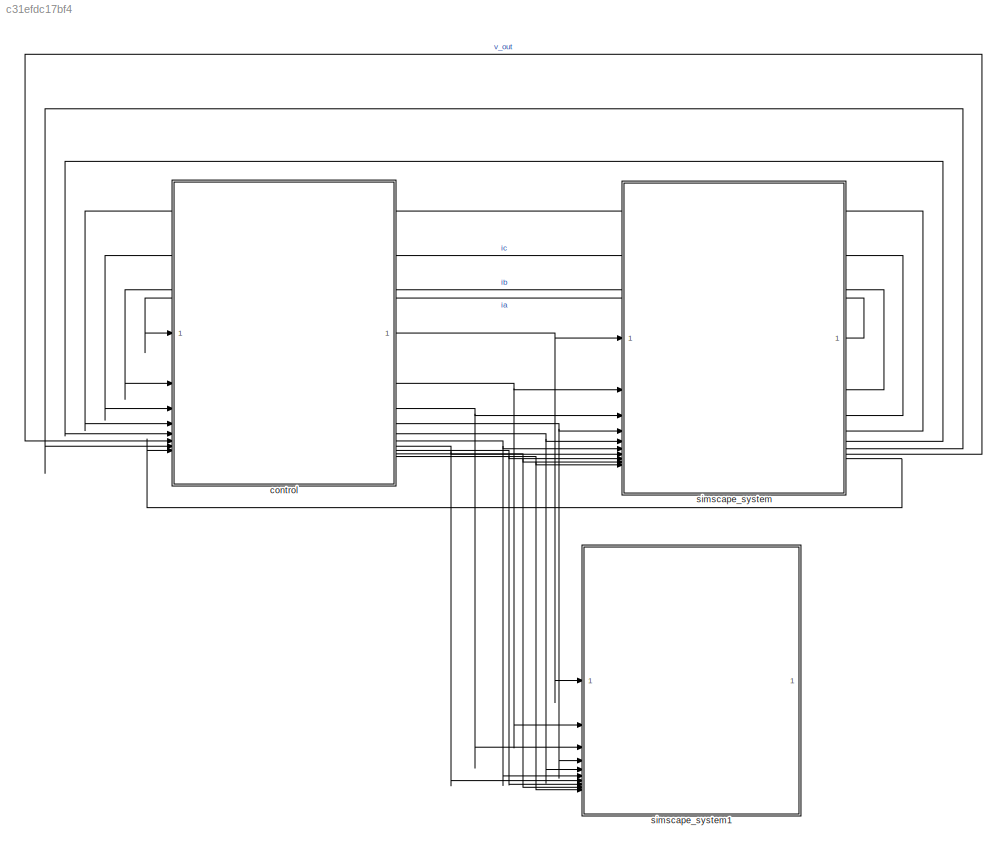
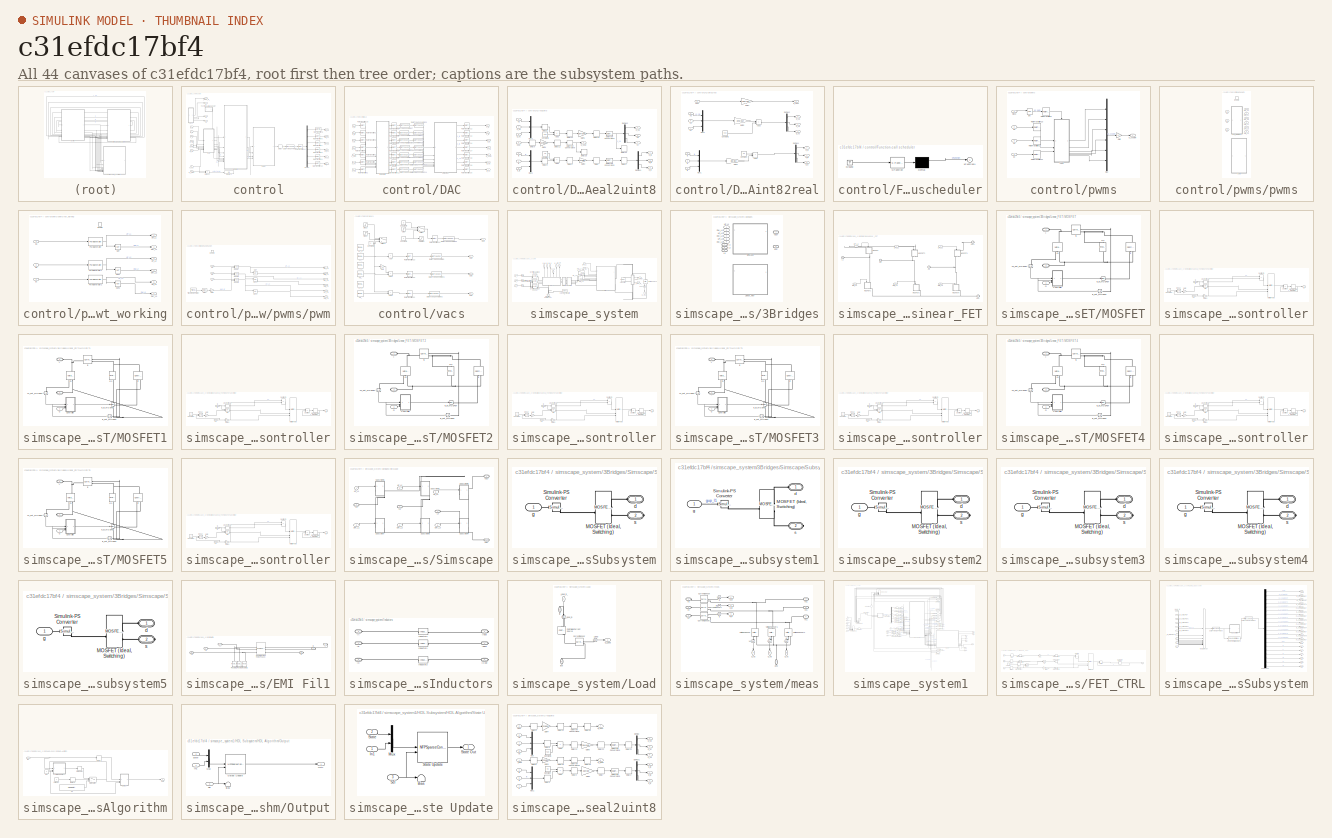
[diagram: thumbnail index - all 44 canvases of the model, root first then tree order]
MODEL slx_c31efdc17bf4
KIND model
CONFIG AbsTol = auto
CONFIG EnableMultiTasking = off
CONFIG FixedStep = auto
CONFIG InitFcn = fidelity_pfc_vals;\nFc=66e3;\n
CONFIG MaxStep = auto
CONFIG MinStep = auto
CONFIG RelTol = 1e-3
CONFIG SampleTimeConstraint = Unconstrained
CONFIG SolverName = FixedStepDiscrete
CONFIG StartTime = 0.0
CONFIG StopTime = .1
BLOCK [SubSystem] control
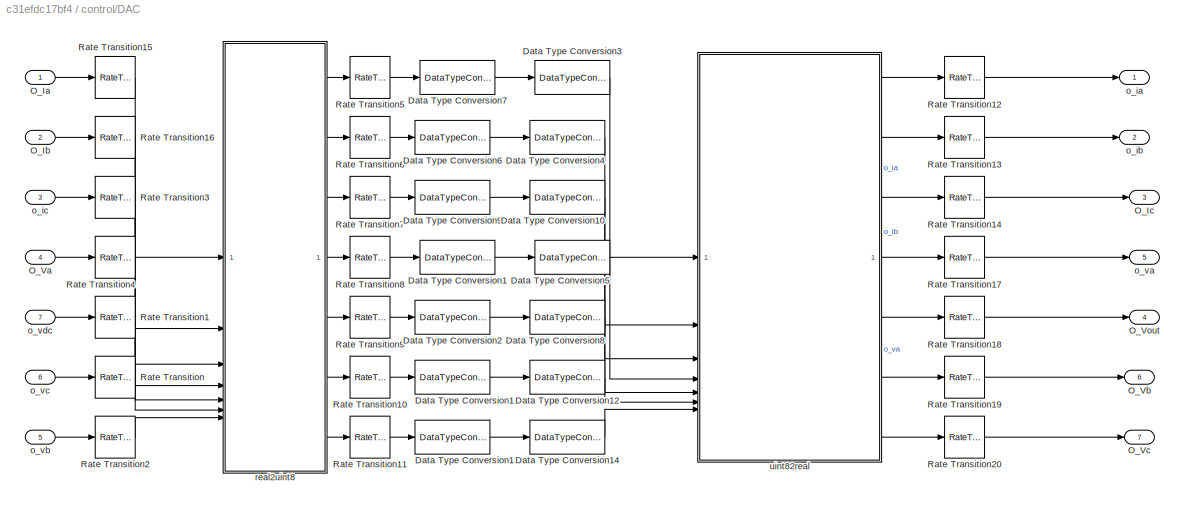
BLOCK [SubSystem] control/DAC
BLOCK [DataTypeConversion] control/DAC/Data Type Conversion1
  OutDataTypeStr = uint8
  RndMeth = Floor
  SaturateOnIntegerOverflow = off
BLOCK [DataTypeConversion] control/DAC/Data Type Conversion10
  OutDataTypeStr = single
  RndMeth = Floor
  SaturateOnIntegerOverflow = off
BLOCK [DataTypeConversion] control/DAC/Data Type Conversion11
  OutDataTypeStr = uint8
  RndMeth = Floor
  SaturateOnIntegerOverflow = off
BLOCK [DataTypeConversion] control/DAC/Data Type Conversion12
  OutDataTypeStr = single
  RndMeth = Floor
  SaturateOnIntegerOverflow = off
BLOCK [DataTypeConversion] control/DAC/Data Type Conversion13
  OutDataTypeStr = uint8
  RndMeth = Floor
  SaturateOnIntegerOverflow = off
BLOCK [DataTypeConversion] control/DAC/Data Type Conversion14
  OutDataTypeStr = single
  RndMeth = Floor
  SaturateOnIntegerOverflow = off
BLOCK [DataTypeConversion] control/DAC/Data Type Conversion2
  OutDataTypeStr = uint8
  RndMeth = Floor
  SaturateOnIntegerOverflow = off
BLOCK [DataTypeConversion] control/DAC/Data Type Conversion3
  OutDataTypeStr = single
  RndMeth = Floor
  SaturateOnIntegerOverflow = off
BLOCK [DataTypeConversion] control/DAC/Data Type Conversion4
  OutDataTypeStr = single
  RndMeth = Floor
  SaturateOnIntegerOverflow = off
BLOCK [DataTypeConversion] control/DAC/Data Type Conversion5
  OutDataTypeStr = single
  RndMeth = Floor
  SaturateOnIntegerOverflow = off
BLOCK [DataTypeConversion] control/DAC/Data Type Conversion6
  OutDataTypeStr = uint8
  RndMeth = Floor
  SaturateOnIntegerOverflow = off
BLOCK [DataTypeConversion] control/DAC/Data Type Conversion7
  OutDataTypeStr = uint8
  RndMeth = Floor
  SaturateOnIntegerOverflow = off
BLOCK [DataTypeConversion] control/DAC/Data Type Conversion8
  OutDataTypeStr = single
  RndMeth = Floor
  SaturateOnIntegerOverflow = off
BLOCK [DataTypeConversion] control/DAC/Data Type Conversion9
  OutDataTypeStr = uint8
  RndMeth = Floor
  SaturateOnIntegerOverflow = off
BLOCK [Inport] control/DAC/O_Ia
BLOCK [Inport] control/DAC/O_Ib
  Port = 2
BLOCK [Outport] control/DAC/O_Ic
  Port = 3
BLOCK [Inport] control/DAC/O_Va
  Port = 4
BLOCK [Outport] control/DAC/O_Vb
  Port = 6
BLOCK [Outport] control/DAC/O_Vc
  Port = 7
BLOCK [Outport] control/DAC/O_Vout
  Port = 4
BLOCK [RateTransition] control/DAC/Rate Transition
  OutPortSampleTime = tsw
BLOCK [RateTransition] control/DAC/Rate Transition1
  OutPortSampleTime = tsw
BLOCK [RateTransition] control/DAC/Rate Transition10
BLOCK [RateTransition] control/DAC/Rate Transition11
BLOCK [RateTransition] control/DAC/Rate Transition12
BLOCK [RateTransition] control/DAC/Rate Transition13
BLOCK [RateTransition] control/DAC/Rate Transition14
BLOCK [RateTransition] control/DAC/Rate Transition15
  OutPortSampleTime = tsw
BLOCK [RateTransition] control/DAC/Rate Transition16
  OutPortSampleTime = tsw
BLOCK [RateTransition] control/DAC/Rate Transition17
BLOCK [RateTransition] control/DAC/Rate Transition18
BLOCK [RateTransition] control/DAC/Rate Transition19
BLOCK [RateTransition] control/DAC/Rate Transition2
  OutPortSampleTime = tsw
BLOCK [RateTransition] control/DAC/Rate Transition20
BLOCK [RateTransition] control/DAC/Rate Transition3
  OutPortSampleTime = tsw
BLOCK [RateTransition] control/DAC/Rate Transition4
  OutPortSampleTime = tsw
BLOCK [RateTransition] control/DAC/Rate Transition5
BLOCK [RateTransition] control/DAC/Rate Transition6
BLOCK [RateTransition] control/DAC/Rate Transition7
BLOCK [RateTransition] control/DAC/Rate Transition8
BLOCK [RateTransition] control/DAC/Rate Transition9
BLOCK [Outport] control/DAC/o_ia
BLOCK [Outport] control/DAC/o_ib
  Port = 2
BLOCK [Inport] control/DAC/o_ic
  Port = 3
BLOCK [Outport] control/DAC/o_va
  Port = 5
BLOCK [Inport] control/DAC/o_vb
  Port = 5
BLOCK [Inport] control/DAC/o_vc
  Port = 6
BLOCK [Inport] control/DAC/o_vdc
  Port = 7
BLOCK [SubSystem] control/DAC/real2uint8
BLOCK [Sum] control/DAC/real2uint8/Add2
  IconShape = rectangular
  OutDataTypeStr = Inherit: Same as first input
BLOCK [Sum] control/DAC/real2uint8/Add3
  IconShape = rectangular
BLOCK [Constant] control/DAC/real2uint8/Constant
  OutDataTypeStr = fixdt(1,18,6)
  SampleTime = -1
  Value = 40
BLOCK [Constant] control/DAC/real2uint8/Constant1
  OutDataTypeStr = fixdt(1,18,6)
  SampleTime = -1
  Value = 420
BLOCK [DataTypeConversion] control/DAC/real2uint8/Data Type Conversion3
  LockScale = on
  OutDataTypeStr = uint8
  RndMeth = Nearest
  SaturateOnIntegerOverflow = off
BLOCK [DataTypeConversion] control/DAC/real2uint8/Data Type Conversion5
  LockScale = on
  OutDataTypeStr = uint8
  RndMeth = Nearest
  SaturateOnIntegerOverflow = off
BLOCK [DataTypeConversion] control/DAC/real2uint8/Data Type Conversion9
  LockScale = on
  OutDataTypeStr = uint8
  RndMeth = Nearest
  SaturateOnIntegerOverflow = off
BLOCK [Delay] control/DAC/real2uint8/Delay
  Commented = through
  DelayLength = 1
  InputPortMap = u0
BLOCK [Delay] control/DAC/real2uint8/Delay1
  Commented = through
  DelayLength = 1
  InputPortMap = u0
BLOCK [Delay] control/DAC/real2uint8/Delay11
  Commented = through
  DelayLength = 1
  InputPortMap = u0
BLOCK [Delay] control/DAC/real2uint8/Delay12
  Commented = through
  DelayLength = 1
  InputPortMap = u0
BLOCK [Delay] control/DAC/real2uint8/Delay2
  Commented = through
  DelayLength = 1
  InputPortMap = u0
BLOCK [Delay] control/DAC/real2uint8/Delay22
  Commented = through
  DelayLength = 1
  InputPortMap = u0
BLOCK [Delay] control/DAC/real2uint8/Delay24
  Commented = through
  DelayLength = 1
  InputPortMap = u0
BLOCK [Delay] control/DAC/real2uint8/Delay25
  Commented = through
  DelayLength = 1
  InputPortMap = u0
BLOCK [Delay] control/DAC/real2uint8/Delay3
  Commented = through
  DelayLength = 1
  InputPortMap = u0
BLOCK [Delay] control/DAC/real2uint8/Delay8
  Commented = through
  DelayLength = 1
  InputPortMap = u0
BLOCK [Delay] control/DAC/real2uint8/Delay9
  Commented = through
  DelayLength = 1
  InputPortMap = u0
BLOCK [Demux] control/DAC/real2uint8/Demux1
  Outputs = 3
BLOCK [Demux] control/DAC/real2uint8/Demux2
  Outputs = 3
BLOCK [Gain] control/DAC/real2uint8/Gain2
  Gain = 254/80
  OutDataTypeStr = Inherit: Same as input
BLOCK [Gain] control/DAC/real2uint8/Gain4
  Gain = 254/950
  OutDataTypeStr = Inherit: Same as input
BLOCK [Gain] control/DAC/real2uint8/Gain5
  Gain = 254/840
  OutDataTypeStr = Inherit: Same as input
BLOCK [Inport] control/DAC/real2uint8/Ia
BLOCK [Inport] control/DAC/real2uint8/Ib
  Port = 2
BLOCK [Mux] control/DAC/real2uint8/Mux1
  DisplayOption = bar
  Inputs = 3
BLOCK [Mux] control/DAC/real2uint8/Mux2
  DisplayOption = bar
  Inputs = 3
BLOCK [Outport] control/DAC/real2uint8/O_Ia
BLOCK [Outport] control/DAC/real2uint8/O_Ib
  Port = 2
BLOCK [Outport] control/DAC/real2uint8/O_Ic
  Port = 3
BLOCK [Outport] control/DAC/real2uint8/O_Va
  Port = 4
BLOCK [Inport] control/DAC/real2uint8/O_Vb
  Port = 7
BLOCK [Inport] control/DAC/real2uint8/O_Vc
  Port = 6
BLOCK [Outport] control/DAC/real2uint8/O_Vout
  Port = 5
BLOCK [Inport] control/DAC/real2uint8/Va
  Port = 4
BLOCK [Inport] control/DAC/real2uint8/Vout
  Port = 5
BLOCK [Inport] control/DAC/real2uint8/o_ic
  Port = 3
BLOCK [Outport] control/DAC/real2uint8/vb
  Port = 6
BLOCK [Outport] control/DAC/real2uint8/vc
  Port = 7
BLOCK [SubSystem] control/DAC/uint82real
BLOCK [Sum] control/DAC/uint82real/Add2
  IconShape = rectangular
  OutDataTypeStr = Inherit: Same as first input
BLOCK [Sum] control/DAC/uint82real/Add3
  IconShape = rectangular
BLOCK [Constant] control/DAC/uint82real/Constant
  OutDataTypeStr = single
  SampleTime = -1
  Value = -40
BLOCK [Constant] control/DAC/uint82real/Constant1
  OutDataTypeStr = single
  SampleTime = -1
  Value = -420
BLOCK [Demux] control/DAC/uint82real/Demux1
  Outputs = 3
BLOCK [Demux] control/DAC/uint82real/Demux2
  Outputs = 3
BLOCK [Gain] control/DAC/uint82real/Gain2
  Gain = 80/254
  OutDataTypeStr = Inherit: Same as input
BLOCK [Gain] control/DAC/uint82real/Gain4
  Gain = 950/254
  OutDataTypeStr = Inherit: Same as input
BLOCK [Gain] control/DAC/uint82real/Gain5
  Gain = 840/254
  OutDataTypeStr = Inherit: Same as input
BLOCK [Inport] control/DAC/uint82real/Ia
BLOCK [Inport] control/DAC/uint82real/Ib
  Port = 2
BLOCK [Mux] control/DAC/uint82real/Mux1
  DisplayOption = bar
  Inputs = 3
BLOCK [Mux] control/DAC/uint82real/Mux2
  DisplayOption = bar
  Inputs = 3
BLOCK [Outport] control/DAC/uint82real/O_Ia
BLOCK [Outport] control/DAC/uint82real/O_Ib
  Port = 2
BLOCK [Outport] control/DAC/uint82real/O_Ic
  Port = 3
BLOCK [Outport] control/DAC/uint82real/O_Va
  Port = 4
BLOCK [Outport] control/DAC/uint82real/O_Vb
  Port = 6
BLOCK [Outport] control/DAC/uint82real/O_Vc
  Port = 7
BLOCK [Outport] control/DAC/uint82real/O_Vout
  Port = 5
BLOCK [Inport] control/DAC/uint82real/Va
  Port = 4
BLOCK [Inport] control/DAC/uint82real/Vout
  Port = 5
BLOCK [Inport] control/DAC/uint82real/ic
  Port = 3
BLOCK [Inport] control/DAC/uint82real/vb
  Port = 6
BLOCK [Inport] control/DAC/uint82real/vc
  Port = 7
BLOCK [Outport] control/DW_L1
  Port = 2
BLOCK [Outport] control/DW_L2
  Port = 4
BLOCK [Outport] control/DW_L3
  Port = 6
BLOCK [DataTypeConversion] control/Data Type Conversion
  RndMeth = Floor
  SaturateOnIntegerOverflow = off
BLOCK [Delay] control/Delay
  InputPortMap = u0
BLOCK [Demux] control/Demux
  Outputs = 6
BLOCK [Display] control/Display1
  Decimation = 1
BLOCK [SubSystem] control/Function-call scheduler
  ErrorFcn = Stateflow.Translate.translate
  PermitHierarchicalResolution = ExplicitOnly
  SFBlockType = Test Sequence
  ShowPortLabels = none
  SystemSampleTime = 1/8e3
  TreatAsAtomicUnit = on
BLOCK [Demux] control/Function-call scheduler/ Demux 
  Outputs = 1
BLOCK [Ground] control/Function-call scheduler/ Ground 
BLOCK [S-Function] control/Function-call scheduler/ SFunction 
  EnableBusSupport = on
  FunctionName = sf_sfun
  PortCounts = [1 1]
  SFcnIsStateOwnerBlock = off
  SFunctionDeploymentMode = off
  Tag = Stateflow S-Function 4
BLOCK [Outport] control/Function-call scheduler/xFunction()
BLOCK [Outport] control/I_load_in_
  Port = 7
BLOCK [ModelReference] control/Model1
  ModelNameDialog = ctrl_ez.slx
  ModelReferenceVersion = 1.673
  PortSchema = {"entries":[{"content":{"sides":[{"content":{"connectorIds":["In1","In2","In3","In4","In5","In6","In7","In8"]},"type":"ConnectorPlacement.EquallySpacedRectSide","uuid":"aa3d6869-c98d-43a9-8fec-3792e8050828"},{"content":{"connectorIds":["Out4","Out1","Out2","Out3"],"side":"RIGHT"},"type":"ConnectorPlacement.EquallySpacedRectSide","uuid":"39b7aa9e-b1a6-43f6-abd4-8191a6cd49ed"},{"content":{"side":"TO...<+285ch>
  ScheduleRates = on
BLOCK [Inport] control/O_I_load
  Port = 8
BLOCK [Inport] control/O_Ia
BLOCK [Inport] control/O_Ib
  Port = 2
BLOCK [Inport] control/O_Va
  Port = 7
BLOCK [Inport] control/O_Vb
  Port = 5
BLOCK [Inport] control/O_Vc
  Port = 4
BLOCK [Product] control/Product
BLOCK [RateTransition] control/Rate Transition10
BLOCK [RateTransition] control/Rate Transition14
BLOCK [RateTransition] control/Rate Transition5
BLOCK [RateTransition] control/Rate Transition6
BLOCK [RateTransition] control/Rate Transition7
BLOCK [RateTransition] control/Rate Transition8
BLOCK [RateTransition] control/Rate Transition9
BLOCK [Outport] control/UP_L1
BLOCK [Outport] control/UP_L2
  Port = 3
BLOCK [Outport] control/UP_L3
  Port = 5
BLOCK [Inport] control/o_ic
  Port = 3
BLOCK [SubSystem] control/pwms
BLOCK [Logic] control/pwms/EN
  AllPortsSameDT = off
  IconShape = distinctive
  Operator = NOT
  OutDataTypeStr = boolean
BLOCK [Gain] control/pwms/Gain
  Gain = 10
BLOCK [Mux] control/pwms/Mux
  DisplayOption = bar
  Inputs = 6
BLOCK [RateTransition] control/pwms/Rate Transition1
BLOCK [RateTransition] control/pwms/Rate Transition11
BLOCK [RateTransition] control/pwms/Rate Transition12
BLOCK [RateTransition] control/pwms/Rate Transition13
BLOCK [Inport] control/pwms/nlock
BLOCK [Outport] control/pwms/p_svpwm
BLOCK [SubSystem] control/pwms/pwms
  LabelModeActiveChoice = Subsystem
  Variant = on
  VariantControl = pwms
  VariantControlMode = label
BLOCK [Outport] control/pwms/pwms/DW_L1
  Port = 2
BLOCK [Outport] control/pwms/pwms/DW_L2
  Port = 4
BLOCK [Outport] control/pwms/pwms/DW_L3
  Port = 6
BLOCK [EnablePort] control/pwms/pwms/Enable
BLOCK [Outport] control/pwms/pwms/UP_L1
BLOCK [Outport] control/pwms/pwms/UP_L2
  Port = 3
BLOCK [Outport] control/pwms/pwms/UP_L3
  Port = 5
BLOCK [SubSystem] control/pwms/pwms/not_working
  VariantControl = pwms
BLOCK [Outport] control/pwms/pwms/not_working/DW_L1
  Port = 2
BLOCK [Outport] control/pwms/pwms/not_working/DW_L2
  Port = 4
BLOCK [Outport] control/pwms/pwms/not_working/DW_L3
  Port = 6
BLOCK [EnablePort] control/pwms/pwms/not_working/Enable
BLOCK [Logic] control/pwms/pwms/not_working/NOT
  AllPortsSameDT = off
  IconShape = distinctive
  Operator = NOT
  OutDataTypeStr = boolean
BLOCK [Logic] control/pwms/pwms/not_working/NOT1
  AllPortsSameDT = off
  IconShape = distinctive
  Operator = NOT
  OutDataTypeStr = boolean
BLOCK [Logic] control/pwms/pwms/not_working/NOT2
  AllPortsSameDT = off
  IconShape = distinctive
  Operator = NOT
  OutDataTypeStr = boolean
BLOCK [Reference] control/pwms/pwms/not_working/PWM Generator  REF=eePwmGenerator/PWM Generator
  LibrarySourceBlock = ee_sl_lib/Pulse Width\nModulation/PWM Generator
  SourceBlock = eePwmGenerator/PWM Generator
  SourceType = PWM Generator
BLOCK [Reference] control/pwms/pwms/not_working/PWM Generator1  REF=eePwmGenerator/PWM Generator
  LibrarySourceBlock = ee_sl_lib/Pulse Width\nModulation/PWM Generator
  SourceBlock = eePwmGenerator/PWM Generator
  SourceType = PWM Generator
BLOCK [Reference] control/pwms/pwms/not_working/PWM Generator2  REF=eePwmGenerator/PWM Generator
  LibrarySourceBlock = ee_sl_lib/Pulse Width\nModulation/PWM Generator
  SourceBlock = eePwmGenerator/PWM Generator
  SourceType = PWM Generator
BLOCK [Outport] control/pwms/pwms/not_working/UP_L1
BLOCK [Outport] control/pwms/pwms/not_working/UP_L2
  Port = 3
BLOCK [Outport] control/pwms/pwms/not_working/UP_L3
  Port = 5
BLOCK [Inport] control/pwms/pwms/not_working/qa
BLOCK [Inport] control/pwms/pwms/not_working/qb
  Port = 2
BLOCK [Inport] control/pwms/pwms/not_working/qc
  Port = 3
BLOCK [SubSystem] control/pwms/pwms/pwm
  VariantControl = Subsystem
BLOCK [Bias] control/pwms/pwms/pwm/Bias
  Bias = 1
  SaturateOnIntegerOverflow = off
BLOCK [Outport] control/pwms/pwms/pwm/DW_L1
  Port = 2
BLOCK [Outport] control/pwms/pwms/pwm/DW_L2
  Port = 4
BLOCK [Outport] control/pwms/pwms/pwm/DW_L3
  Port = 6
BLOCK [EnablePort] control/pwms/pwms/pwm/Enable
BLOCK [RelationalOperator] control/pwms/pwms/pwm/Equal
  InputSameDT = off
  OutDataTypeStr = boolean
  RndMeth = Simplest
BLOCK [RelationalOperator] control/pwms/pwms/pwm/Equal1
  InputSameDT = off
  OutDataTypeStr = boolean
  RndMeth = Simplest
BLOCK [RelationalOperator] control/pwms/pwms/pwm/Equal2
  InputSameDT = off
  OutDataTypeStr = boolean
  RndMeth = Simplest
BLOCK [Gain] control/pwms/pwms/pwm/Gain
  Gain = .5
BLOCK [Logic] control/pwms/pwms/pwm/NOT
  AllPortsSameDT = off
  IconShape = distinctive
  Operator = NOT
  OutDataTypeStr = boolean
BLOCK [Logic] control/pwms/pwms/pwm/NOT1
  AllPortsSameDT = off
  IconShape = distinctive
  Operator = NOT
  OutDataTypeStr = boolean
BLOCK [Logic] control/pwms/pwms/pwm/NOT2
  AllPortsSameDT = off
  IconShape = distinctive
  Operator = NOT
  OutDataTypeStr = boolean
BLOCK [Reference] control/pwms/pwms/pwm/Triangle Generator  REF=spsTriangleGeneratorLib/Triangle
Generator
  LibrarySourceBlock = sps_lib/Sources/Signal Generator Sources/Triangle\nGenerator
  SourceBlock = spsTriangleGeneratorLib/Triangle\nGenerator
  SourceType = Triangle Generator
BLOCK [Outport] control/pwms/pwms/pwm/UP_L1
BLOCK [Outport] control/pwms/pwms/pwm/UP_L2
  Port = 3
BLOCK [Outport] control/pwms/pwms/pwm/UP_L3
  Port = 5
BLOCK [Inport] control/pwms/pwms/pwm/qa
BLOCK [Inport] control/pwms/pwms/pwm/qb
  Port = 2
BLOCK [Inport] control/pwms/pwms/pwm/qc
  Port = 3
BLOCK [Inport] control/pwms/pwms/qa
BLOCK [Inport] control/pwms/pwms/qb
  Port = 2
BLOCK [Inport] control/pwms/pwms/qc
  Port = 3
BLOCK [Inport] control/pwms/qa
  Port = 2
BLOCK [Inport] control/pwms/qb
  Port = 3
BLOCK [Inport] control/pwms/qc
  Port = 4
BLOCK [Inport] control/v_out
  Port = 6
BLOCK [Outport] control/va
  Port = 8
BLOCK [SubSystem] control/vacs
BLOCK [Sum] control/vacs/Add
  IconShape = rectangular
BLOCK [Sum] control/vacs/Add1
  IconShape = rectangular
BLOCK [Sum] control/vacs/Add2
  IconShape = rectangular
BLOCK [Constant] control/vacs/Constant1
  Value = 0
BLOCK [Constant] control/vacs/Constant2
  Value = 9
BLOCK [Constant] control/vacs/Constant3
  Value = 0
BLOCK [DataTypeConversion] control/vacs/Data Type Conversion
  RndMeth = Floor
  SaturateOnIntegerOverflow = off
BLOCK [DataTypeConversion] control/vacs/Data Type Conversion1
  RndMeth = Floor
  SaturateOnIntegerOverflow = off
BLOCK [DataTypeConversion] control/vacs/Data Type Conversion2
  RndMeth = Floor
  SaturateOnIntegerOverflow = off
BLOCK [DataTypeConversion] control/vacs/Data Type Conversion3
  RndMeth = Floor
  SaturateOnIntegerOverflow = off
BLOCK [Gain] control/vacs/Gain
  Gain = -1
BLOCK [Outport] control/vacs/Out1
BLOCK [Outport] control/vacs/Out2
  Port = 2
BLOCK [Outport] control/vacs/Out3
  Port = 3
BLOCK [Outport] control/vacs/Out4
  Port = 4
BLOCK [RateTransition] control/vacs/Rate Transition11
BLOCK [RateTransition] control/vacs/Rate Transition12
BLOCK [RateTransition] control/vacs/Rate Transition13
BLOCK [RateTransition] control/vacs/Rate Transition14
  OutPortSampleTime = t_ss
BLOCK [Saturate] control/vacs/Saturation
  Commented = through
  UpperLimit = 3
BLOCK [Step] control/vacs/Step
  SampleTime = 0
  Time = .3
BLOCK [Step] control/vacs/Step1
  SampleTime = 0
  Time = .4345
BLOCK [Step] control/vacs/Step2
  After = 0
  Before = -100
  SampleTime = 0
  Time = .435
BLOCK [Switch] control/vacs/Switch
  Criteria = u2 > Threshold
  InputSameDT = off
  SaturateOnIntegerOverflow = off
BLOCK [Switch] control/vacs/Switch1
  Criteria = u2 > Threshold
  InputSameDT = off
  SaturateOnIntegerOverflow = off
BLOCK [Reference] control/vacs/va_  REF=dspsrcs4/Sine Wave
  LibrarySourceBlock = dsphdlsupportsrcs/Sine Wave
  SourceBlock = dspsrcs4/Sine Wave
  SourceType = Sine Wave
BLOCK [Reference] control/vacs/vb_  REF=dspsrcs4/Sine Wave
  LibrarySourceBlock = dsphdlsupportsrcs/Sine Wave
  SourceBlock = dspsrcs4/Sine Wave
  SourceType = Sine Wave
BLOCK [Reference] control/vacs/vc_  REF=dspsrcs4/Sine Wave
  LibrarySourceBlock = dsphdlsupportsrcs/Sine Wave
  SourceBlock = dspsrcs4/Sine Wave
  SourceType = Sine Wave
BLOCK [Reference] control/vacs/vc_1  REF=dspsrcs4/Sine Wave
  Commented = on
  LibrarySourceBlock = dsphdlsupportsrcs/Sine Wave
  SourceBlock = dspsrcs4/Sine Wave
  SourceType = Sine Wave
BLOCK [Reference] control/vacs/vc_2  REF=dspsrcs4/Sine Wave
  Commented = on
  LibrarySourceBlock = dsphdlsupportsrcs/Sine Wave
  SourceBlock = dspsrcs4/Sine Wave
  SourceType = Sine Wave
BLOCK [Reference] control/vacs/vc_3  REF=dspsrcs4/Sine Wave
  Commented = on
  LibrarySourceBlock = dsphdlsupportsrcs/Sine Wave
  SourceBlock = dspsrcs4/Sine Wave
  SourceType = Sine Wave
BLOCK [Outport] control/vb
  Port = 9
BLOCK [Outport] control/vc
  Port = 10
BLOCK [SubSystem] simscape_system
BLOCK [SubSystem] simscape_system/3Bridges
  LabelModeActiveChoice = Linear FET
  PortSchema = {"entries":[{"content":{"sides":[{"content":{"connectorIds":["In1","In2","In3","In4","In5","In6","LConn1","LConn2","LConn3"]},"type":"ConnectorPlacement.EquallySpacedRectSide","uuid":"8d96b04c-3c8d-475b-959e-eb2713cd0bc4"},{"content":{"connectorIds":["RConn1"],"side":"RIGHT"},"type":"ConnectorPlacement.EquallySpacedRectSide","uuid":"f87059ce-ab86-43e3-bcca-ec1681adc212"},{"content":{"side":"TOP"},...<+433ch>
  Variant = on
  VariantControl = 3Bridges
  VariantControlMode = label
BLOCK [Inport] simscape_system/3Bridges/DW_L1
  Port = 2
BLOCK [Inport] simscape_system/3Bridges/DW_L2
  Port = 4
BLOCK [Inport] simscape_system/3Bridges/DW_L3
  Port = 6
BLOCK [PMIOPort] simscape_system/3Bridges/L1
  Side = Left
BLOCK [PMIOPort] simscape_system/3Bridges/L2
  Port = 2
  Side = Left
BLOCK [PMIOPort] simscape_system/3Bridges/L3
  Port = 3
  Side = Left
BLOCK [SubSystem] simscape_system/3Bridges/Linear_FET
  VariantControl = Linear FET
BLOCK [Inport] simscape_system/3Bridges/Linear_FET/DW_L1
  Port = 2
BLOCK [Inport] simscape_system/3Bridges/Linear_FET/DW_L2
  Port = 4
BLOCK [Inport] simscape_system/3Bridges/Linear_FET/DW_L3
  Port = 6
BLOCK [PMIOPort] simscape_system/3Bridges/Linear_FET/L1
  Port = 2
  Side = Left
BLOCK [PMIOPort] simscape_system/3Bridges/Linear_FET/L2
  Port = 3
  Side = Left
BLOCK [PMIOPort] simscape_system/3Bridges/Linear_FET/L3
  Port = 4
  Side = Left
BLOCK [SubSystem] simscape_system/3Bridges/Linear_FET/MOSFET
  CopyFcn = set_param(gcb, 'LinkStatus', 'none');
  NameLocation = left
BLOCK [PMIOPort] simscape_system/3Bridges/Linear_FET/MOSFET/+
  Side = Left
BLOCK [PMIOPort] simscape_system/3Bridges/Linear_FET/MOSFET/-
  NameLocation = top
  Port = 2
  Side = Right
BLOCK [SubSystem] simscape_system/3Bridges/Linear_FET/MOSFET/Controller
BLOCK [Constant] simscape_system/3Bridges/Linear_FET/MOSFET/Controller/Constant
  SampleTime = -1
  Value = -.7
BLOCK [DiscreteIntegrator] simscape_system/3Bridges/Linear_FET/MOSFET/Controller/Discrete-Time Integrator
  ICPrevOutput = DiscIntNeverNeededParam
  ICPrevScaledInput = DiscIntNeverNeededParam
  InitialConditionSetting = Auto
  IntegratorMethod = Accumulation: Forward Euler
  OutDataTypeStr = Inherit: Inherit via back propagation
  SampleTime = -1
  gainval = 1/s
BLOCK [RelationalOperator] simscape_system/3Bridges/Linear_FET/MOSFET/Controller/Equal
  InputSameDT = off
  OutDataTypeStr = boolean
  RndMeth = Simplest
BLOCK [Inport] simscape_system/3Bridges/Linear_FET/MOSFET/Controller/G
  Port = 3
BLOCK [Gain] simscape_system/3Bridges/Linear_FET/MOSFET/Controller/Gain
  Gain = 10
BLOCK [Gain] simscape_system/3Bridges/Linear_FET/MOSFET/Controller/Gain3
  Gain = Gs
  OutDataTypeStr = Inherit: Inherit via back propagation
BLOCK [Reference] simscape_system/3Bridges/Linear_FET/MOSFET/Controller/Multiply-Add  REF=hdlsllib/HDL Operations/Multiply-Add
  SourceBlock = hdlsllib/HDL Operations/Multiply-Add
  SourceType = Multiply-Add
BLOCK [Logic] simscape_system/3Bridges/Linear_FET/MOSFET/Controller/OR
  AllPortsSameDT = off
  IconShape = distinctive
  Operator = OR
  OutDataTypeStr = boolean
BLOCK [Sum] simscape_system/3Bridges/Linear_FET/MOSFET/Controller/Subtract
  IconShape = rectangular
  Inputs = +-
BLOCK [Sum] simscape_system/3Bridges/Linear_FET/MOSFET/Controller/Subtract1
  IconShape = rectangular
  Inputs = +-
BLOCK [UnaryMinus] simscape_system/3Bridges/Linear_FET/MOSFET/Controller/Unary Minus
BLOCK [Outport] simscape_system/3Bridges/Linear_FET/MOSFET/Controller/ic
BLOCK [Inport] simscape_system/3Bridges/Linear_FET/MOSFET/Controller/is
  NameLocation = top
  Port = 2
BLOCK [Inport] simscape_system/3Bridges/Linear_FET/MOSFET/Controller/vs
BLOCK [Inport] simscape_system/3Bridges/Linear_FET/MOSFET/G
BLOCK [Reference] simscape_system/3Bridges/Linear_FET/MOSFET/Gs  REF=fl_lib/Electrical/Electrical Elements/Resistor
  NameLocation = right
  SourceBlock = fl_lib/Electrical/Electrical Elements/Resistor
  SourceType = Resistor
BLOCK [Reference] simscape_system/3Bridges/Linear_FET/MOSFET/ic  REF=fl_lib/Electrical/Electrical Sources/Controlled Current
Source
  NameLocation = right
  SourceBlock = fl_lib/Electrical/Electrical Sources/Controlled Current\nSource
  SourceType = Controlled Current\nSource
BLOCK [Reference] simscape_system/3Bridges/Linear_FET/MOSFET/ic_in_MOSFET  REF=nesl_utility/Simulink-PS
Converter
  SourceBlock = nesl_utility/Simulink-PS\nConverter
  SourceType = Simulink-PS\nConverter
BLOCK [Reference] simscape_system/3Bridges/Linear_FET/MOSFET/is  REF=fl_lib/Electrical/Electrical Sensors/Current Sensor
  SourceBlock = fl_lib/Electrical/Electrical Sensors/Current Sensor
  SourceType = Current Sensor
BLOCK [Reference] simscape_system/3Bridges/Linear_FET/MOSFET/is_out_MOSFET  REF=nesl_utility/PS-Simulink
Converter
  SourceBlock = nesl_utility/PS-Simulink\nConverter
  SourceType = PS-Simulink\nConverter
BLOCK [Reference] simscape_system/3Bridges/Linear_FET/MOSFET/vs  REF=fl_lib/Electrical/Electrical Sensors/Voltage Sensor
  NameLocation = left
  SourceBlock = fl_lib/Electrical/Electrical Sensors/Voltage Sensor
  SourceType = Voltage Sensor
BLOCK [Reference] simscape_system/3Bridges/Linear_FET/MOSFET/vs_out_MOSFET  REF=nesl_utility/PS-Simulink
Converter
  NameLocation = left
  SourceBlock = nesl_utility/PS-Simulink\nConverter
  SourceType = PS-Simulink\nConverter
BLOCK [SubSystem] simscape_system/3Bridges/Linear_FET/MOSFET1
  CopyFcn = set_param(gcb, 'LinkStatus', 'none');
  NameLocation = left
BLOCK [PMIOPort] simscape_system/3Bridges/Linear_FET/MOSFET1/+
  Side = Left
BLOCK [PMIOPort] simscape_system/3Bridges/Linear_FET/MOSFET1/-
  NameLocation = top
  Port = 2
  Side = Right
BLOCK [SubSystem] simscape_system/3Bridges/Linear_FET/MOSFET1/Controller
BLOCK [Constant] simscape_system/3Bridges/Linear_FET/MOSFET1/Controller/Constant
  SampleTime = -1
  Value = -.7
BLOCK [DiscreteIntegrator] simscape_system/3Bridges/Linear_FET/MOSFET1/Controller/Discrete-Time Integrator
  ICPrevOutput = DiscIntNeverNeededParam
  ICPrevScaledInput = DiscIntNeverNeededParam
  InitialConditionSetting = Auto
  IntegratorMethod = Accumulation: Forward Euler
  OutDataTypeStr = Inherit: Inherit via back propagation
  SampleTime = -1
  gainval = 1/s
BLOCK [RelationalOperator] simscape_system/3Bridges/Linear_FET/MOSFET1/Controller/Equal
  InputSameDT = off
  OutDataTypeStr = boolean
  RndMeth = Simplest
BLOCK [Inport] simscape_system/3Bridges/Linear_FET/MOSFET1/Controller/G
  Port = 3
BLOCK [Gain] simscape_system/3Bridges/Linear_FET/MOSFET1/Controller/Gain
  Gain = 10
BLOCK [Gain] simscape_system/3Bridges/Linear_FET/MOSFET1/Controller/Gain3
  Gain = Gs
  OutDataTypeStr = Inherit: Inherit via back propagation
BLOCK [Reference] simscape_system/3Bridges/Linear_FET/MOSFET1/Controller/Multiply-Add  REF=hdlsllib/HDL Operations/Multiply-Add
  SourceBlock = hdlsllib/HDL Operations/Multiply-Add
  SourceType = Multiply-Add
BLOCK [Logic] simscape_system/3Bridges/Linear_FET/MOSFET1/Controller/OR
  AllPortsSameDT = off
  IconShape = distinctive
  Operator = OR
  OutDataTypeStr = boolean
BLOCK [Sum] simscape_system/3Bridges/Linear_FET/MOSFET1/Controller/Subtract
  IconShape = rectangular
  Inputs = +-
BLOCK [Sum] simscape_system/3Bridges/Linear_FET/MOSFET1/Controller/Subtract1
  IconShape = rectangular
  Inputs = +-
BLOCK [UnaryMinus] simscape_system/3Bridges/Linear_FET/MOSFET1/Controller/Unary Minus
BLOCK [Outport] simscape_system/3Bridges/Linear_FET/MOSFET1/Controller/ic
BLOCK [Inport] simscape_system/3Bridges/Linear_FET/MOSFET1/Controller/is
  NameLocation = top
  Port = 2
BLOCK [Inport] simscape_system/3Bridges/Linear_FET/MOSFET1/Controller/vs
BLOCK [Inport] simscape_system/3Bridges/Linear_FET/MOSFET1/G
BLOCK [Reference] simscape_system/3Bridges/Linear_FET/MOSFET1/Gs  REF=fl_lib/Electrical/Electrical Elements/Resistor
  NameLocation = right
  SourceBlock = fl_lib/Electrical/Electrical Elements/Resistor
  SourceType = Resistor
BLOCK [Reference] simscape_system/3Bridges/Linear_FET/MOSFET1/ic  REF=fl_lib/Electrical/Electrical Sources/Controlled Current
Source
  NameLocation = right
  SourceBlock = fl_lib/Electrical/Electrical Sources/Controlled Current\nSource
  SourceType = Controlled Current\nSource
BLOCK [Reference] simscape_system/3Bridges/Linear_FET/MOSFET1/ic_in_MOSFET  REF=nesl_utility/Simulink-PS
Converter
  SourceBlock = nesl_utility/Simulink-PS\nConverter
  SourceType = Simulink-PS\nConverter
BLOCK [Reference] simscape_system/3Bridges/Linear_FET/MOSFET1/is  REF=fl_lib/Electrical/Electrical Sensors/Current Sensor
  SourceBlock = fl_lib/Electrical/Electrical Sensors/Current Sensor
  SourceType = Current Sensor
BLOCK [Reference] simscape_system/3Bridges/Linear_FET/MOSFET1/is_out_MOSFET  REF=nesl_utility/PS-Simulink
Converter
  SourceBlock = nesl_utility/PS-Simulink\nConverter
  SourceType = PS-Simulink\nConverter
BLOCK [Reference] simscape_system/3Bridges/Linear_FET/MOSFET1/vs  REF=fl_lib/Electrical/Electrical Sensors/Voltage Sensor
  NameLocation = left
  SourceBlock = fl_lib/Electrical/Electrical Sensors/Voltage Sensor
  SourceType = Voltage Sensor
BLOCK [Reference] simscape_system/3Bridges/Linear_FET/MOSFET1/vs_out_MOSFET  REF=nesl_utility/PS-Simulink
Converter
  NameLocation = left
  SourceBlock = nesl_utility/PS-Simulink\nConverter
  SourceType = PS-Simulink\nConverter
BLOCK [SubSystem] simscape_system/3Bridges/Linear_FET/MOSFET2
  CopyFcn = set_param(gcb, 'LinkStatus', 'none');
  NameLocation = left
BLOCK [PMIOPort] simscape_system/3Bridges/Linear_FET/MOSFET2/+
  Side = Left
BLOCK [PMIOPort] simscape_system/3Bridges/Linear_FET/MOSFET2/-
  NameLocation = top
  Port = 2
  Side = Right
BLOCK [SubSystem] simscape_system/3Bridges/Linear_FET/MOSFET2/Controller
BLOCK [Constant] simscape_system/3Bridges/Linear_FET/MOSFET2/Controller/Constant
  SampleTime = -1
  Value = -.7
BLOCK [DiscreteIntegrator] simscape_system/3Bridges/Linear_FET/MOSFET2/Controller/Discrete-Time Integrator
  ICPrevOutput = DiscIntNeverNeededParam
  ICPrevScaledInput = DiscIntNeverNeededParam
  InitialConditionSetting = Auto
  IntegratorMethod = Accumulation: Forward Euler
  OutDataTypeStr = Inherit: Inherit via back propagation
  SampleTime = -1
  gainval = 1/s
BLOCK [RelationalOperator] simscape_system/3Bridges/Linear_FET/MOSFET2/Controller/Equal
  InputSameDT = off
  OutDataTypeStr = boolean
  RndMeth = Simplest
BLOCK [Inport] simscape_system/3Bridges/Linear_FET/MOSFET2/Controller/G
  Port = 3
BLOCK [Gain] simscape_system/3Bridges/Linear_FET/MOSFET2/Controller/Gain
  Gain = 10
BLOCK [Gain] simscape_system/3Bridges/Linear_FET/MOSFET2/Controller/Gain3
  Gain = Gs
  OutDataTypeStr = Inherit: Inherit via back propagation
BLOCK [Reference] simscape_system/3Bridges/Linear_FET/MOSFET2/Controller/Multiply-Add  REF=hdlsllib/HDL Operations/Multiply-Add
  SourceBlock = hdlsllib/HDL Operations/Multiply-Add
  SourceType = Multiply-Add
BLOCK [Logic] simscape_system/3Bridges/Linear_FET/MOSFET2/Controller/OR
  AllPortsSameDT = off
  IconShape = distinctive
  Operator = OR
  OutDataTypeStr = boolean
BLOCK [Sum] simscape_system/3Bridges/Linear_FET/MOSFET2/Controller/Subtract
  IconShape = rectangular
  Inputs = +-
BLOCK [Sum] simscape_system/3Bridges/Linear_FET/MOSFET2/Controller/Subtract1
  IconShape = rectangular
  Inputs = +-
BLOCK [UnaryMinus] simscape_system/3Bridges/Linear_FET/MOSFET2/Controller/Unary Minus
BLOCK [Outport] simscape_system/3Bridges/Linear_FET/MOSFET2/Controller/ic
BLOCK [Inport] simscape_system/3Bridges/Linear_FET/MOSFET2/Controller/is
  NameLocation = top
  Port = 2
BLOCK [Inport] simscape_system/3Bridges/Linear_FET/MOSFET2/Controller/vs
BLOCK [Inport] simscape_system/3Bridges/Linear_FET/MOSFET2/G
BLOCK [Reference] simscape_system/3Bridges/Linear_FET/MOSFET2/Gs  REF=fl_lib/Electrical/Electrical Elements/Resistor
  NameLocation = right
  SourceBlock = fl_lib/Electrical/Electrical Elements/Resistor
  SourceType = Resistor
BLOCK [Reference] simscape_system/3Bridges/Linear_FET/MOSFET2/ic  REF=fl_lib/Electrical/Electrical Sources/Controlled Current
Source
  NameLocation = right
  SourceBlock = fl_lib/Electrical/Electrical Sources/Controlled Current\nSource
  SourceType = Controlled Current\nSource
BLOCK [Reference] simscape_system/3Bridges/Linear_FET/MOSFET2/ic_in_MOSFET  REF=nesl_utility/Simulink-PS
Converter
  SourceBlock = nesl_utility/Simulink-PS\nConverter
  SourceType = Simulink-PS\nConverter
BLOCK [Reference] simscape_system/3Bridges/Linear_FET/MOSFET2/is  REF=fl_lib/Electrical/Electrical Sensors/Current Sensor
  SourceBlock = fl_lib/Electrical/Electrical Sensors/Current Sensor
  SourceType = Current Sensor
BLOCK [Reference] simscape_system/3Bridges/Linear_FET/MOSFET2/is_out_MOSFET  REF=nesl_utility/PS-Simulink
Converter
  SourceBlock = nesl_utility/PS-Simulink\nConverter
  SourceType = PS-Simulink\nConverter
BLOCK [Reference] simscape_system/3Bridges/Linear_FET/MOSFET2/vs  REF=fl_lib/Electrical/Electrical Sensors/Voltage Sensor
  NameLocation = left
  SourceBlock = fl_lib/Electrical/Electrical Sensors/Voltage Sensor
  SourceType = Voltage Sensor
BLOCK [Reference] simscape_system/3Bridges/Linear_FET/MOSFET2/vs_out_MOSFET  REF=nesl_utility/PS-Simulink
Converter
  NameLocation = left
  SourceBlock = nesl_utility/PS-Simulink\nConverter
  SourceType = PS-Simulink\nConverter
BLOCK [SubSystem] simscape_system/3Bridges/Linear_FET/MOSFET3
  CopyFcn = set_param(gcb, 'LinkStatus', 'none');
  NameLocation = left
BLOCK [PMIOPort] simscape_system/3Bridges/Linear_FET/MOSFET3/+
  Side = Left
BLOCK [PMIOPort] simscape_system/3Bridges/Linear_FET/MOSFET3/-
  NameLocation = top
  Port = 2
  Side = Right
BLOCK [SubSystem] simscape_system/3Bridges/Linear_FET/MOSFET3/Controller
BLOCK [Constant] simscape_system/3Bridges/Linear_FET/MOSFET3/Controller/Constant
  SampleTime = -1
  Value = -.7
BLOCK [DiscreteIntegrator] simscape_system/3Bridges/Linear_FET/MOSFET3/Controller/Discrete-Time Integrator
  ICPrevOutput = DiscIntNeverNeededParam
  ICPrevScaledInput = DiscIntNeverNeededParam
  InitialConditionSetting = Auto
  IntegratorMethod = Accumulation: Forward Euler
  OutDataTypeStr = Inherit: Inherit via back propagation
  SampleTime = -1
  gainval = 1/s
BLOCK [RelationalOperator] simscape_system/3Bridges/Linear_FET/MOSFET3/Controller/Equal
  InputSameDT = off
  OutDataTypeStr = boolean
  RndMeth = Simplest
BLOCK [Inport] simscape_system/3Bridges/Linear_FET/MOSFET3/Controller/G
  Port = 3
BLOCK [Gain] simscape_system/3Bridges/Linear_FET/MOSFET3/Controller/Gain
  Gain = 10
BLOCK [Gain] simscape_system/3Bridges/Linear_FET/MOSFET3/Controller/Gain3
  Gain = Gs
  OutDataTypeStr = Inherit: Inherit via back propagation
BLOCK [Reference] simscape_system/3Bridges/Linear_FET/MOSFET3/Controller/Multiply-Add  REF=hdlsllib/HDL Operations/Multiply-Add
  SourceBlock = hdlsllib/HDL Operations/Multiply-Add
  SourceType = Multiply-Add
BLOCK [Logic] simscape_system/3Bridges/Linear_FET/MOSFET3/Controller/OR
  AllPortsSameDT = off
  IconShape = distinctive
  Operator = OR
  OutDataTypeStr = boolean
BLOCK [Sum] simscape_system/3Bridges/Linear_FET/MOSFET3/Controller/Subtract
  IconShape = rectangular
  Inputs = +-
BLOCK [Sum] simscape_system/3Bridges/Linear_FET/MOSFET3/Controller/Subtract1
  IconShape = rectangular
  Inputs = +-
BLOCK [UnaryMinus] simscape_system/3Bridges/Linear_FET/MOSFET3/Controller/Unary Minus
BLOCK [Outport] simscape_system/3Bridges/Linear_FET/MOSFET3/Controller/ic
BLOCK [Inport] simscape_system/3Bridges/Linear_FET/MOSFET3/Controller/is
  NameLocation = top
  Port = 2
BLOCK [Inport] simscape_system/3Bridges/Linear_FET/MOSFET3/Controller/vs
BLOCK [Inport] simscape_system/3Bridges/Linear_FET/MOSFET3/G
BLOCK [Reference] simscape_system/3Bridges/Linear_FET/MOSFET3/Gs  REF=fl_lib/Electrical/Electrical Elements/Resistor
  NameLocation = right
  SourceBlock = fl_lib/Electrical/Electrical Elements/Resistor
  SourceType = Resistor
BLOCK [Reference] simscape_system/3Bridges/Linear_FET/MOSFET3/ic  REF=fl_lib/Electrical/Electrical Sources/Controlled Current
Source
  NameLocation = right
  SourceBlock = fl_lib/Electrical/Electrical Sources/Controlled Current\nSource
  SourceType = Controlled Current\nSource
BLOCK [Reference] simscape_system/3Bridges/Linear_FET/MOSFET3/ic_in_MOSFET  REF=nesl_utility/Simulink-PS
Converter
  SourceBlock = nesl_utility/Simulink-PS\nConverter
  SourceType = Simulink-PS\nConverter
BLOCK [Reference] simscape_system/3Bridges/Linear_FET/MOSFET3/is  REF=fl_lib/Electrical/Electrical Sensors/Current Sensor
  SourceBlock = fl_lib/Electrical/Electrical Sensors/Current Sensor
  SourceType = Current Sensor
BLOCK [Reference] simscape_system/3Bridges/Linear_FET/MOSFET3/is_out_MOSFET  REF=nesl_utility/PS-Simulink
Converter
  SourceBlock = nesl_utility/PS-Simulink\nConverter
  SourceType = PS-Simulink\nConverter
BLOCK [Reference] simscape_system/3Bridges/Linear_FET/MOSFET3/vs  REF=fl_lib/Electrical/Electrical Sensors/Voltage Sensor
  NameLocation = left
  SourceBlock = fl_lib/Electrical/Electrical Sensors/Voltage Sensor
  SourceType = Voltage Sensor
BLOCK [Reference] simscape_system/3Bridges/Linear_FET/MOSFET3/vs_out_MOSFET  REF=nesl_utility/PS-Simulink
Converter
  NameLocation = left
  SourceBlock = nesl_utility/PS-Simulink\nConverter
  SourceType = PS-Simulink\nConverter
BLOCK [SubSystem] simscape_system/3Bridges/Linear_FET/MOSFET4
  CopyFcn = set_param(gcb, 'LinkStatus', 'none');
  NameLocation = left
BLOCK [PMIOPort] simscape_system/3Bridges/Linear_FET/MOSFET4/+
  Side = Left
BLOCK [PMIOPort] simscape_system/3Bridges/Linear_FET/MOSFET4/-
  NameLocation = top
  Port = 2
  Side = Right
BLOCK [SubSystem] simscape_system/3Bridges/Linear_FET/MOSFET4/Controller
BLOCK [Constant] simscape_system/3Bridges/Linear_FET/MOSFET4/Controller/Constant
  SampleTime = -1
  Value = -.7
BLOCK [DiscreteIntegrator] simscape_system/3Bridges/Linear_FET/MOSFET4/Controller/Discrete-Time Integrator
  ICPrevOutput = DiscIntNeverNeededParam
  ICPrevScaledInput = DiscIntNeverNeededParam
  InitialConditionSetting = Auto
  IntegratorMethod = Accumulation: Forward Euler
  OutDataTypeStr = Inherit: Inherit via back propagation
  SampleTime = -1
  gainval = 1/s
BLOCK [RelationalOperator] simscape_system/3Bridges/Linear_FET/MOSFET4/Controller/Equal
  InputSameDT = off
  OutDataTypeStr = boolean
  RndMeth = Simplest
BLOCK [Inport] simscape_system/3Bridges/Linear_FET/MOSFET4/Controller/G
  Port = 3
BLOCK [Gain] simscape_system/3Bridges/Linear_FET/MOSFET4/Controller/Gain
  Gain = 10
BLOCK [Gain] simscape_system/3Bridges/Linear_FET/MOSFET4/Controller/Gain3
  Gain = Gs
  OutDataTypeStr = Inherit: Inherit via back propagation
BLOCK [Reference] simscape_system/3Bridges/Linear_FET/MOSFET4/Controller/Multiply-Add  REF=hdlsllib/HDL Operations/Multiply-Add
  SourceBlock = hdlsllib/HDL Operations/Multiply-Add
  SourceType = Multiply-Add
BLOCK [Logic] simscape_system/3Bridges/Linear_FET/MOSFET4/Controller/OR
  AllPortsSameDT = off
  IconShape = distinctive
  Operator = OR
  OutDataTypeStr = boolean
BLOCK [Sum] simscape_system/3Bridges/Linear_FET/MOSFET4/Controller/Subtract
  IconShape = rectangular
  Inputs = +-
BLOCK [Sum] simscape_system/3Bridges/Linear_FET/MOSFET4/Controller/Subtract1
  IconShape = rectangular
  Inputs = +-
BLOCK [UnaryMinus] simscape_system/3Bridges/Linear_FET/MOSFET4/Controller/Unary Minus
BLOCK [Outport] simscape_system/3Bridges/Linear_FET/MOSFET4/Controller/ic
BLOCK [Inport] simscape_system/3Bridges/Linear_FET/MOSFET4/Controller/is
  NameLocation = top
  Port = 2
BLOCK [Inport] simscape_system/3Bridges/Linear_FET/MOSFET4/Controller/vs
BLOCK [Inport] simscape_system/3Bridges/Linear_FET/MOSFET4/G
BLOCK [Reference] simscape_system/3Bridges/Linear_FET/MOSFET4/Gs  REF=fl_lib/Electrical/Electrical Elements/Resistor
  NameLocation = right
  SourceBlock = fl_lib/Electrical/Electrical Elements/Resistor
  SourceType = Resistor
BLOCK [Reference] simscape_system/3Bridges/Linear_FET/MOSFET4/ic  REF=fl_lib/Electrical/Electrical Sources/Controlled Current
Source
  NameLocation = right
  SourceBlock = fl_lib/Electrical/Electrical Sources/Controlled Current\nSource
  SourceType = Controlled Current\nSource
BLOCK [Reference] simscape_system/3Bridges/Linear_FET/MOSFET4/ic_in_MOSFET  REF=nesl_utility/Simulink-PS
Converter
  SourceBlock = nesl_utility/Simulink-PS\nConverter
  SourceType = Simulink-PS\nConverter
BLOCK [Reference] simscape_system/3Bridges/Linear_FET/MOSFET4/is  REF=fl_lib/Electrical/Electrical Sensors/Current Sensor
  SourceBlock = fl_lib/Electrical/Electrical Sensors/Current Sensor
  SourceType = Current Sensor
BLOCK [Reference] simscape_system/3Bridges/Linear_FET/MOSFET4/is_out_MOSFET  REF=nesl_utility/PS-Simulink
Converter
  SourceBlock = nesl_utility/PS-Simulink\nConverter
  SourceType = PS-Simulink\nConverter
BLOCK [Reference] simscape_system/3Bridges/Linear_FET/MOSFET4/vs  REF=fl_lib/Electrical/Electrical Sensors/Voltage Sensor
  NameLocation = left
  SourceBlock = fl_lib/Electrical/Electrical Sensors/Voltage Sensor
  SourceType = Voltage Sensor
BLOCK [Reference] simscape_system/3Bridges/Linear_FET/MOSFET4/vs_out_MOSFET  REF=nesl_utility/PS-Simulink
Converter
  NameLocation = left
  SourceBlock = nesl_utility/PS-Simulink\nConverter
  SourceType = PS-Simulink\nConverter
BLOCK [SubSystem] simscape_system/3Bridges/Linear_FET/MOSFET5
  CopyFcn = set_param(gcb, 'LinkStatus', 'none');
  NameLocation = left
BLOCK [PMIOPort] simscape_system/3Bridges/Linear_FET/MOSFET5/+
  Side = Left
BLOCK [PMIOPort] simscape_system/3Bridges/Linear_FET/MOSFET5/-
  NameLocation = top
  Port = 2
  Side = Right
BLOCK [SubSystem] simscape_system/3Bridges/Linear_FET/MOSFET5/Controller
BLOCK [Constant] simscape_system/3Bridges/Linear_FET/MOSFET5/Controller/Constant
  SampleTime = -1
  Value = -.7
BLOCK [DiscreteIntegrator] simscape_system/3Bridges/Linear_FET/MOSFET5/Controller/Discrete-Time Integrator
  ICPrevOutput = DiscIntNeverNeededParam
  ICPrevScaledInput = DiscIntNeverNeededParam
  InitialConditionSetting = Auto
  IntegratorMethod = Accumulation: Forward Euler
  OutDataTypeStr = Inherit: Inherit via back propagation
  SampleTime = -1
  gainval = 1/s
BLOCK [RelationalOperator] simscape_system/3Bridges/Linear_FET/MOSFET5/Controller/Equal
  InputSameDT = off
  OutDataTypeStr = boolean
  RndMeth = Simplest
BLOCK [Inport] simscape_system/3Bridges/Linear_FET/MOSFET5/Controller/G
  Port = 3
BLOCK [Gain] simscape_system/3Bridges/Linear_FET/MOSFET5/Controller/Gain
  Gain = 10
BLOCK [Gain] simscape_system/3Bridges/Linear_FET/MOSFET5/Controller/Gain3
  Gain = Gs
  OutDataTypeStr = Inherit: Inherit via back propagation
BLOCK [Reference] simscape_system/3Bridges/Linear_FET/MOSFET5/Controller/Multiply-Add  REF=hdlsllib/HDL Operations/Multiply-Add
  SourceBlock = hdlsllib/HDL Operations/Multiply-Add
  SourceType = Multiply-Add
BLOCK [Logic] simscape_system/3Bridges/Linear_FET/MOSFET5/Controller/OR
  AllPortsSameDT = off
  IconShape = distinctive
  Operator = OR
  OutDataTypeStr = boolean
BLOCK [Sum] simscape_system/3Bridges/Linear_FET/MOSFET5/Controller/Subtract
  IconShape = rectangular
  Inputs = +-
BLOCK [Sum] simscape_system/3Bridges/Linear_FET/MOSFET5/Controller/Subtract1
  IconShape = rectangular
  Inputs = +-
BLOCK [UnaryMinus] simscape_system/3Bridges/Linear_FET/MOSFET5/Controller/Unary Minus
BLOCK [Outport] simscape_system/3Bridges/Linear_FET/MOSFET5/Controller/ic
BLOCK [Inport] simscape_system/3Bridges/Linear_FET/MOSFET5/Controller/is
  NameLocation = top
  Port = 2
BLOCK [Inport] simscape_system/3Bridges/Linear_FET/MOSFET5/Controller/vs
BLOCK [Inport] simscape_system/3Bridges/Linear_FET/MOSFET5/G
BLOCK [Reference] simscape_system/3Bridges/Linear_FET/MOSFET5/Gs  REF=fl_lib/Electrical/Electrical Elements/Resistor
  NameLocation = right
  SourceBlock = fl_lib/Electrical/Electrical Elements/Resistor
  SourceType = Resistor
BLOCK [Reference] simscape_system/3Bridges/Linear_FET/MOSFET5/ic  REF=fl_lib/Electrical/Electrical Sources/Controlled Current
Source
  NameLocation = right
  SourceBlock = fl_lib/Electrical/Electrical Sources/Controlled Current\nSource
  SourceType = Controlled Current\nSource
BLOCK [Reference] simscape_system/3Bridges/Linear_FET/MOSFET5/ic_in_MOSFET  REF=nesl_utility/Simulink-PS
Converter
  SourceBlock = nesl_utility/Simulink-PS\nConverter
  SourceType = Simulink-PS\nConverter
BLOCK [Reference] simscape_system/3Bridges/Linear_FET/MOSFET5/is  REF=fl_lib/Electrical/Electrical Sensors/Current Sensor
  SourceBlock = fl_lib/Electrical/Electrical Sensors/Current Sensor
  SourceType = Current Sensor
BLOCK [Reference] simscape_system/3Bridges/Linear_FET/MOSFET5/is_out_MOSFET  REF=nesl_utility/PS-Simulink
Converter
  SourceBlock = nesl_utility/PS-Simulink\nConverter
  SourceType = PS-Simulink\nConverter
BLOCK [Reference] simscape_system/3Bridges/Linear_FET/MOSFET5/vs  REF=fl_lib/Electrical/Electrical Sensors/Voltage Sensor
  NameLocation = left
  SourceBlock = fl_lib/Electrical/Electrical Sensors/Voltage Sensor
  SourceType = Voltage Sensor
BLOCK [Reference] simscape_system/3Bridges/Linear_FET/MOSFET5/vs_out_MOSFET  REF=nesl_utility/PS-Simulink
Converter
  NameLocation = left
  SourceBlock = nesl_utility/PS-Simulink\nConverter
  SourceType = PS-Simulink\nConverter
BLOCK [Inport] simscape_system/3Bridges/Linear_FET/UP_L1
BLOCK [Inport] simscape_system/3Bridges/Linear_FET/UP_L2
  Port = 3
BLOCK [Inport] simscape_system/3Bridges/Linear_FET/UP_L3
  Port = 5
BLOCK [PMIOPort] simscape_system/3Bridges/Linear_FET/VDC+
  NameLocation = top
  Side = Right
BLOCK [PMIOPort] simscape_system/3Bridges/Linear_FET/VDC-
  NameLocation = top
  Port = 5
  Side = Right
BLOCK [SubSystem] simscape_system/3Bridges/Simscape
  VariantControl = Simscape
BLOCK [Inport] simscape_system/3Bridges/Simscape/DW_L1
  Port = 2
BLOCK [Inport] simscape_system/3Bridges/Simscape/DW_L2
  Port = 4
BLOCK [Inport] simscape_system/3Bridges/Simscape/DW_L3
  Port = 6
BLOCK [PMIOPort] simscape_system/3Bridges/Simscape/L1
  Port = 2
  Side = Left
BLOCK [PMIOPort] simscape_system/3Bridges/Simscape/L2
  Port = 3
  Side = Left
BLOCK [PMIOPort] simscape_system/3Bridges/Simscape/L3
  Port = 4
  Side = Left
BLOCK [SubSystem] simscape_system/3Bridges/Simscape/Subsystem
  PortSchema = {"entries":[{"content":{"sides":[{"content":{"connectorIds":["In1"]},"type":"ConnectorPlacement.EquallySpacedRectSide","uuid":"912d8df0-343b-4b8a-8476-5f7f16d74210"},{"content":{"side":"RIGHT"},"type":"ConnectorPlacement.EquallySpacedRectSide","uuid":"1cc9119f-cf07-45a5-97f6-409a3d1c87b8"},{"content":{"connectorIds":["LConn1"],"side":"TOP"},"type":"ConnectorPlacement.EquallySpacedRectSide","uuid":...<+376ch>  <repeated x6 — deduplicated; at blocks: Subsystem, Subsystem1, Subsystem2, Subsystem3, Subsystem4, Subsystem5>
BLOCK [Reference] simscape_system/3Bridges/Simscape/Subsystem/MOSFET (Ideal, Switching)  REF=ee_lib/Semiconductors &
Converters/MOSFET
(Ideal,
Switching)
  SourceBlock = ee_lib/Semiconductors &\nConverters/MOSFET\n(Ideal,\nSwitching)
  SourceType = MOSFET\n(Ideal,\nSwitching)
BLOCK [Reference] simscape_system/3Bridges/Simscape/Subsystem/Simulink-PS Converter  REF=nesl_utility/Simulink-PS
Converter
  SourceBlock = nesl_utility/Simulink-PS\nConverter
  SourceType = Simulink-PS\nConverter
BLOCK [PMIOPort] simscape_system/3Bridges/Simscape/Subsystem/d
  Side = Left
BLOCK [Inport] simscape_system/3Bridges/Simscape/Subsystem/g
BLOCK [PMIOPort] simscape_system/3Bridges/Simscape/Subsystem/s
  Port = 2
  Side = Right
BLOCK [SubSystem] simscape_system/3Bridges/Simscape/Subsystem1
BLOCK [Reference] simscape_system/3Bridges/Simscape/Subsystem1/MOSFET (Ideal, Switching)  REF=ee_lib/Semiconductors &
Converters/MOSFET
(Ideal,
Switching)
  SourceBlock = ee_lib/Semiconductors &\nConverters/MOSFET\n(Ideal,\nSwitching)
  SourceType = MOSFET\n(Ideal,\nSwitching)
BLOCK [Reference] simscape_system/3Bridges/Simscape/Subsystem1/Simulink-PS Converter  REF=nesl_utility/Simulink-PS
Converter
  SourceBlock = nesl_utility/Simulink-PS\nConverter
  SourceType = Simulink-PS\nConverter
BLOCK [PMIOPort] simscape_system/3Bridges/Simscape/Subsystem1/d
  Side = Left
BLOCK [Inport] simscape_system/3Bridges/Simscape/Subsystem1/g
BLOCK [PMIOPort] simscape_system/3Bridges/Simscape/Subsystem1/s
  Port = 2
  Side = Right
BLOCK [SubSystem] simscape_system/3Bridges/Simscape/Subsystem2
BLOCK [Reference] simscape_system/3Bridges/Simscape/Subsystem2/MOSFET (Ideal, Switching)  REF=ee_lib/Semiconductors &
Converters/MOSFET
(Ideal,
Switching)
  SourceBlock = ee_lib/Semiconductors &\nConverters/MOSFET\n(Ideal,\nSwitching)
  SourceType = MOSFET\n(Ideal,\nSwitching)
BLOCK [Reference] simscape_system/3Bridges/Simscape/Subsystem2/Simulink-PS Converter  REF=nesl_utility/Simulink-PS
Converter
  SourceBlock = nesl_utility/Simulink-PS\nConverter
  SourceType = Simulink-PS\nConverter
BLOCK [PMIOPort] simscape_system/3Bridges/Simscape/Subsystem2/d
  Side = Left
BLOCK [Inport] simscape_system/3Bridges/Simscape/Subsystem2/g
BLOCK [PMIOPort] simscape_system/3Bridges/Simscape/Subsystem2/s
  Port = 2
  Side = Right
BLOCK [SubSystem] simscape_system/3Bridges/Simscape/Subsystem3
BLOCK [Reference] simscape_system/3Bridges/Simscape/Subsystem3/MOSFET (Ideal, Switching)  REF=ee_lib/Semiconductors &
Converters/MOSFET
(Ideal,
Switching)
  SourceBlock = ee_lib/Semiconductors &\nConverters/MOSFET\n(Ideal,\nSwitching)
  SourceType = MOSFET\n(Ideal,\nSwitching)
BLOCK [Reference] simscape_system/3Bridges/Simscape/Subsystem3/Simulink-PS Converter  REF=nesl_utility/Simulink-PS
Converter
  SourceBlock = nesl_utility/Simulink-PS\nConverter
  SourceType = Simulink-PS\nConverter
BLOCK [PMIOPort] simscape_system/3Bridges/Simscape/Subsystem3/d
  Side = Left
BLOCK [Inport] simscape_system/3Bridges/Simscape/Subsystem3/g
BLOCK [PMIOPort] simscape_system/3Bridges/Simscape/Subsystem3/s
  Port = 2
  Side = Right
BLOCK [SubSystem] simscape_system/3Bridges/Simscape/Subsystem4
BLOCK [Reference] simscape_system/3Bridges/Simscape/Subsystem4/MOSFET (Ideal, Switching)  REF=ee_lib/Semiconductors &
Converters/MOSFET
(Ideal,
Switching)
  SourceBlock = ee_lib/Semiconductors &\nConverters/MOSFET\n(Ideal,\nSwitching)
  SourceType = MOSFET\n(Ideal,\nSwitching)
BLOCK [Reference] simscape_system/3Bridges/Simscape/Subsystem4/Simulink-PS Converter  REF=nesl_utility/Simulink-PS
Converter
  SourceBlock = nesl_utility/Simulink-PS\nConverter
  SourceType = Simulink-PS\nConverter
BLOCK [PMIOPort] simscape_system/3Bridges/Simscape/Subsystem4/d
  Side = Left
BLOCK [Inport] simscape_system/3Bridges/Simscape/Subsystem4/g
BLOCK [PMIOPort] simscape_system/3Bridges/Simscape/Subsystem4/s
  Port = 2
  Side = Right
BLOCK [SubSystem] simscape_system/3Bridges/Simscape/Subsystem5
BLOCK [Reference] simscape_system/3Bridges/Simscape/Subsystem5/MOSFET (Ideal, Switching)  REF=ee_lib/Semiconductors &
Converters/MOSFET
(Ideal,
Switching)
  SourceBlock = ee_lib/Semiconductors &\nConverters/MOSFET\n(Ideal,\nSwitching)
  SourceType = MOSFET\n(Ideal,\nSwitching)
BLOCK [Reference] simscape_system/3Bridges/Simscape/Subsystem5/Simulink-PS Converter  REF=nesl_utility/Simulink-PS
Converter
  SourceBlock = nesl_utility/Simulink-PS\nConverter
  SourceType = Simulink-PS\nConverter
BLOCK [PMIOPort] simscape_system/3Bridges/Simscape/Subsystem5/d
  Side = Left
BLOCK [Inport] simscape_system/3Bridges/Simscape/Subsystem5/g
BLOCK [PMIOPort] simscape_system/3Bridges/Simscape/Subsystem5/s
  Port = 2
  Side = Right
BLOCK [Inport] simscape_system/3Bridges/Simscape/UP_L1
BLOCK [Inport] simscape_system/3Bridges/Simscape/UP_L2
  Port = 3
BLOCK [Inport] simscape_system/3Bridges/Simscape/UP_L3
  Port = 5
BLOCK [PMIOPort] simscape_system/3Bridges/Simscape/VDC+
  Side = Right
BLOCK [PMIOPort] simscape_system/3Bridges/Simscape/VDC-
  Port = 5
  Side = Right
BLOCK [Inport] simscape_system/3Bridges/UP_L1
BLOCK [Inport] simscape_system/3Bridges/UP_L2
  Port = 3
BLOCK [Inport] simscape_system/3Bridges/UP_L3
  Port = 5
BLOCK [PMIOPort] simscape_system/3Bridges/VDC+
  Port = 4
  Side = Right
BLOCK [PMIOPort] simscape_system/3Bridges/VDC-
  Port = 5
  Side = Right
BLOCK [Reference] simscape_system/Capacitor  REF=ee_lib/Passive/Capacitor
  NameLocation = left
  SourceBlock = ee_lib/Passive/Capacitor
  SourceType = Capacitor
BLOCK [Reference] simscape_system/Controlled Voltage Source  REF=fl_lib/Electrical/Electrical Sources/Controlled Voltage
Source
  SourceBlock = fl_lib/Electrical/Electrical Sources/Controlled Voltage\nSource
  SourceType = Controlled Voltage\nSource
BLOCK [Reference] simscape_system/Controlled Voltage Source1  REF=fl_lib/Electrical/Electrical Sources/Controlled Voltage
Source
  SourceBlock = fl_lib/Electrical/Electrical Sources/Controlled Voltage\nSource
  SourceType = Controlled Voltage\nSource
BLOCK [Reference] simscape_system/Controlled Voltage Source2  REF=fl_lib/Electrical/Electrical Sources/Controlled Voltage
Source
  SourceBlock = fl_lib/Electrical/Electrical Sources/Controlled Voltage\nSource
  SourceType = Controlled Voltage\nSource
BLOCK [Inport] simscape_system/DW_L1
  Port = 2
BLOCK [Inport] simscape_system/DW_L2
  Port = 4
BLOCK [Inport] simscape_system/DW_L3
  Port = 6
BLOCK [SubSystem] simscape_system/EMI Fil1
BLOCK [PMIOPort] simscape_system/EMI Fil1/+A
  Side = Left
BLOCK [PMIOPort] simscape_system/EMI Fil1/+B
  Port = 2
  Side = Left
BLOCK [PMIOPort] simscape_system/EMI Fil1/+C
  Port = 3
  Side = Left
BLOCK [PMIOPort] simscape_system/EMI Fil1/-A
  Port = 4
  Side = Right
BLOCK [PMIOPort] simscape_system/EMI Fil1/-B
  Port = 5
  Side = Right
BLOCK [PMIOPort] simscape_system/EMI Fil1/-C
  Port = 6
  Side = Right
BLOCK [Reference] simscape_system/EMI Fil1/Coupled Lines (Three-Phase)  REF=ee_lib/Passive/Lines/Coupled Lines
(Three-Phase)
  SourceBlock = ee_lib/Passive/Lines/Coupled Lines\n(Three-Phase)
  SourceType = Coupled Lines\n(Three-Phase)
BLOCK [Reference] simscape_system/EMI Fil1/Resistor  REF=fl_lib/Electrical/Electrical Elements/Resistor
  Commented = on
  NameLocation = left
  SourceBlock = fl_lib/Electrical/Electrical Elements/Resistor
  SourceType = Resistor
BLOCK [Reference] simscape_system/EMI Fil1/Resistor1  REF=fl_lib/Electrical/Electrical Elements/Resistor
  Commented = on
  NameLocation = left
  SourceBlock = fl_lib/Electrical/Electrical Elements/Resistor
  SourceType = Resistor
BLOCK [Reference] simscape_system/EMI Fil1/Resistor2  REF=fl_lib/Electrical/Electrical Elements/Resistor
  Commented = on
  NameLocation = left
  SourceBlock = fl_lib/Electrical/Electrical Elements/Resistor
  SourceType = Resistor
BLOCK [Reference] simscape_system/Electrical Reference1  REF=fl_lib/Electrical/Electrical Elements/Electrical Reference
  NameLocation = right
  SourceBlock = fl_lib/Electrical/Electrical Elements/Electrical Reference
  SourceType = Electrical Reference
BLOCK [Inport] simscape_system/I_load_in_
  NameLocation = top
  Port = 7
BLOCK [SubSystem] simscape_system/Inductors
BLOCK [PMIOPort] simscape_system/Inductors/IA
  Port = 2
  Side = Left
BLOCK [PMIOPort] simscape_system/Inductors/IAout
  Side = Right
BLOCK [PMIOPort] simscape_system/Inductors/IBout
  Port = 4
  Side = Right
BLOCK [PMIOPort] simscape_system/Inductors/IC
  Port = 5
  Side = Left
BLOCK [PMIOPort] simscape_system/Inductors/ICout
  Port = 6
  Side = Right
BLOCK [PMIOPort] simscape_system/Inductors/Ib
  Port = 3
  Side = Left
BLOCK [Reference] simscape_system/Inductors/Inductor1  REF=ee_lib/Passive/Inductor
  SourceBlock = ee_lib/Passive/Inductor
  SourceType = Inductor
BLOCK [Reference] simscape_system/Inductors/Inductor2  REF=ee_lib/Passive/Inductor
  SourceBlock = ee_lib/Passive/Inductor
  SourceType = Inductor
BLOCK [Reference] simscape_system/Inductors/Inductor3  REF=ee_lib/Passive/Inductor
  SourceBlock = ee_lib/Passive/Inductor
  SourceType = Inductor
BLOCK [SubSystem] simscape_system/Load
  NameLocation = right
  PortSchema = {"entries":[{"content":{"sides":[{"content":{"connectorIds":["LConn1"]},"type":"ConnectorPlacement.EquallySpacedRectSide","uuid":"effb2338-687f-46f5-a36d-064d1cdd1f89"},{"content":{"connectorIds":["RConn1"],"side":"RIGHT"},"type":"ConnectorPlacement.EquallySpacedRectSide","uuid":"901d8297-0f3f-4280-ade7-978b42e696ee"},{"content":{"side":"TOP"},"type":"ConnectorPlacement.EquallySpacedRectSide","uui...<+383ch>
BLOCK [Reference] simscape_system/Load/Controlled Current Source  REF=fl_lib/Electrical/Electrical Sources/Controlled Current
Source
  NameLocation = left
  SourceBlock = fl_lib/Electrical/Electrical Sources/Controlled Current\nSource
  SourceType = Controlled Current\nSource
BLOCK [Reference] simscape_system/Load/Current Sensor  REF=fl_lib/Electrical/Electrical Sensors/Current Sensor
  SourceBlock = fl_lib/Electrical/Electrical Sensors/Current Sensor
  SourceType = Current Sensor
BLOCK [Reference] simscape_system/Load/I_load  REF=nesl_utility/PS-Simulink
Converter
  SourceBlock = nesl_utility/PS-Simulink\nConverter
  SourceType = PS-Simulink\nConverter
BLOCK [Reference] simscape_system/Load/I_load_in  REF=nesl_utility/Simulink-PS
Converter
  NameLocation = left
  SourceBlock = nesl_utility/Simulink-PS\nConverter
  SourceType = Simulink-PS\nConverter
BLOCK [Inport] simscape_system/Load/I_load_in_
  NameLocation = left
BLOCK [PMIOPort] simscape_system/Load/Iin
  NameLocation = left
  Port = 2
  Side = Right
BLOCK [PMIOPort] simscape_system/Load/Iout
  NameLocation = right
  Side = Left
BLOCK [Outport] simscape_system/Load/O_I_load
BLOCK [Outport] simscape_system/O_I_load
  Port = 8
BLOCK [Outport] simscape_system/O_Ia
  NameLocation = right
BLOCK [Outport] simscape_system/O_Ib
  NameLocation = right
  Port = 2
BLOCK [Outport] simscape_system/O_Ic
  NameLocation = right
  Port = 3
BLOCK [Outport] simscape_system/O_Va
  NameLocation = right
  Port = 6
BLOCK [Outport] simscape_system/O_Vb
  NameLocation = right
  Port = 5
BLOCK [Outport] simscape_system/O_Vc
  NameLocation = right
  Port = 4
BLOCK [Outport] simscape_system/O_Vout
  NameLocation = left
  Port = 7
BLOCK [Reference] simscape_system/Solver Configuration  REF=nesl_utility/Solver
Configuration
  NameLocation = top
  SourceBlock = nesl_utility/Solver\nConfiguration
  SourceType = Solver\nConfiguration
BLOCK [Inport] simscape_system/UP_L1
BLOCK [Inport] simscape_system/UP_L2
  Port = 3
BLOCK [Inport] simscape_system/UP_L3
  Port = 5
BLOCK [Reference] simscape_system/Voltage Sensor  REF=fl_lib/Electrical/Electrical Sensors/Voltage Sensor
  NameLocation = right
  SourceBlock = fl_lib/Electrical/Electrical Sensors/Voltage Sensor
  SourceType = Voltage Sensor
BLOCK [Reference] simscape_system/Vout  REF=nesl_utility/PS-Simulink
Converter
  NameLocation = left
  SourceBlock = nesl_utility/PS-Simulink\nConverter
  SourceType = PS-Simulink\nConverter
BLOCK [SubSystem] simscape_system/meas
  PortSchema = {"entries":[{"content":{"sides":[{"content":{"connectorIds":["LConn1","LConn2","LConn3"]},"type":"ConnectorPlacement.EquallySpacedRectSide","uuid":"63fb0446-2195-41ce-9f27-949cb83cb3c9"},{"content":{"connectorIds":["RConn1","RConn2","RConn3"],"side":"RIGHT"},"type":"ConnectorPlacement.EquallySpacedRectSide","uuid":"9968c418-1dbf-4d06-ba5c-e609e6b84d90"},{"content":{"connectorIds":["Out1","Out2","O...<+474ch>
BLOCK [Reference] simscape_system/meas/Current Sensor  REF=fl_lib/Electrical/Electrical Sensors/Current Sensor
  SourceBlock = fl_lib/Electrical/Electrical Sensors/Current Sensor
  SourceType = Current Sensor
BLOCK [Reference] simscape_system/meas/Current Sensor1  REF=fl_lib/Electrical/Electrical Sensors/Current Sensor
  SourceBlock = fl_lib/Electrical/Electrical Sensors/Current Sensor
  SourceType = Current Sensor
BLOCK [Reference] simscape_system/meas/Current Sensor2  REF=fl_lib/Electrical/Electrical Sensors/Current Sensor
  SourceBlock = fl_lib/Electrical/Electrical Sensors/Current Sensor
  SourceType = Current Sensor
BLOCK [Reference] simscape_system/meas/Ia  REF=nesl_utility/PS-Simulink
Converter
  SourceBlock = nesl_utility/PS-Simulink\nConverter
  SourceType = PS-Simulink\nConverter
BLOCK [Reference] simscape_system/meas/Ib  REF=nesl_utility/PS-Simulink
Converter
  SourceBlock = nesl_utility/PS-Simulink\nConverter
  SourceType = PS-Simulink\nConverter
BLOCK [Reference] simscape_system/meas/Ic  REF=nesl_utility/PS-Simulink
Converter
  SourceBlock = nesl_utility/PS-Simulink\nConverter
  SourceType = PS-Simulink\nConverter
BLOCK [Outport] simscape_system/meas/O_Ia
BLOCK [Outport] simscape_system/meas/O_Ib
  Port = 2
BLOCK [Outport] simscape_system/meas/O_Ic
  Port = 3
BLOCK [Outport] simscape_system/meas/O_Va
  NameLocation = left
  Port = 4
BLOCK [Outport] simscape_system/meas/O_Vb
  NameLocation = left
  Port = 5
BLOCK [Outport] simscape_system/meas/O_Vc
  NameLocation = left
  Port = 6
BLOCK [Reference] simscape_system/meas/Va  REF=nesl_utility/PS-Simulink
Converter
  NameLocation = left
  SourceBlock = nesl_utility/PS-Simulink\nConverter
  SourceType = PS-Simulink\nConverter
BLOCK [Reference] simscape_system/meas/Vb  REF=nesl_utility/PS-Simulink
Converter
  NameLocation = left
  SourceBlock = nesl_utility/PS-Simulink\nConverter
  SourceType = PS-Simulink\nConverter
BLOCK [Reference] simscape_system/meas/Vc  REF=nesl_utility/PS-Simulink
Converter
  NameLocation = left
  SourceBlock = nesl_utility/PS-Simulink\nConverter
  SourceType = PS-Simulink\nConverter
BLOCK [Reference] simscape_system/meas/Voltage Sensor  REF=fl_lib/Electrical/Electrical Sensors/Voltage Sensor
  NameLocation = right
  SourceBlock = fl_lib/Electrical/Electrical Sensors/Voltage Sensor
  SourceType = Voltage Sensor
BLOCK [Reference] simscape_system/meas/Voltage Sensor1  REF=fl_lib/Electrical/Electrical Sensors/Voltage Sensor
  NameLocation = right
  SourceBlock = fl_lib/Electrical/Electrical Sensors/Voltage Sensor
  SourceType = Voltage Sensor
BLOCK [Reference] simscape_system/meas/Voltage Sensor2  REF=fl_lib/Electrical/Electrical Sensors/Voltage Sensor
  NameLocation = right
  SourceBlock = fl_lib/Electrical/Electrical Sensors/Voltage Sensor
  SourceType = Voltage Sensor
BLOCK [PMIOPort] simscape_system/meas/gnd
  NameLocation = left
  Port = 7
  Side = Right
BLOCK [PMIOPort] simscape_system/meas/va
  Side = Left
BLOCK [PMIOPort] simscape_system/meas/va1
  NameLocation = top
  Port = 4
  Side = Right
BLOCK [PMIOPort] simscape_system/meas/vb
  Port = 2
  Side = Left
BLOCK [PMIOPort] simscape_system/meas/vb1
  NameLocation = top
  Port = 5
  Side = Right
BLOCK [PMIOPort] simscape_system/meas/vc
  Port = 3
  Side = Left
BLOCK [PMIOPort] simscape_system/meas/vc1
  NameLocation = top
  Port = 6
  Side = Right
BLOCK [Reference] simscape_system/va  REF=nesl_utility/Simulink-PS
Converter
  SourceBlock = nesl_utility/Simulink-PS\nConverter
  SourceType = Simulink-PS\nConverter
BLOCK [Inport] simscape_system/va_i
  Port = 8
BLOCK [Reference] simscape_system/vb  REF=nesl_utility/Simulink-PS
Converter
  SourceBlock = nesl_utility/Simulink-PS\nConverter
  SourceType = Simulink-PS\nConverter
BLOCK [Inport] simscape_system/vb_i
  Port = 9
BLOCK [Reference] simscape_system/vc  REF=nesl_utility/Simulink-PS
Converter
  SourceBlock = nesl_utility/Simulink-PS\nConverter
  SourceType = Simulink-PS\nConverter
BLOCK [Inport] simscape_system/vc_i
  Port = 10
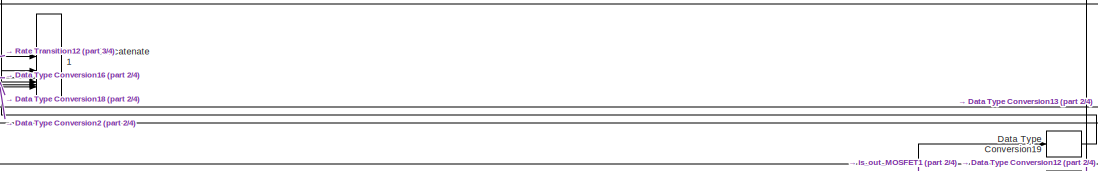
[diagram: simscape_system1 - part 1/4, top center region]
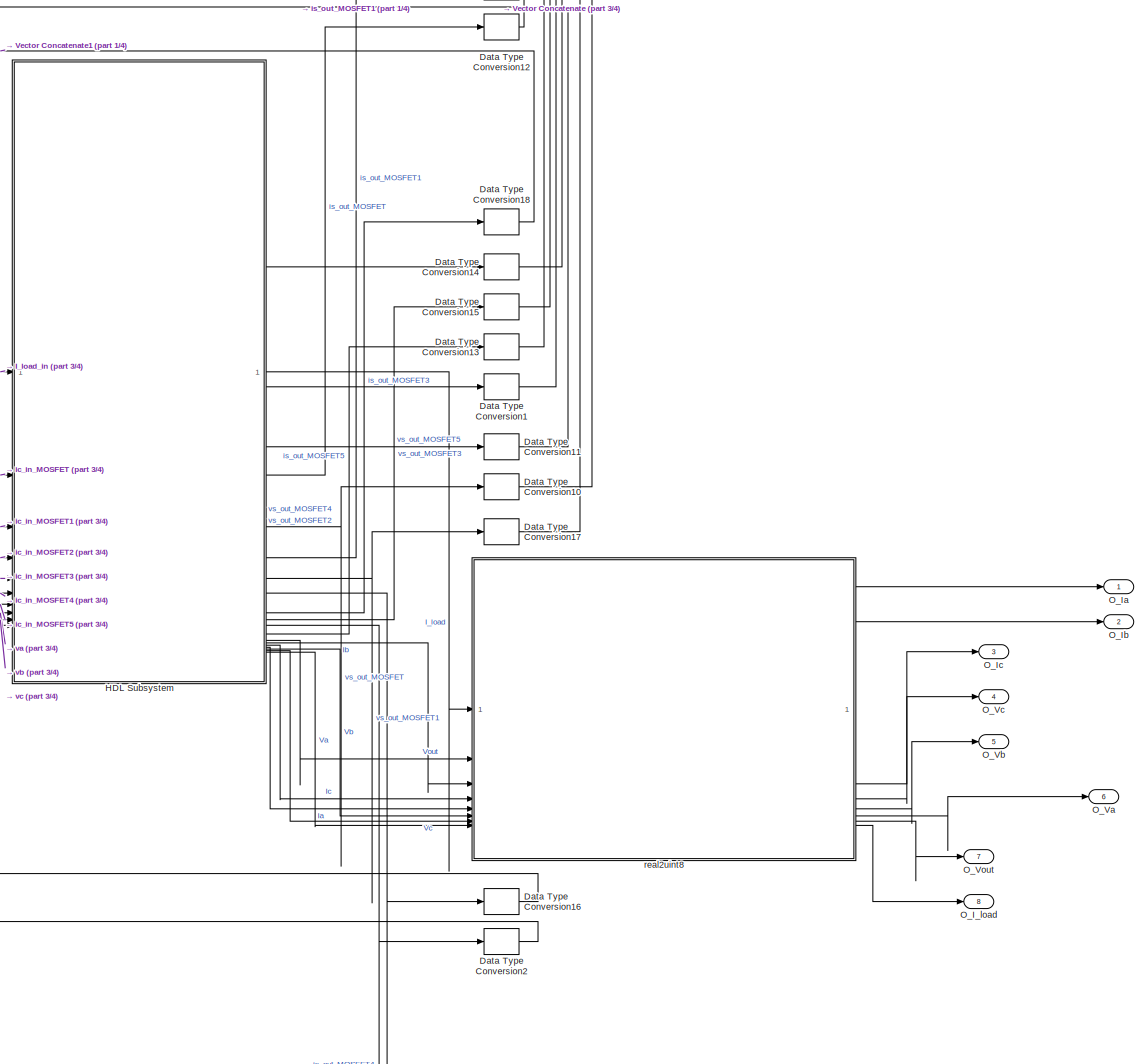
[diagram: simscape_system1 - part 2/4, middle right region]
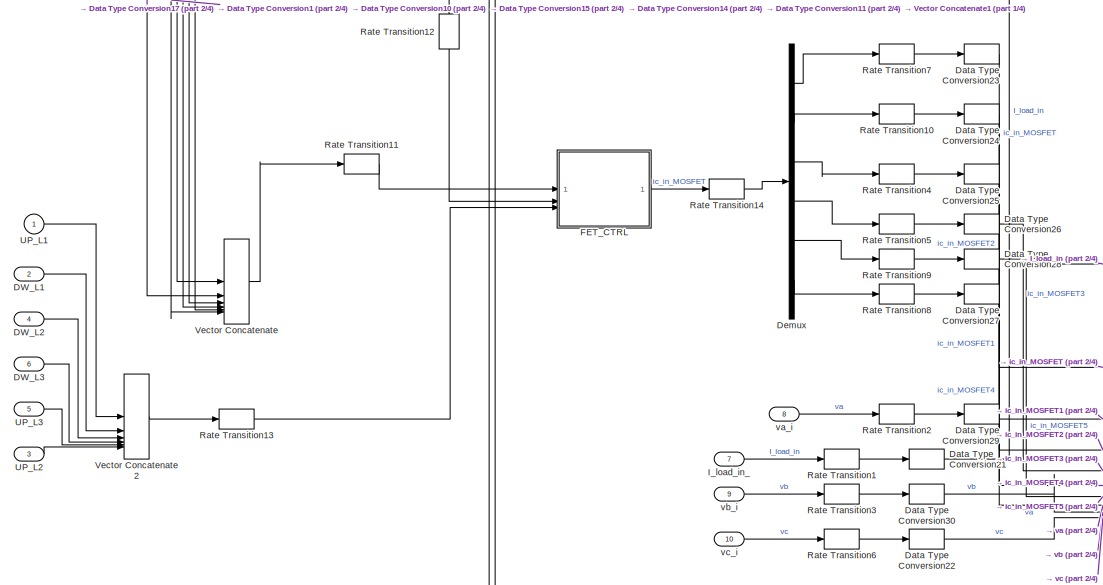
[diagram: simscape_system1 - part 3/4, middle left region]
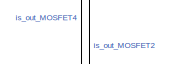
[diagram: simscape_system1 - part 4/4, bottom center region]
BLOCK [SubSystem] simscape_system1
  Commented = on
BLOCK [Inport] simscape_system1/DW_L1
  Port = 2
BLOCK [Inport] simscape_system1/DW_L2
  Port = 4
BLOCK [Inport] simscape_system1/DW_L3
  Port = 6
BLOCK [DataTypeConversion] simscape_system1/Data Type Conversion1
  Commented = through
  LockScale = on
  RndMeth = Nearest
  SaturateOnIntegerOverflow = off
BLOCK [DataTypeConversion] simscape_system1/Data Type Conversion10
  Commented = through
  LockScale = on
  RndMeth = Nearest
  SaturateOnIntegerOverflow = off
BLOCK [DataTypeConversion] simscape_system1/Data Type Conversion11
  Commented = through
  LockScale = on
  RndMeth = Nearest
  SaturateOnIntegerOverflow = off
BLOCK [DataTypeConversion] simscape_system1/Data Type Conversion12
  Commented = through
  LockScale = on
  RndMeth = Nearest
  SaturateOnIntegerOverflow = off
BLOCK [DataTypeConversion] simscape_system1/Data Type Conversion13
  Commented = through
  LockScale = on
  RndMeth = Nearest
  SaturateOnIntegerOverflow = off
BLOCK [DataTypeConversion] simscape_system1/Data Type Conversion14
  Commented = through
  LockScale = on
  RndMeth = Nearest
  SaturateOnIntegerOverflow = off
BLOCK [DataTypeConversion] simscape_system1/Data Type Conversion15
  Commented = through
  LockScale = on
  RndMeth = Nearest
  SaturateOnIntegerOverflow = off
BLOCK [DataTypeConversion] simscape_system1/Data Type Conversion16
  Commented = through
  LockScale = on
  RndMeth = Nearest
  SaturateOnIntegerOverflow = off
BLOCK [DataTypeConversion] simscape_system1/Data Type Conversion17
  Commented = through
  LockScale = on
  RndMeth = Nearest
  SaturateOnIntegerOverflow = off
BLOCK [DataTypeConversion] simscape_system1/Data Type Conversion18
  Commented = through
  LockScale = on
  RndMeth = Nearest
  SaturateOnIntegerOverflow = off
BLOCK [DataTypeConversion] simscape_system1/Data Type Conversion19
  Commented = through
  LockScale = on
  RndMeth = Nearest
  SaturateOnIntegerOverflow = off
BLOCK [DataTypeConversion] simscape_system1/Data Type Conversion2
  Commented = through
  LockScale = on
  RndMeth = Nearest
  SaturateOnIntegerOverflow = off
BLOCK [DataTypeConversion] simscape_system1/Data Type Conversion21
  Commented = through
  OutDataTypeStr = single
  RndMeth = Nearest
  SaturateOnIntegerOverflow = off
BLOCK [DataTypeConversion] simscape_system1/Data Type Conversion22
  Commented = through
  OutDataTypeStr = single
  RndMeth = Nearest
  SaturateOnIntegerOverflow = off
BLOCK [DataTypeConversion] simscape_system1/Data Type Conversion23
  Commented = through
  OutDataTypeStr = single
  RndMeth = Nearest
  SaturateOnIntegerOverflow = off
BLOCK [DataTypeConversion] simscape_system1/Data Type Conversion24
  Commented = through
  OutDataTypeStr = single
  RndMeth = Nearest
  SaturateOnIntegerOverflow = off
BLOCK [DataTypeConversion] simscape_system1/Data Type Conversion25
  Commented = through
  OutDataTypeStr = single
  RndMeth = Nearest
  SaturateOnIntegerOverflow = off
BLOCK [DataTypeConversion] simscape_system1/Data Type Conversion26
  Commented = through
  OutDataTypeStr = single
  RndMeth = Nearest
  SaturateOnIntegerOverflow = off
BLOCK [DataTypeConversion] simscape_system1/Data Type Conversion27
  Commented = through
  OutDataTypeStr = single
  RndMeth = Nearest
  SaturateOnIntegerOverflow = off
BLOCK [DataTypeConversion] simscape_system1/Data Type Conversion28
  Commented = through
  OutDataTypeStr = single
  RndMeth = Nearest
  SaturateOnIntegerOverflow = off
BLOCK [DataTypeConversion] simscape_system1/Data Type Conversion29
  Commented = through
  OutDataTypeStr = single
  RndMeth = Nearest
  SaturateOnIntegerOverflow = off
BLOCK [DataTypeConversion] simscape_system1/Data Type Conversion30
  Commented = through
  OutDataTypeStr = single
  RndMeth = Nearest
  SaturateOnIntegerOverflow = off
BLOCK [Demux] simscape_system1/Demux
  Outputs = 6
BLOCK [SubSystem] simscape_system1/FET_CTRL
BLOCK [Constant] simscape_system1/FET_CTRL/Constant
  OutDataTypeStr = fixdt(1,18,17)
  SampleTime = t_ss
  Value = -.7
BLOCK [Delay] simscape_system1/FET_CTRL/Delay
  Commented = through
  DelayLength = 1
  InputPortMap = u0
  InputProcessing = Columns as channels (frame based)
  SampleTime = t_ss
BLOCK [Delay] simscape_system1/FET_CTRL/Delay1
  Commented = through
  DelayLength = 1
  InputPortMap = u0
  InputProcessing = Columns as channels (frame based)
  SampleTime = t_ss
BLOCK [Delay] simscape_system1/FET_CTRL/Delay2
  Commented = through
  DelayLength = 1
  InputPortMap = u0
  InputProcessing = Columns as channels (frame based)
  SampleTime = t_ss
BLOCK [Delay] simscape_system1/FET_CTRL/Delay3
  Commented = through
  DelayLength = 1
  InitialCondition = -.7
  InputPortMap = u0
  InputProcessing = Columns as channels (frame based)
  SampleTime = t_ss
BLOCK [DiscreteIntegrator] simscape_system1/FET_CTRL/Discrete-Time Integrator
  ICPrevOutput = DiscIntNeverNeededParam
  ICPrevScaledInput = DiscIntNeverNeededParam
  InitialConditionSetting = Auto
  IntegratorMethod = Accumulation: Forward Euler
  LimitOutput = on
  LowerSaturationLimit = -100
  OutDataTypeStr = fixdt(1,18,8)
  SampleTime = t_ss
  SaturateOnIntegerOverflow = on
  UpperSaturationLimit = 100
  gainval = 1/s
BLOCK [RelationalOperator] simscape_system1/FET_CTRL/Equal
  InputSameDT = off
  OutDataTypeStr = boolean
  RndMeth = Simplest
BLOCK [Inport] simscape_system1/FET_CTRL/G
  Port = 3
  SampleTime = t_ss
BLOCK [Gain] simscape_system1/FET_CTRL/Gain1
  Gain = -1
  OutDataTypeStr = fixdt(1,18,12)
BLOCK [Gain] simscape_system1/FET_CTRL/Gain3
  Gain = Gs
  OutDataTypeStr = fixdt(1,18,12)
BLOCK [Reference] simscape_system1/FET_CTRL/Multiply-Add  REF=hdlsllib/HDL Operations/Multiply-Add
  SourceBlock = hdlsllib/HDL Operations/Multiply-Add
  SourceType = Multiply-Add
BLOCK [Logic] simscape_system1/FET_CTRL/OR
  AllPortsSameDT = off
  IconShape = distinctive
  Operator = OR
  OutDataTypeStr = boolean
BLOCK [RateTransition] simscape_system1/FET_CTRL/Rate Transition1
  Commented = through
  OutPortSampleTime = t_ss
BLOCK [RateTransition] simscape_system1/FET_CTRL/Rate Transition11
  Commented = through
  OutPortSampleTime = t_ss
BLOCK [RateTransition] simscape_system1/FET_CTRL/Rate Transition2
  Commented = through
  OutPortSampleTime = t_ss
BLOCK [RateTransition] simscape_system1/FET_CTRL/Rate Transition3
  Commented = through
  OutPortSampleTime = t_ss
BLOCK [RateTransition] simscape_system1/FET_CTRL/Rate Transition4
  Commented = through
  OutPortSampleTime = t_ss
BLOCK [RateTransition] simscape_system1/FET_CTRL/Rate Transition5
  Commented = through
  OutPortSampleTime = t_ss
BLOCK [Sum] simscape_system1/FET_CTRL/Subtract
  IconShape = rectangular
  Inputs = +-
  OutDataTypeStr = fixdt(1,18,12)
BLOCK [Sum] simscape_system1/FET_CTRL/Subtract1
  IconShape = rectangular
  Inputs = +-
  OutDataTypeStr = fixdt(1,18,11)
BLOCK [Outport] simscape_system1/FET_CTRL/ic
  SampleTime = t_ss
BLOCK [Inport] simscape_system1/FET_CTRL/is
  NameLocation = top
  OutDataTypeStr = fixdt(1,18,6)
  Port = 2
  SampleTime = t_ss
BLOCK [Inport] simscape_system1/FET_CTRL/vs
  OutDataTypeStr = fixdt(1,18,6)
  SampleTime = t_ss
BLOCK [SubSystem] simscape_system1/HDL Subsystem
BLOCK [DataTypeConversion] simscape_system1/HDL Subsystem/Data Type Conversion
  RndMeth = Floor
  SaturateOnIntegerOverflow = off
BLOCK [DataTypeConversion] simscape_system1/HDL Subsystem/Data Type Conversion1
  OutDataTypeStr = fixdt(1,18,6)
  RndMeth = Floor
  SaturateOnIntegerOverflow = off
BLOCK [Reference] simscape_system1/HDL Subsystem/Fixed-Point State-Space  REF=simulink/Additional Math
& Discrete/Additional
Discrete/Fixed-Point
State-Space
  SourceBlock = simulink/Additional Math\n& Discrete/Additional\nDiscrete/Fixed-Point\nState-Space
  SourceType = Fixed-Point State-Space
BLOCK [SubSystem] simscape_system1/HDL Subsystem/HDL Algorithm
  Commented = on
BLOCK [Delay] simscape_system1/HDL Subsystem/HDL Algorithm/Delay1
  DelayLength = 1
  InputPortMap = u0
BLOCK [Delay] simscape_system1/HDL Subsystem/HDL Algorithm/Delay2
  InputPortMap = u0
BLOCK [Inport] simscape_system1/HDL Subsystem/HDL Algorithm/In1
BLOCK [Outport] simscape_system1/HDL Subsystem/HDL Algorithm/Out1
  VectorParamsAs1DForOutWhenUnconnected = off
BLOCK [SubSystem] simscape_system1/HDL Subsystem/HDL Algorithm/Output
BLOCK [Terminator] simscape_system1/HDL Subsystem/HDL Algorithm/Output/Bias
BLOCK [Inport] simscape_system1/HDL Subsystem/HDL Algorithm/Output/In1
BLOCK [Mux] simscape_system1/HDL Subsystem/HDL Algorithm/Output/Mux
  DisplayOption = bar
  Inputs = 2
BLOCK [Outport] simscape_system1/HDL Subsystem/HDL Algorithm/Output/Out1
  VectorParamsAs1DForOutWhenUnconnected = off
BLOCK [Reference] simscape_system1/HDL Subsystem/HDL Algorithm/Output/Output Update  REF=hdlssclib/NFPSparseConstMultiply
  SourceBlock = hdlssclib/NFPSparseConstMultiply
BLOCK [Inport] simscape_system1/HDL Subsystem/HDL Algorithm/Output/Sel
  LockScale = on
  Port = 3
BLOCK [Inport] simscape_system1/HDL Subsystem/HDL Algorithm/Output/State
  Port = 2
BLOCK [Constant] simscape_system1/HDL Subsystem/HDL Algorithm/Sel
  OutDataTypeStr = uint32
  SampleTime = -1
  Value = 0
BLOCK [Delay] simscape_system1/HDL Subsystem/HDL Algorithm/State Delay
  DelayLength = 1
  InitialCondition = single(stateSpaceParameters_1.X0)
  InputPortMap = u0
BLOCK [Switch] simscape_system1/HDL Subsystem/HDL Algorithm/State Switch
  Criteria = u2 ~= 0
  InputSameDT = off
  SaturateOnIntegerOverflow = off
BLOCK [SubSystem] simscape_system1/HDL Subsystem/HDL Algorithm/State Update
BLOCK [Terminator] simscape_system1/HDL Subsystem/HDL Algorithm/State Update/Bias
BLOCK [Inport] simscape_system1/HDL Subsystem/HDL Algorithm/State Update/In1
BLOCK [Mux] simscape_system1/HDL Subsystem/HDL Algorithm/State Update/Mux
  DisplayOption = bar
  Inputs = 2
BLOCK [Inport] simscape_system1/HDL Subsystem/HDL Algorithm/State Update/Sel
  LockScale = on
  Port = 3
BLOCK [Inport] simscape_system1/HDL Subsystem/HDL Algorithm/State Update/State
  Port = 2
BLOCK [Outport] simscape_system1/HDL Subsystem/HDL Algorithm/State Update/State Out
  VectorParamsAs1DForOutWhenUnconnected = off
BLOCK [Reference] simscape_system1/HDL Subsystem/HDL Algorithm/State Update/State Update  REF=hdlssclib/NFPSparseConstMultiply
  SourceBlock = hdlssclib/NFPSparseConstMultiply
BLOCK [Constant] simscape_system1/HDL Subsystem/HDL Algorithm/Valid Out
  OutDataTypeStr = boolean
  SampleTime = 4.395604395604395e-07
BLOCK [Constant] simscape_system1/HDL Subsystem/HDL Algorithm/X0
  SampleTime = 4.395604395604395e-07
  Value = single(stateSpaceParameters_1.X0)
BLOCK [Outport] simscape_system1/HDL Subsystem/I_load
BLOCK [Inport] simscape_system1/HDL Subsystem/I_load_in
  OutDataTypeStr = fixdt(1,18,8)
BLOCK [Outport] simscape_system1/HDL Subsystem/Ia
  Port = 17
BLOCK [Outport] simscape_system1/HDL Subsystem/Ib
  Port = 15
BLOCK [Outport] simscape_system1/HDL Subsystem/Ic
  Port = 16
BLOCK [Concatenate] simscape_system1/HDL Subsystem/Input Concat
  NumInputs = 10
BLOCK [Demux] simscape_system1/HDL Subsystem/Output Demux
  Outputs = 20
BLOCK [Outport] simscape_system1/HDL Subsystem/Va
  Port = 20
BLOCK [Outport] simscape_system1/HDL Subsystem/Vb
  Port = 18
BLOCK [Outport] simscape_system1/HDL Subsystem/Vc
  Port = 19
BLOCK [Outport] simscape_system1/HDL Subsystem/Vout
  Port = 14
BLOCK [Inport] simscape_system1/HDL Subsystem/ic_in_MOSFET
  OutDataTypeStr = fixdt(1,18,8)
  Port = 2
BLOCK [Inport] simscape_system1/HDL Subsystem/ic_in_MOSFET1
  OutDataTypeStr = fixdt(1,18,8)
  Port = 3
BLOCK [Inport] simscape_system1/HDL Subsystem/ic_in_MOSFET2
  OutDataTypeStr = fixdt(1,18,8)
  Port = 4
BLOCK [Inport] simscape_system1/HDL Subsystem/ic_in_MOSFET3
  OutDataTypeStr = fixdt(1,18,8)
  Port = 5
BLOCK [Inport] simscape_system1/HDL Subsystem/ic_in_MOSFET4
  OutDataTypeStr = fixdt(1,18,8)
  Port = 6
BLOCK [Inport] simscape_system1/HDL Subsystem/ic_in_MOSFET5
  OutDataTypeStr = fixdt(1,18,8)
  Port = 7
BLOCK [Outport] simscape_system1/HDL Subsystem/is_out_MOSFET
  Port = 2
BLOCK [Outport] simscape_system1/HDL Subsystem/is_out_MOSFET1
  Port = 4
BLOCK [Outport] simscape_system1/HDL Subsystem/is_out_MOSFET2
  Port = 6
BLOCK [Outport] simscape_system1/HDL Subsystem/is_out_MOSFET3
  Port = 8
BLOCK [Outport] simscape_system1/HDL Subsystem/is_out_MOSFET4
  Port = 10
BLOCK [Outport] simscape_system1/HDL Subsystem/is_out_MOSFET5
  Port = 12
BLOCK [Inport] simscape_system1/HDL Subsystem/va
  OutDataTypeStr = fixdt(1,18,8)
  Port = 8
BLOCK [Inport] simscape_system1/HDL Subsystem/vb
  OutDataTypeStr = fixdt(1,18,8)
  Port = 9
BLOCK [Inport] simscape_system1/HDL Subsystem/vc
  OutDataTypeStr = fixdt(1,18,8)
  Port = 10
BLOCK [Outport] simscape_system1/HDL Subsystem/vs_out_MOSFET
  Port = 3
BLOCK [Outport] simscape_system1/HDL Subsystem/vs_out_MOSFET1
  Port = 5
BLOCK [Outport] simscape_system1/HDL Subsystem/vs_out_MOSFET2
  Port = 7
BLOCK [Outport] simscape_system1/HDL Subsystem/vs_out_MOSFET3
  Port = 9
BLOCK [Outport] simscape_system1/HDL Subsystem/vs_out_MOSFET4
  Port = 11
BLOCK [Outport] simscape_system1/HDL Subsystem/vs_out_MOSFET5
  Port = 13
BLOCK [Inport] simscape_system1/I_load_in_
  OutDataTypeStr = fixdt(1,18,8)
  Port = 7
BLOCK [Outport] simscape_system1/O_I_load
  Port = 8
BLOCK [Outport] simscape_system1/O_Ia
BLOCK [Outport] simscape_system1/O_Ib
  Port = 2
BLOCK [Outport] simscape_system1/O_Ic
  Port = 3
BLOCK [Outport] simscape_system1/O_Va
  Port = 6
BLOCK [Outport] simscape_system1/O_Vb
  Port = 5
BLOCK [Outport] simscape_system1/O_Vc
  Port = 4
BLOCK [Outport] simscape_system1/O_Vout
  Port = 7
BLOCK [RateTransition] simscape_system1/Rate Transition1
  OutPortSampleTime = t_ss
BLOCK [RateTransition] simscape_system1/Rate Transition10
  Commented = through
  OutPortSampleTime = t_ss
BLOCK [RateTransition] simscape_system1/Rate Transition11
  OutPortSampleTime = t_ss
BLOCK [RateTransition] simscape_system1/Rate Transition12
  NameLocation = left
  OutPortSampleTime = t_ss
BLOCK [RateTransition] simscape_system1/Rate Transition13
  OutPortSampleTime = t_ss
BLOCK [RateTransition] simscape_system1/Rate Transition14
  Integrity = off
  OutPortSampleTime = t_ss
BLOCK [RateTransition] simscape_system1/Rate Transition2
  OutPortSampleTime = t_ss
BLOCK [RateTransition] simscape_system1/Rate Transition3
  OutPortSampleTime = t_ss
BLOCK [RateTransition] simscape_system1/Rate Transition4
  Commented = through
  OutPortSampleTime = t_ss
BLOCK [RateTransition] simscape_system1/Rate Transition5
  Commented = through
  OutPortSampleTime = t_ss
BLOCK [RateTransition] simscape_system1/Rate Transition6
  OutPortSampleTime = t_ss
BLOCK [RateTransition] simscape_system1/Rate Transition7
  Commented = through
  OutPortSampleTime = t_ss
BLOCK [RateTransition] simscape_system1/Rate Transition8
  Commented = through
  OutPortSampleTime = t_ss
BLOCK [RateTransition] simscape_system1/Rate Transition9
  Commented = through
  OutPortSampleTime = t_ss
BLOCK [Inport] simscape_system1/UP_L1
BLOCK [Inport] simscape_system1/UP_L2
  Port = 3
BLOCK [Inport] simscape_system1/UP_L3
  Port = 5
BLOCK [Concatenate] simscape_system1/Vector Concatenate
  NumInputs = 6
BLOCK [Concatenate] simscape_system1/Vector Concatenate1
  NumInputs = 6
BLOCK [Concatenate] simscape_system1/Vector Concatenate2
  NumInputs = 6
BLOCK [SubSystem] simscape_system1/real2uint8
BLOCK [Sum] simscape_system1/real2uint8/Add2
  IconShape = rectangular
  OutDataTypeStr = Inherit: Same as first input
BLOCK [Sum] simscape_system1/real2uint8/Add3
  IconShape = rectangular
BLOCK [Constant] simscape_system1/real2uint8/Constant
  OutDataTypeStr = fixdt(1,18,6)
  SampleTime = -1
  Value = 40
BLOCK [Constant] simscape_system1/real2uint8/Constant1
  OutDataTypeStr = fixdt(1,18,6)
  SampleTime = -1
  Value = 420
BLOCK [DataTypeConversion] simscape_system1/real2uint8/Data Type Conversion20
  LockScale = on
  OutDataTypeStr = uint8
  RndMeth = Nearest
  SaturateOnIntegerOverflow = off
BLOCK [DataTypeConversion] simscape_system1/real2uint8/Data Type Conversion3
  LockScale = on
  OutDataTypeStr = uint8
  RndMeth = Nearest
  SaturateOnIntegerOverflow = off
BLOCK [DataTypeConversion] simscape_system1/real2uint8/Data Type Conversion5
  LockScale = on
  OutDataTypeStr = uint8
  RndMeth = Nearest
  SaturateOnIntegerOverflow = off
BLOCK [DataTypeConversion] simscape_system1/real2uint8/Data Type Conversion9
  LockScale = on
  OutDataTypeStr = uint8
  RndMeth = Nearest
  SaturateOnIntegerOverflow = off
BLOCK [Delay] simscape_system1/real2uint8/Delay
  DelayLength = 1
  InputPortMap = u0
BLOCK [Delay] simscape_system1/real2uint8/Delay1
  DelayLength = 1
  InputPortMap = u0
BLOCK [Delay] simscape_system1/real2uint8/Delay11
  DelayLength = 1
  InputPortMap = u0
BLOCK [Delay] simscape_system1/real2uint8/Delay12
  DelayLength = 1
  InputPortMap = u0
BLOCK [Delay] simscape_system1/real2uint8/Delay16
  DelayLength = 1
  InputPortMap = u0
BLOCK [Delay] simscape_system1/real2uint8/Delay2
  DelayLength = 1
  InputPortMap = u0
BLOCK [Delay] simscape_system1/real2uint8/Delay22
  DelayLength = 1
  InputPortMap = u0
BLOCK [Delay] simscape_system1/real2uint8/Delay24
  DelayLength = 1
  InputPortMap = u0
BLOCK [Delay] simscape_system1/real2uint8/Delay25
  DelayLength = 1
  InputPortMap = u0
BLOCK [Delay] simscape_system1/real2uint8/Delay29
  DelayLength = 1
  InputPortMap = u0
BLOCK [Delay] simscape_system1/real2uint8/Delay3
  DelayLength = 1
  InputPortMap = u0
BLOCK [Delay] simscape_system1/real2uint8/Delay6
  DelayLength = 1
  InputPortMap = u0
BLOCK [Delay] simscape_system1/real2uint8/Delay8
  DelayLength = 1
  InputPortMap = u0
BLOCK [Delay] simscape_system1/real2uint8/Delay9
  DelayLength = 1
  InputPortMap = u0
BLOCK [Demux] simscape_system1/real2uint8/Demux
  Outputs = 3
BLOCK [Demux] simscape_system1/real2uint8/Demux1
  Outputs = 3
BLOCK [Gain] simscape_system1/real2uint8/Gain2
  Gain = 254/80
  OutDataTypeStr = Inherit: Same as input
BLOCK [Gain] simscape_system1/real2uint8/Gain3
  Gain = 254/20
  OutDataTypeStr = Inherit: Same as input
BLOCK [Gain] simscape_system1/real2uint8/Gain4
  Gain = 254/950
  OutDataTypeStr = Inherit: Same as input
BLOCK [Gain] simscape_system1/real2uint8/Gain5
  Gain = 254/840
  OutDataTypeStr = Inherit: Same as input
BLOCK [Inport] simscape_system1/real2uint8/I_load
BLOCK [Inport] simscape_system1/real2uint8/Ia
  Port = 5
BLOCK [Inport] simscape_system1/real2uint8/Ib
  Port = 3
BLOCK [Inport] simscape_system1/real2uint8/Ic
  Port = 4
BLOCK [Mux] simscape_system1/real2uint8/Mux
  DisplayOption = bar
  Inputs = 3
BLOCK [Mux] simscape_system1/real2uint8/Mux1
  DisplayOption = bar
  Inputs = 3
BLOCK [Outport] simscape_system1/real2uint8/O_I_load
  Port = 8
BLOCK [Outport] simscape_system1/real2uint8/O_Ia
BLOCK [Outport] simscape_system1/real2uint8/O_Ib
  Port = 2
BLOCK [Outport] simscape_system1/real2uint8/O_Ic
  Port = 3
BLOCK [Outport] simscape_system1/real2uint8/O_Va
  Port = 6
BLOCK [Outport] simscape_system1/real2uint8/O_Vb
  Port = 5
BLOCK [Outport] simscape_system1/real2uint8/O_Vc
  Port = 4
BLOCK [Outport] simscape_system1/real2uint8/O_Vout
  Port = 7
BLOCK [Inport] simscape_system1/real2uint8/Va
  Port = 8
BLOCK [Inport] simscape_system1/real2uint8/Vb
  Port = 6
BLOCK [Inport] simscape_system1/real2uint8/Vc
  Port = 7
BLOCK [Inport] simscape_system1/real2uint8/Vout
  Port = 2
BLOCK [Inport] simscape_system1/va_i
  LockScale = on
  Port = 8
BLOCK [Inport] simscape_system1/vb_i
  LockScale = on
  Port = 9
BLOCK [Inport] simscape_system1/vc_i
  LockScale = on
  Port = 10
LINE control/DAC/Data Type Conversion10:1 -> control/DAC/uint82real:3
LINE control/DAC/Data Type Conversion11:1 -> control/DAC/Data Type Conversion12:1
LINE control/DAC/Data Type Conversion12:1 -> control/DAC/uint82real:6
LINE control/DAC/Data Type Conversion13:1 -> control/DAC/Data Type Conversion14:1
LINE control/DAC/Data Type Conversion14:1 -> control/DAC/uint82real:7
LINE control/DAC/Data Type Conversion1:1 -> control/DAC/Data Type Conversion5:1
LINE control/DAC/Data Type Conversion2:1 -> control/DAC/Data Type Conversion8:1
LINE control/DAC/Data Type Conversion3:1 -> control/DAC/uint82real:1
LINE control/DAC/Data Type Conversion4:1 -> control/DAC/uint82real:2
LINE control/DAC/Data Type Conversion5:1 -> control/DAC/uint82real:4
LINE control/DAC/Data Type Conversion6:1 -> control/DAC/Data Type Conversion4:1
LINE control/DAC/Data Type Conversion7:1 -> control/DAC/Data Type Conversion3:1
LINE control/DAC/Data Type Conversion8:1 -> control/DAC/uint82real:5
LINE control/DAC/Data Type Conversion9:1 -> control/DAC/Data Type Conversion10:1
LINE control/DAC/O_Ia:1 -> control/DAC/Rate Transition15:1
LINE control/DAC/O_Ib:1 -> control/DAC/Rate Transition16:1
LINE control/DAC/O_Va:1 -> control/DAC/Rate Transition4:1
LINE control/DAC/Rate Transition10:1 -> control/DAC/Data Type Conversion11:1
LINE control/DAC/Rate Transition11:1 -> control/DAC/Data Type Conversion13:1
LINE control/DAC/Rate Transition12:1 -> control/DAC/o_ia:1
LINE control/DAC/Rate Transition13:1 -> control/DAC/o_ib:1
LINE control/DAC/Rate Transition14:1 -> control/DAC/O_Ic:1
LINE control/DAC/Rate Transition15:1 -> control/DAC/real2uint8:1
LINE control/DAC/Rate Transition16:1 -> control/DAC/real2uint8:2
LINE control/DAC/Rate Transition17:1 -> control/DAC/o_va:1
LINE control/DAC/Rate Transition18:1 -> control/DAC/O_Vout:1
LINE control/DAC/Rate Transition19:1 -> control/DAC/O_Vb:1
LINE control/DAC/Rate Transition1:1 -> control/DAC/real2uint8:5
LINE control/DAC/Rate Transition20:1 -> control/DAC/O_Vc:1
LINE control/DAC/Rate Transition2:1 -> control/DAC/real2uint8:7
LINE control/DAC/Rate Transition3:1 -> control/DAC/real2uint8:3
LINE control/DAC/Rate Transition4:1 -> control/DAC/real2uint8:4
LINE control/DAC/Rate Transition5:1 -> control/DAC/Data Type Conversion7:1
LINE control/DAC/Rate Transition6:1 -> control/DAC/Data Type Conversion6:1
LINE control/DAC/Rate Transition7:1 -> control/DAC/Data Type Conversion9:1
LINE control/DAC/Rate Transition8:1 -> control/DAC/Data Type Conversion1:1
LINE control/DAC/Rate Transition9:1 -> control/DAC/Data Type Conversion2:1
LINE control/DAC/Rate Transition:1 -> control/DAC/real2uint8:6
LINE control/DAC/o_ic:1 -> control/DAC/Rate Transition3:1
LINE control/DAC/o_vb:1 -> control/DAC/Rate Transition2:1
LINE control/DAC/o_vc:1 -> control/DAC/Rate Transition:1
LINE control/DAC/o_vdc:1 -> control/DAC/Rate Transition1:1
LINE control/DAC/real2uint8/Add2:1 -> control/DAC/real2uint8/Delay2:1
LINE control/DAC/real2uint8/Add3:1 -> control/DAC/real2uint8/Delay11:1
LINE control/DAC/real2uint8/Constant1:1 -> control/DAC/real2uint8/Add3:2
LINE control/DAC/real2uint8/Constant:1 -> control/DAC/real2uint8/Add2:1
NET control/DAC/real2uint8/Data Type Conversion3:1 -> control/DAC/real2uint8/Delay24:1, control/DAC/real2uint8/Demux2:1
LINE control/DAC/real2uint8/Data Type Conversion5:1 -> control/DAC/real2uint8/Delay1:1
NET control/DAC/real2uint8/Data Type Conversion9:1 -> control/DAC/real2uint8/Delay25:1, control/DAC/real2uint8/O_Vout:1
LINE control/DAC/real2uint8/Delay11:1 -> control/DAC/real2uint8/Gain5:1
LINE control/DAC/real2uint8/Delay12:1 -> control/DAC/real2uint8/Data Type Conversion9:1
LINE control/DAC/real2uint8/Delay1:1 -> control/DAC/real2uint8/Demux1:1
LINE control/DAC/real2uint8/Delay22:1 -> control/DAC/real2uint8/Data Type Conversion3:1
LINE control/DAC/real2uint8/Delay2:1 -> control/DAC/real2uint8/Gain2:1
LINE control/DAC/real2uint8/Delay3:1 -> control/DAC/real2uint8/Add2:2
LINE control/DAC/real2uint8/Delay8:1 -> control/DAC/real2uint8/Add3:1
LINE control/DAC/real2uint8/Delay9:1 -> control/DAC/real2uint8/Gain4:1
LINE control/DAC/real2uint8/Delay:1 -> control/DAC/real2uint8/Data Type Conversion5:1
LINE control/DAC/real2uint8/Demux1:1 -> control/DAC/real2uint8/O_Ia:1
LINE control/DAC/real2uint8/Demux1:2 -> control/DAC/real2uint8/O_Ib:1
LINE control/DAC/real2uint8/Demux1:3 -> control/DAC/real2uint8/O_Ic:1
LINE control/DAC/real2uint8/Demux2:1 -> control/DAC/real2uint8/O_Va:1
LINE control/DAC/real2uint8/Demux2:2 -> control/DAC/real2uint8/vb:1
LINE control/DAC/real2uint8/Demux2:3 -> control/DAC/real2uint8/vc:1
LINE control/DAC/real2uint8/Gain2:1 -> control/DAC/real2uint8/Delay:1
LINE control/DAC/real2uint8/Gain4:1 -> control/DAC/real2uint8/Delay12:1
LINE control/DAC/real2uint8/Gain5:1 -> control/DAC/real2uint8/Delay22:1
LINE control/DAC/real2uint8/Ia:1 -> control/DAC/real2uint8/Mux1:1
LINE control/DAC/real2uint8/Ib:1 -> control/DAC/real2uint8/Mux1:2
LINE control/DAC/real2uint8/Mux1:1 -> control/DAC/real2uint8/Delay3:1
LINE control/DAC/real2uint8/Mux2:1 -> control/DAC/real2uint8/Delay8:1
LINE control/DAC/real2uint8/O_Vb:1 -> control/DAC/real2uint8/Mux2:2
LINE control/DAC/real2uint8/O_Vc:1 -> control/DAC/real2uint8/Mux2:3
LINE control/DAC/real2uint8/Va:1 -> control/DAC/real2uint8/Mux2:1
LINE control/DAC/real2uint8/Vout:1 -> control/DAC/real2uint8/Delay9:1
LINE control/DAC/real2uint8/o_ic:1 -> control/DAC/real2uint8/Mux1:3
LINE control/DAC/real2uint8:1 -> control/DAC/Rate Transition5:1
LINE control/DAC/real2uint8:2 -> control/DAC/Rate Transition6:1
LINE control/DAC/real2uint8:3 -> control/DAC/Rate Transition7:1
LINE control/DAC/real2uint8:4 -> control/DAC/Rate Transition8:1
LINE control/DAC/real2uint8:5 -> control/DAC/Rate Transition9:1
LINE control/DAC/real2uint8:6 -> control/DAC/Rate Transition10:1
LINE control/DAC/real2uint8:7 -> control/DAC/Rate Transition11:1
LINE control/DAC/uint82real/Add2:1 -> control/DAC/uint82real/Demux1:1
LINE control/DAC/uint82real/Add3:1 -> control/DAC/uint82real/Demux2:1
LINE control/DAC/uint82real/Constant1:1 -> control/DAC/uint82real/Add3:2
LINE control/DAC/uint82real/Constant:1 -> control/DAC/uint82real/Add2:1
LINE control/DAC/uint82real/Demux1:1 -> control/DAC/uint82real/O_Ia:1
LINE control/DAC/uint82real/Demux1:2 -> control/DAC/uint82real/O_Ib:1
LINE control/DAC/uint82real/Demux1:3 -> control/DAC/uint82real/O_Ic:1
LINE control/DAC/uint82real/Demux2:1 -> control/DAC/uint82real/O_Va:1
LINE control/DAC/uint82real/Demux2:2 -> control/DAC/uint82real/O_Vb:1
LINE control/DAC/uint82real/Demux2:3 -> control/DAC/uint82real/O_Vc:1
LINE control/DAC/uint82real/Gain2:1 -> control/DAC/uint82real/Add2:2
LINE control/DAC/uint82real/Gain4:1 -> control/DAC/uint82real/O_Vout:1
LINE control/DAC/uint82real/Gain5:1 -> control/DAC/uint82real/Add3:1
LINE control/DAC/uint82real/Ia:1 -> control/DAC/uint82real/Mux1:1
LINE control/DAC/uint82real/Ib:1 -> control/DAC/uint82real/Mux1:2
LINE control/DAC/uint82real/Mux1:1 -> control/DAC/uint82real/Gain2:1
LINE control/DAC/uint82real/Mux2:1 -> control/DAC/uint82real/Gain5:1
LINE control/DAC/uint82real/Va:1 -> control/DAC/uint82real/Mux2:1
LINE control/DAC/uint82real/Vout:1 -> control/DAC/uint82real/Gain4:1
LINE control/DAC/uint82real/ic:1 -> control/DAC/uint82real/Mux1:3
LINE control/DAC/uint82real/vb:1 -> control/DAC/uint82real/Mux2:2
LINE control/DAC/uint82real/vc:1 -> control/DAC/uint82real/Mux2:3
LINE control/DAC/uint82real:1 -> control/DAC/Rate Transition12:1
LINE control/DAC/uint82real:2 -> control/DAC/Rate Transition13:1
LINE control/DAC/uint82real:3 -> control/DAC/Rate Transition14:1
LINE control/DAC/uint82real:4 -> control/DAC/Rate Transition17:1
LINE control/DAC/uint82real:5 -> control/DAC/Rate Transition18:1
LINE control/DAC/uint82real:6 -> control/DAC/Rate Transition19:1
LINE control/DAC/uint82real:7 -> control/DAC/Rate Transition20:1
LINE control/DAC:1 -> control/Model1:2
LINE control/DAC:2 -> control/Model1:3
LINE control/DAC:3 -> control/Model1:4
LINE control/DAC:4 -> control/Model1:5
LINE control/DAC:5 -> control/Model1:6
LINE control/DAC:6 -> control/Model1:8
LINE control/DAC:7 -> control/Model1:7
LINE control/Data Type Conversion:1 -> control/Rate Transition14:1
LINE control/Delay:1 -> control/Data Type Conversion:1
LINE control/Demux:1 -> control/Rate Transition5:1
LINE control/Demux:2 -> control/Rate Transition6:1
LINE control/Demux:3 -> control/Rate Transition7:1
LINE control/Demux:4 -> control/Rate Transition8:1
LINE control/Demux:5 -> control/Rate Transition9:1
LINE control/Demux:6 -> control/Rate Transition10:1
LINE control/Function-call scheduler:1 -> control/Model1:1
LINE control/Model1:1 -> control/pwms:2
LINE control/Model1:2 -> control/pwms:3
LINE control/Model1:3 -> control/pwms:4
LINE control/Model1:4 -> control/pwms:1
LINE control/O_I_load:1 -> control/Product:1
LINE control/O_Ia:1 -> control/DAC:1
LINE control/O_Ib:1 -> control/DAC:2
LINE control/O_Va:1 -> control/DAC:4
LINE control/O_Vb:1 -> control/DAC:5
LINE control/O_Vc:1 -> control/DAC:6
LINE control/Product:1 -> control/Display1:1
LINE control/Rate Transition10:1 -> control/DW_L3:1
LINE control/Rate Transition14:1 -> control/Demux:1
LINE control/Rate Transition5:1 -> control/UP_L1:1
LINE control/Rate Transition6:1 -> control/DW_L1:1
LINE control/Rate Transition7:1 -> control/UP_L2:1
LINE control/Rate Transition8:1 -> control/DW_L2:1
LINE control/Rate Transition9:1 -> control/UP_L3:1
LINE control/o_ic:1 -> control/DAC:3
LINE control/pwms/EN:1 -> control/pwms/Rate Transition1:1
LINE control/pwms/Gain:1 -> control/pwms/p_svpwm:1
LINE control/pwms/Mux:1 -> control/pwms/Gain:1
LINE control/pwms/Rate Transition11:1 -> control/pwms/pwms:3
LINE control/pwms/Rate Transition12:1 -> control/pwms/pwms:2
LINE control/pwms/Rate Transition13:1 -> control/pwms/pwms:1
LINE control/pwms/Rate Transition1:1 -> control/pwms/pwms:enable
LINE control/pwms/nlock:1 -> control/pwms/EN:1
LINE control/pwms/pwms/not_working/NOT1:1 -> control/pwms/pwms/not_working/DW_L2:1
LINE control/pwms/pwms/not_working/NOT2:1 -> control/pwms/pwms/not_working/DW_L3:1
LINE control/pwms/pwms/not_working/NOT:1 -> control/pwms/pwms/not_working/DW_L1:1
NET control/pwms/pwms/not_working/PWM Generator1:1 -> control/pwms/pwms/not_working/NOT1:1, control/pwms/pwms/not_working/UP_L2:1
NET control/pwms/pwms/not_working/PWM Generator2:1 -> control/pwms/pwms/not_working/NOT2:1, control/pwms/pwms/not_working/UP_L3:1
NET control/pwms/pwms/not_working/PWM Generator:1 -> control/pwms/pwms/not_working/NOT:1, control/pwms/pwms/not_working/UP_L1:1
LINE control/pwms/pwms/not_working/qa:1 -> control/pwms/pwms/not_working/PWM Generator:1
LINE control/pwms/pwms/not_working/qb:1 -> control/pwms/pwms/not_working/PWM Generator1:1
LINE control/pwms/pwms/not_working/qc:1 -> control/pwms/pwms/not_working/PWM Generator2:1
LINE control/pwms/pwms/pwm/Bias:1 -> control/pwms/pwms/pwm/Gain:1
NET control/pwms/pwms/pwm/Equal1:1 -> control/pwms/pwms/pwm/NOT1:1, control/pwms/pwms/pwm/UP_L2:1
NET control/pwms/pwms/pwm/Equal2:1 -> control/pwms/pwms/pwm/NOT2:1, control/pwms/pwms/pwm/UP_L3:1
NET control/pwms/pwms/pwm/Equal:1 -> control/pwms/pwms/pwm/NOT:1, control/pwms/pwms/pwm/UP_L1:1
NET control/pwms/pwms/pwm/Gain:1 -> control/pwms/pwms/pwm/Equal1:2, control/pwms/pwms/pwm/Equal2:2, control/pwms/pwms/pwm/Equal:2
LINE control/pwms/pwms/pwm/NOT1:1 -> control/pwms/pwms/pwm/DW_L2:1
LINE control/pwms/pwms/pwm/NOT2:1 -> control/pwms/pwms/pwm/DW_L3:1
LINE control/pwms/pwms/pwm/NOT:1 -> control/pwms/pwms/pwm/DW_L1:1
LINE control/pwms/pwms/pwm/Triangle Generator:1 -> control/pwms/pwms/pwm/Bias:1
LINE control/pwms/pwms/pwm/qa:1 -> control/pwms/pwms/pwm/Equal:1
LINE control/pwms/pwms/pwm/qb:1 -> control/pwms/pwms/pwm/Equal1:1
LINE control/pwms/pwms/pwm/qc:1 -> control/pwms/pwms/pwm/Equal2:1
LINE control/pwms/pwms:1 -> control/pwms/Mux:1
LINE control/pwms/pwms:2 -> control/pwms/Mux:2
LINE control/pwms/pwms:3 -> control/pwms/Mux:3
LINE control/pwms/pwms:4 -> control/pwms/Mux:4
LINE control/pwms/pwms:5 -> control/pwms/Mux:5
LINE control/pwms/pwms:6 -> control/pwms/Mux:6
LINE control/pwms/qa:1 -> control/pwms/Rate Transition13:1
LINE control/pwms/qb:1 -> control/pwms/Rate Transition12:1
LINE control/pwms/qc:1 -> control/pwms/Rate Transition11:1
LINE control/pwms:1 -> control/Delay:1
NET control/v_out:1 -> control/DAC:7, control/Product:2
LINE control/vacs/Add1:1 -> control/vacs/Rate Transition12:1
LINE control/vacs/Add2:1 -> control/vacs/Rate Transition11:1
LINE control/vacs/Add:1 -> control/vacs/Rate Transition13:1
NET control/vacs/Constant1:1 -> control/vacs/Saturation:1, control/vacs/Switch:3
LINE control/vacs/Constant2:1 -> control/vacs/Switch:1
LINE control/vacs/Constant3:1 -> control/vacs/Switch1:3
LINE control/vacs/Data Type Conversion1:1 -> control/vacs/Out3:1
LINE control/vacs/Data Type Conversion2:1 -> control/vacs/Out4:1
LINE control/vacs/Data Type Conversion3:1 -> control/vacs/Out1:1
LINE control/vacs/Data Type Conversion:1 -> control/vacs/Out2:1
LINE control/vacs/Gain:1 -> control/vacs/Add1:1
LINE control/vacs/Rate Transition11:1 -> control/vacs/Data Type Conversion2:1
LINE control/vacs/Rate Transition12:1 -> control/vacs/Data Type Conversion1:1
LINE control/vacs/Rate Transition13:1 -> control/vacs/Data Type Conversion:1
LINE control/vacs/Rate Transition14:1 -> control/vacs/Data Type Conversion3:1
LINE control/vacs/Step1:1 -> control/vacs/Switch1:2
LINE control/vacs/Step2:1 -> control/vacs/Switch1:1
LINE control/vacs/Step:1 -> control/vacs/Switch:2
NET control/vacs/Switch1:1 -> control/vacs/Add2:1, control/vacs/Gain:1
LINE control/vacs/Switch:1 -> control/vacs/Rate Transition14:1
LINE control/vacs/va_:1 -> control/vacs/Add2:2
LINE control/vacs/vb_:1 -> control/vacs/Add1:2
LINE control/vacs/vc_:1 -> control/vacs/Add:2
LINE control/vacs:1 -> control/I_load_in_:1
LINE control/vacs:2 -> control/vc:1
LINE control/vacs:3 -> control/vb:1
LINE control/vacs:4 -> control/va:1
NET control:1 -> simscape_system1:1, simscape_system:1
NET control:10 -> simscape_system1:10, simscape_system:10
NET control:2 -> simscape_system1:2, simscape_system:2
NET control:3 -> simscape_system1:3, simscape_system:3
NET control:4 -> simscape_system1:4, simscape_system:4
NET control:5 -> simscape_system1:5, simscape_system:5
NET control:6 -> simscape_system1:6, simscape_system:6
NET control:7 -> simscape_system1:7, simscape_system:7
NET control:8 -> simscape_system1:8, simscape_system:8
NET control:9 -> simscape_system1:9, simscape_system:9
LINE simscape_system/3Bridges/Linear_FET/DW_L1:1 -> simscape_system/3Bridges/Linear_FET/MOSFET1:1
LINE simscape_system/3Bridges/Linear_FET/DW_L2:1 -> simscape_system/3Bridges/Linear_FET/MOSFET2:1
LINE simscape_system/3Bridges/Linear_FET/DW_L3:1 -> simscape_system/3Bridges/Linear_FET/MOSFET5:1
LINE simscape_system/3Bridges/Linear_FET/MOSFET/Controller/Constant:1 -> simscape_system/3Bridges/Linear_FET/MOSFET/Controller/Equal:1
NET simscape_system/3Bridges/Linear_FET/MOSFET/Controller/Discrete-Time Integrator:1 -> simscape_system/3Bridges/Linear_FET/MOSFET/Controller/Subtract:2, simscape_system/3Bridges/Linear_FET/MOSFET/Controller/ic:1
LINE simscape_system/3Bridges/Linear_FET/MOSFET/Controller/Equal:1 -> simscape_system/3Bridges/Linear_FET/MOSFET/Controller/Gain:1
LINE simscape_system/3Bridges/Linear_FET/MOSFET/Controller/G:1 -> simscape_system/3Bridges/Linear_FET/MOSFET/Controller/OR:1
NET simscape_system/3Bridges/Linear_FET/MOSFET/Controller/Gain3:1 -> simscape_system/3Bridges/Linear_FET/MOSFET/Controller/Multiply-Add:3, simscape_system/3Bridges/Linear_FET/MOSFET/Controller/Subtract1:2
LINE simscape_system/3Bridges/Linear_FET/MOSFET/Controller/Gain:1 -> simscape_system/3Bridges/Linear_FET/MOSFET/Controller/OR:2
LINE simscape_system/3Bridges/Linear_FET/MOSFET/Controller/Multiply-Add:1 -> simscape_system/3Bridges/Linear_FET/MOSFET/Controller/Subtract:1
LINE simscape_system/3Bridges/Linear_FET/MOSFET/Controller/OR:1 -> simscape_system/3Bridges/Linear_FET/MOSFET/Controller/Multiply-Add:2
LINE simscape_system/3Bridges/Linear_FET/MOSFET/Controller/Subtract1:1 -> simscape_system/3Bridges/Linear_FET/MOSFET/Controller/Multiply-Add:1
LINE simscape_system/3Bridges/Linear_FET/MOSFET/Controller/Subtract:1 -> simscape_system/3Bridges/Linear_FET/MOSFET/Controller/Discrete-Time Integrator:1
LINE simscape_system/3Bridges/Linear_FET/MOSFET/Controller/Unary Minus:1 -> simscape_system/3Bridges/Linear_FET/MOSFET/Controller/Subtract1:1
LINE simscape_system/3Bridges/Linear_FET/MOSFET/Controller/is:1 -> simscape_system/3Bridges/Linear_FET/MOSFET/Controller/Unary Minus:1
NET simscape_system/3Bridges/Linear_FET/MOSFET/Controller/vs:1 -> simscape_system/3Bridges/Linear_FET/MOSFET/Controller/Equal:2, simscape_system/3Bridges/Linear_FET/MOSFET/Controller/Gain3:1
LINE simscape_system/3Bridges/Linear_FET/MOSFET/Controller:1 -> simscape_system/3Bridges/Linear_FET/MOSFET/ic_in_MOSFET:1
LINE simscape_system/3Bridges/Linear_FET/MOSFET/G:1 -> simscape_system/3Bridges/Linear_FET/MOSFET/Controller:3
LINE simscape_system/3Bridges/Linear_FET/MOSFET/is_out_MOSFET:1 -> simscape_system/3Bridges/Linear_FET/MOSFET/Controller:2
LINE simscape_system/3Bridges/Linear_FET/MOSFET/vs_out_MOSFET:1 -> simscape_system/3Bridges/Linear_FET/MOSFET/Controller:1
LINE simscape_system/3Bridges/Linear_FET/MOSFET1/Controller/Constant:1 -> simscape_system/3Bridges/Linear_FET/MOSFET1/Controller/Equal:1
NET simscape_system/3Bridges/Linear_FET/MOSFET1/Controller/Discrete-Time Integrator:1 -> simscape_system/3Bridges/Linear_FET/MOSFET1/Controller/Subtract:2, simscape_system/3Bridges/Linear_FET/MOSFET1/Controller/ic:1
LINE simscape_system/3Bridges/Linear_FET/MOSFET1/Controller/Equal:1 -> simscape_system/3Bridges/Linear_FET/MOSFET1/Controller/Gain:1
LINE simscape_system/3Bridges/Linear_FET/MOSFET1/Controller/G:1 -> simscape_system/3Bridges/Linear_FET/MOSFET1/Controller/OR:1
NET simscape_system/3Bridges/Linear_FET/MOSFET1/Controller/Gain3:1 -> simscape_system/3Bridges/Linear_FET/MOSFET1/Controller/Multiply-Add:3, simscape_system/3Bridges/Linear_FET/MOSFET1/Controller/Subtract1:2
LINE simscape_system/3Bridges/Linear_FET/MOSFET1/Controller/Gain:1 -> simscape_system/3Bridges/Linear_FET/MOSFET1/Controller/OR:2
LINE simscape_system/3Bridges/Linear_FET/MOSFET1/Controller/Multiply-Add:1 -> simscape_system/3Bridges/Linear_FET/MOSFET1/Controller/Subtract:1
LINE simscape_system/3Bridges/Linear_FET/MOSFET1/Controller/OR:1 -> simscape_system/3Bridges/Linear_FET/MOSFET1/Controller/Multiply-Add:2
LINE simscape_system/3Bridges/Linear_FET/MOSFET1/Controller/Subtract1:1 -> simscape_system/3Bridges/Linear_FET/MOSFET1/Controller/Multiply-Add:1
LINE simscape_system/3Bridges/Linear_FET/MOSFET1/Controller/Subtract:1 -> simscape_system/3Bridges/Linear_FET/MOSFET1/Controller/Discrete-Time Integrator:1
LINE simscape_system/3Bridges/Linear_FET/MOSFET1/Controller/Unary Minus:1 -> simscape_system/3Bridges/Linear_FET/MOSFET1/Controller/Subtract1:1
LINE simscape_system/3Bridges/Linear_FET/MOSFET1/Controller/is:1 -> simscape_system/3Bridges/Linear_FET/MOSFET1/Controller/Unary Minus:1
NET simscape_system/3Bridges/Linear_FET/MOSFET1/Controller/vs:1 -> simscape_system/3Bridges/Linear_FET/MOSFET1/Controller/Equal:2, simscape_system/3Bridges/Linear_FET/MOSFET1/Controller/Gain3:1
LINE simscape_system/3Bridges/Linear_FET/MOSFET1/Controller:1 -> simscape_system/3Bridges/Linear_FET/MOSFET1/ic_in_MOSFET:1
LINE simscape_system/3Bridges/Linear_FET/MOSFET1/G:1 -> simscape_system/3Bridges/Linear_FET/MOSFET1/Controller:3
LINE simscape_system/3Bridges/Linear_FET/MOSFET1/is_out_MOSFET:1 -> simscape_system/3Bridges/Linear_FET/MOSFET1/Controller:2
LINE simscape_system/3Bridges/Linear_FET/MOSFET1/vs_out_MOSFET:1 -> simscape_system/3Bridges/Linear_FET/MOSFET1/Controller:1
LINE simscape_system/3Bridges/Linear_FET/MOSFET2/Controller/Constant:1 -> simscape_system/3Bridges/Linear_FET/MOSFET2/Controller/Equal:1
NET simscape_system/3Bridges/Linear_FET/MOSFET2/Controller/Discrete-Time Integrator:1 -> simscape_system/3Bridges/Linear_FET/MOSFET2/Controller/Subtract:2, simscape_system/3Bridges/Linear_FET/MOSFET2/Controller/ic:1
LINE simscape_system/3Bridges/Linear_FET/MOSFET2/Controller/Equal:1 -> simscape_system/3Bridges/Linear_FET/MOSFET2/Controller/Gain:1
LINE simscape_system/3Bridges/Linear_FET/MOSFET2/Controller/G:1 -> simscape_system/3Bridges/Linear_FET/MOSFET2/Controller/OR:1
NET simscape_system/3Bridges/Linear_FET/MOSFET2/Controller/Gain3:1 -> simscape_system/3Bridges/Linear_FET/MOSFET2/Controller/Multiply-Add:3, simscape_system/3Bridges/Linear_FET/MOSFET2/Controller/Subtract1:2
LINE simscape_system/3Bridges/Linear_FET/MOSFET2/Controller/Gain:1 -> simscape_system/3Bridges/Linear_FET/MOSFET2/Controller/OR:2
LINE simscape_system/3Bridges/Linear_FET/MOSFET2/Controller/Multiply-Add:1 -> simscape_system/3Bridges/Linear_FET/MOSFET2/Controller/Subtract:1
LINE simscape_system/3Bridges/Linear_FET/MOSFET2/Controller/OR:1 -> simscape_system/3Bridges/Linear_FET/MOSFET2/Controller/Multiply-Add:2
LINE simscape_system/3Bridges/Linear_FET/MOSFET2/Controller/Subtract1:1 -> simscape_system/3Bridges/Linear_FET/MOSFET2/Controller/Multiply-Add:1
LINE simscape_system/3Bridges/Linear_FET/MOSFET2/Controller/Subtract:1 -> simscape_system/3Bridges/Linear_FET/MOSFET2/Controller/Discrete-Time Integrator:1
LINE simscape_system/3Bridges/Linear_FET/MOSFET2/Controller/Unary Minus:1 -> simscape_system/3Bridges/Linear_FET/MOSFET2/Controller/Subtract1:1
LINE simscape_system/3Bridges/Linear_FET/MOSFET2/Controller/is:1 -> simscape_system/3Bridges/Linear_FET/MOSFET2/Controller/Unary Minus:1
NET simscape_system/3Bridges/Linear_FET/MOSFET2/Controller/vs:1 -> simscape_system/3Bridges/Linear_FET/MOSFET2/Controller/Equal:2, simscape_system/3Bridges/Linear_FET/MOSFET2/Controller/Gain3:1
LINE simscape_system/3Bridges/Linear_FET/MOSFET2/Controller:1 -> simscape_system/3Bridges/Linear_FET/MOSFET2/ic_in_MOSFET:1
LINE simscape_system/3Bridges/Linear_FET/MOSFET2/G:1 -> simscape_system/3Bridges/Linear_FET/MOSFET2/Controller:3
LINE simscape_system/3Bridges/Linear_FET/MOSFET2/is_out_MOSFET:1 -> simscape_system/3Bridges/Linear_FET/MOSFET2/Controller:2
LINE simscape_system/3Bridges/Linear_FET/MOSFET2/vs_out_MOSFET:1 -> simscape_system/3Bridges/Linear_FET/MOSFET2/Controller:1
LINE simscape_system/3Bridges/Linear_FET/MOSFET3/Controller/Constant:1 -> simscape_system/3Bridges/Linear_FET/MOSFET3/Controller/Equal:1
NET simscape_system/3Bridges/Linear_FET/MOSFET3/Controller/Discrete-Time Integrator:1 -> simscape_system/3Bridges/Linear_FET/MOSFET3/Controller/Subtract:2, simscape_system/3Bridges/Linear_FET/MOSFET3/Controller/ic:1
LINE simscape_system/3Bridges/Linear_FET/MOSFET3/Controller/Equal:1 -> simscape_system/3Bridges/Linear_FET/MOSFET3/Controller/Gain:1
LINE simscape_system/3Bridges/Linear_FET/MOSFET3/Controller/G:1 -> simscape_system/3Bridges/Linear_FET/MOSFET3/Controller/OR:1
NET simscape_system/3Bridges/Linear_FET/MOSFET3/Controller/Gain3:1 -> simscape_system/3Bridges/Linear_FET/MOSFET3/Controller/Multiply-Add:3, simscape_system/3Bridges/Linear_FET/MOSFET3/Controller/Subtract1:2
LINE simscape_system/3Bridges/Linear_FET/MOSFET3/Controller/Gain:1 -> simscape_system/3Bridges/Linear_FET/MOSFET3/Controller/OR:2
LINE simscape_system/3Bridges/Linear_FET/MOSFET3/Controller/Multiply-Add:1 -> simscape_system/3Bridges/Linear_FET/MOSFET3/Controller/Subtract:1
LINE simscape_system/3Bridges/Linear_FET/MOSFET3/Controller/OR:1 -> simscape_system/3Bridges/Linear_FET/MOSFET3/Controller/Multiply-Add:2
LINE simscape_system/3Bridges/Linear_FET/MOSFET3/Controller/Subtract1:1 -> simscape_system/3Bridges/Linear_FET/MOSFET3/Controller/Multiply-Add:1
LINE simscape_system/3Bridges/Linear_FET/MOSFET3/Controller/Subtract:1 -> simscape_system/3Bridges/Linear_FET/MOSFET3/Controller/Discrete-Time Integrator:1
LINE simscape_system/3Bridges/Linear_FET/MOSFET3/Controller/Unary Minus:1 -> simscape_system/3Bridges/Linear_FET/MOSFET3/Controller/Subtract1:1
LINE simscape_system/3Bridges/Linear_FET/MOSFET3/Controller/is:1 -> simscape_system/3Bridges/Linear_FET/MOSFET3/Controller/Unary Minus:1
NET simscape_system/3Bridges/Linear_FET/MOSFET3/Controller/vs:1 -> simscape_system/3Bridges/Linear_FET/MOSFET3/Controller/Equal:2, simscape_system/3Bridges/Linear_FET/MOSFET3/Controller/Gain3:1
LINE simscape_system/3Bridges/Linear_FET/MOSFET3/Controller:1 -> simscape_system/3Bridges/Linear_FET/MOSFET3/ic_in_MOSFET:1
LINE simscape_system/3Bridges/Linear_FET/MOSFET3/G:1 -> simscape_system/3Bridges/Linear_FET/MOSFET3/Controller:3
LINE simscape_system/3Bridges/Linear_FET/MOSFET3/is_out_MOSFET:1 -> simscape_system/3Bridges/Linear_FET/MOSFET3/Controller:2
LINE simscape_system/3Bridges/Linear_FET/MOSFET3/vs_out_MOSFET:1 -> simscape_system/3Bridges/Linear_FET/MOSFET3/Controller:1
LINE simscape_system/3Bridges/Linear_FET/MOSFET4/Controller/Constant:1 -> simscape_system/3Bridges/Linear_FET/MOSFET4/Controller/Equal:1
NET simscape_system/3Bridges/Linear_FET/MOSFET4/Controller/Discrete-Time Integrator:1 -> simscape_system/3Bridges/Linear_FET/MOSFET4/Controller/Subtract:2, simscape_system/3Bridges/Linear_FET/MOSFET4/Controller/ic:1
LINE simscape_system/3Bridges/Linear_FET/MOSFET4/Controller/Equal:1 -> simscape_system/3Bridges/Linear_FET/MOSFET4/Controller/Gain:1
LINE simscape_system/3Bridges/Linear_FET/MOSFET4/Controller/G:1 -> simscape_system/3Bridges/Linear_FET/MOSFET4/Controller/OR:1
NET simscape_system/3Bridges/Linear_FET/MOSFET4/Controller/Gain3:1 -> simscape_system/3Bridges/Linear_FET/MOSFET4/Controller/Multiply-Add:3, simscape_system/3Bridges/Linear_FET/MOSFET4/Controller/Subtract1:2
LINE simscape_system/3Bridges/Linear_FET/MOSFET4/Controller/Gain:1 -> simscape_system/3Bridges/Linear_FET/MOSFET4/Controller/OR:2
LINE simscape_system/3Bridges/Linear_FET/MOSFET4/Controller/Multiply-Add:1 -> simscape_system/3Bridges/Linear_FET/MOSFET4/Controller/Subtract:1
LINE simscape_system/3Bridges/Linear_FET/MOSFET4/Controller/OR:1 -> simscape_system/3Bridges/Linear_FET/MOSFET4/Controller/Multiply-Add:2
LINE simscape_system/3Bridges/Linear_FET/MOSFET4/Controller/Subtract1:1 -> simscape_system/3Bridges/Linear_FET/MOSFET4/Controller/Multiply-Add:1
LINE simscape_system/3Bridges/Linear_FET/MOSFET4/Controller/Subtract:1 -> simscape_system/3Bridges/Linear_FET/MOSFET4/Controller/Discrete-Time Integrator:1
LINE simscape_system/3Bridges/Linear_FET/MOSFET4/Controller/Unary Minus:1 -> simscape_system/3Bridges/Linear_FET/MOSFET4/Controller/Subtract1:1
LINE simscape_system/3Bridges/Linear_FET/MOSFET4/Controller/is:1 -> simscape_system/3Bridges/Linear_FET/MOSFET4/Controller/Unary Minus:1
NET simscape_system/3Bridges/Linear_FET/MOSFET4/Controller/vs:1 -> simscape_system/3Bridges/Linear_FET/MOSFET4/Controller/Equal:2, simscape_system/3Bridges/Linear_FET/MOSFET4/Controller/Gain3:1
LINE simscape_system/3Bridges/Linear_FET/MOSFET4/Controller:1 -> simscape_system/3Bridges/Linear_FET/MOSFET4/ic_in_MOSFET:1
LINE simscape_system/3Bridges/Linear_FET/MOSFET4/G:1 -> simscape_system/3Bridges/Linear_FET/MOSFET4/Controller:3
LINE simscape_system/3Bridges/Linear_FET/MOSFET4/is_out_MOSFET:1 -> simscape_system/3Bridges/Linear_FET/MOSFET4/Controller:2
LINE simscape_system/3Bridges/Linear_FET/MOSFET4/vs_out_MOSFET:1 -> simscape_system/3Bridges/Linear_FET/MOSFET4/Controller:1
LINE simscape_system/3Bridges/Linear_FET/MOSFET5/Controller/Constant:1 -> simscape_system/3Bridges/Linear_FET/MOSFET5/Controller/Equal:1
NET simscape_system/3Bridges/Linear_FET/MOSFET5/Controller/Discrete-Time Integrator:1 -> simscape_system/3Bridges/Linear_FET/MOSFET5/Controller/Subtract:2, simscape_system/3Bridges/Linear_FET/MOSFET5/Controller/ic:1
LINE simscape_system/3Bridges/Linear_FET/MOSFET5/Controller/Equal:1 -> simscape_system/3Bridges/Linear_FET/MOSFET5/Controller/Gain:1
LINE simscape_system/3Bridges/Linear_FET/MOSFET5/Controller/G:1 -> simscape_system/3Bridges/Linear_FET/MOSFET5/Controller/OR:1
NET simscape_system/3Bridges/Linear_FET/MOSFET5/Controller/Gain3:1 -> simscape_system/3Bridges/Linear_FET/MOSFET5/Controller/Multiply-Add:3, simscape_system/3Bridges/Linear_FET/MOSFET5/Controller/Subtract1:2
LINE simscape_system/3Bridges/Linear_FET/MOSFET5/Controller/Gain:1 -> simscape_system/3Bridges/Linear_FET/MOSFET5/Controller/OR:2
LINE simscape_system/3Bridges/Linear_FET/MOSFET5/Controller/Multiply-Add:1 -> simscape_system/3Bridges/Linear_FET/MOSFET5/Controller/Subtract:1
LINE simscape_system/3Bridges/Linear_FET/MOSFET5/Controller/OR:1 -> simscape_system/3Bridges/Linear_FET/MOSFET5/Controller/Multiply-Add:2
LINE simscape_system/3Bridges/Linear_FET/MOSFET5/Controller/Subtract1:1 -> simscape_system/3Bridges/Linear_FET/MOSFET5/Controller/Multiply-Add:1
LINE simscape_system/3Bridges/Linear_FET/MOSFET5/Controller/Subtract:1 -> simscape_system/3Bridges/Linear_FET/MOSFET5/Controller/Discrete-Time Integrator:1
LINE simscape_system/3Bridges/Linear_FET/MOSFET5/Controller/Unary Minus:1 -> simscape_system/3Bridges/Linear_FET/MOSFET5/Controller/Subtract1:1
LINE simscape_system/3Bridges/Linear_FET/MOSFET5/Controller/is:1 -> simscape_system/3Bridges/Linear_FET/MOSFET5/Controller/Unary Minus:1
NET simscape_system/3Bridges/Linear_FET/MOSFET5/Controller/vs:1 -> simscape_system/3Bridges/Linear_FET/MOSFET5/Controller/Equal:2, simscape_system/3Bridges/Linear_FET/MOSFET5/Controller/Gain3:1
LINE simscape_system/3Bridges/Linear_FET/MOSFET5/Controller:1 -> simscape_system/3Bridges/Linear_FET/MOSFET5/ic_in_MOSFET:1
LINE simscape_system/3Bridges/Linear_FET/MOSFET5/G:1 -> simscape_system/3Bridges/Linear_FET/MOSFET5/Controller:3
LINE simscape_system/3Bridges/Linear_FET/MOSFET5/is_out_MOSFET:1 -> simscape_system/3Bridges/Linear_FET/MOSFET5/Controller:2
LINE simscape_system/3Bridges/Linear_FET/MOSFET5/vs_out_MOSFET:1 -> simscape_system/3Bridges/Linear_FET/MOSFET5/Controller:1
LINE simscape_system/3Bridges/Linear_FET/UP_L1:1 -> simscape_system/3Bridges/Linear_FET/MOSFET:1
LINE simscape_system/3Bridges/Linear_FET/UP_L2:1 -> simscape_system/3Bridges/Linear_FET/MOSFET3:1
LINE simscape_system/3Bridges/Linear_FET/UP_L3:1 -> simscape_system/3Bridges/Linear_FET/MOSFET4:1
LINE simscape_system/3Bridges/Simscape/DW_L1:1 -> simscape_system/3Bridges/Simscape/Subsystem:1
LINE simscape_system/3Bridges/Simscape/DW_L2:1 -> simscape_system/3Bridges/Simscape/Subsystem3:1
LINE simscape_system/3Bridges/Simscape/DW_L3:1 -> simscape_system/3Bridges/Simscape/Subsystem4:1
LINE simscape_system/3Bridges/Simscape/Subsystem/g:1 -> simscape_system/3Bridges/Simscape/Subsystem/Simulink-PS Converter:1
LINE simscape_system/3Bridges/Simscape/Subsystem1/g:1 -> simscape_system/3Bridges/Simscape/Subsystem1/Simulink-PS Converter:1
LINE simscape_system/3Bridges/Simscape/Subsystem2/g:1 -> simscape_system/3Bridges/Simscape/Subsystem2/Simulink-PS Converter:1
LINE simscape_system/3Bridges/Simscape/Subsystem3/g:1 -> simscape_system/3Bridges/Simscape/Subsystem3/Simulink-PS Converter:1
LINE simscape_system/3Bridges/Simscape/Subsystem4/g:1 -> simscape_system/3Bridges/Simscape/Subsystem4/Simulink-PS Converter:1
LINE simscape_system/3Bridges/Simscape/Subsystem5/g:1 -> simscape_system/3Bridges/Simscape/Subsystem5/Simulink-PS Converter:1
LINE simscape_system/3Bridges/Simscape/UP_L1:1 -> simscape_system/3Bridges/Simscape/Subsystem1:1
LINE simscape_system/3Bridges/Simscape/UP_L2:1 -> simscape_system/3Bridges/Simscape/Subsystem2:1
LINE simscape_system/3Bridges/Simscape/UP_L3:1 -> simscape_system/3Bridges/Simscape/Subsystem5:1
LINE simscape_system/DW_L1:1 -> simscape_system/3Bridges:2
LINE simscape_system/DW_L2:1 -> simscape_system/3Bridges:4
LINE simscape_system/DW_L3:1 -> simscape_system/3Bridges:6
LINE simscape_system/I_load_in_:1 -> simscape_system/Load:1
LINE simscape_system/Load/I_load:1 -> simscape_system/Load/O_I_load:1
LINE simscape_system/Load/I_load_in_:1 -> simscape_system/Load/I_load_in:1
LINE simscape_system/Load:1 -> simscape_system/O_I_load:1
LINE simscape_system/UP_L1:1 -> simscape_system/3Bridges:1
LINE simscape_system/UP_L2:1 -> simscape_system/3Bridges:3
LINE simscape_system/UP_L3:1 -> simscape_system/3Bridges:5
LINE simscape_system/Vout:1 -> simscape_system/O_Vout:1
LINE simscape_system/meas/Ia:1 -> simscape_system/meas/O_Ia:1
LINE simscape_system/meas/Ib:1 -> simscape_system/meas/O_Ib:1
LINE simscape_system/meas/Ic:1 -> simscape_system/meas/O_Ic:1
LINE simscape_system/meas/Va:1 -> simscape_system/meas/O_Va:1
LINE simscape_system/meas/Vb:1 -> simscape_system/meas/O_Vb:1
LINE simscape_system/meas/Vc:1 -> simscape_system/meas/O_Vc:1
LINE simscape_system/meas:1 -> simscape_system/O_Ia:1
LINE simscape_system/meas:2 -> simscape_system/O_Ib:1
LINE simscape_system/meas:3 -> simscape_system/O_Ic:1
LINE simscape_system/meas:4 -> simscape_system/O_Va:1
LINE simscape_system/meas:5 -> simscape_system/O_Vb:1
LINE simscape_system/meas:6 -> simscape_system/O_Vc:1
LINE simscape_system/va_i:1 -> simscape_system/va:1
LINE simscape_system/vb_i:1 -> simscape_system/vb:1
LINE simscape_system/vc_i:1 -> simscape_system/vc:1
LINE simscape_system1/DW_L1:1 -> simscape_system1/Vector Concatenate2:2
LINE simscape_system1/DW_L2:1 -> simscape_system1/Vector Concatenate2:3
LINE simscape_system1/DW_L3:1 -> simscape_system1/Vector Concatenate2:4
LINE simscape_system1/Data Type Conversion10:1 -> simscape_system1/Vector Concatenate:1
LINE simscape_system1/Data Type Conversion11:1 -> simscape_system1/Vector Concatenate:5
LINE simscape_system1/Data Type Conversion12:1 -> simscape_system1/Vector Concatenate1:1
LINE simscape_system1/Data Type Conversion13:1 -> simscape_system1/Vector Concatenate1:5
LINE simscape_system1/Data Type Conversion14:1 -> simscape_system1/Vector Concatenate:3
LINE simscape_system1/Data Type Conversion15:1 -> simscape_system1/Vector Concatenate:4
LINE simscape_system1/Data Type Conversion16:1 -> simscape_system1/Vector Concatenate1:3
LINE simscape_system1/Data Type Conversion17:1 -> simscape_system1/Vector Concatenate:2
LINE simscape_system1/Data Type Conversion18:1 -> simscape_system1/Vector Concatenate1:4
LINE simscape_system1/Data Type Conversion19:1 -> simscape_system1/Vector Concatenate1:2
LINE simscape_system1/Data Type Conversion1:1 -> simscape_system1/Vector Concatenate:6
LINE simscape_system1/Data Type Conversion21:1 -> simscape_system1/HDL Subsystem:1
LINE simscape_system1/Data Type Conversion22:1 -> simscape_system1/HDL Subsystem:10
LINE simscape_system1/Data Type Conversion23:1 -> simscape_system1/HDL Subsystem:2
LINE simscape_system1/Data Type Conversion24:1 -> simscape_system1/HDL Subsystem:3
LINE simscape_system1/Data Type Conversion25:1 -> simscape_system1/HDL Subsystem:4
LINE simscape_system1/Data Type Conversion26:1 -> simscape_system1/HDL Subsystem:5
LINE simscape_system1/Data Type Conversion27:1 -> simscape_system1/HDL Subsystem:6
LINE simscape_system1/Data Type Conversion28:1 -> simscape_system1/HDL Subsystem:7
LINE simscape_system1/Data Type Conversion29:1 -> simscape_system1/HDL Subsystem:8
LINE simscape_system1/Data Type Conversion2:1 -> simscape_system1/Vector Concatenate1:6
LINE simscape_system1/Data Type Conversion30:1 -> simscape_system1/HDL Subsystem:9
LINE simscape_system1/Demux:1 -> simscape_system1/Rate Transition7:1
LINE simscape_system1/Demux:2 -> simscape_system1/Rate Transition10:1
LINE simscape_system1/Demux:3 -> simscape_system1/Rate Transition4:1
LINE simscape_system1/Demux:4 -> simscape_system1/Rate Transition5:1
LINE simscape_system1/Demux:5 -> simscape_system1/Rate Transition9:1
LINE simscape_system1/Demux:6 -> simscape_system1/Rate Transition8:1
LINE simscape_system1/FET_CTRL/Constant:1 -> simscape_system1/FET_CTRL/Delay3:1
LINE simscape_system1/FET_CTRL/Delay1:1 -> simscape_system1/FET_CTRL/Rate Transition1:1
LINE simscape_system1/FET_CTRL/Delay2:1 -> simscape_system1/FET_CTRL/Rate Transition2:1
LINE simscape_system1/FET_CTRL/Delay3:1 -> simscape_system1/FET_CTRL/Equal:1
LINE simscape_system1/FET_CTRL/Delay:1 -> simscape_system1/FET_CTRL/Rate Transition11:1
NET simscape_system1/FET_CTRL/Discrete-Time Integrator:1 -> simscape_system1/FET_CTRL/Subtract:2, simscape_system1/FET_CTRL/ic:1
LINE simscape_system1/FET_CTRL/Equal:1 -> simscape_system1/FET_CTRL/OR:2
LINE simscape_system1/FET_CTRL/G:1 -> simscape_system1/FET_CTRL/Delay1:1
LINE simscape_system1/FET_CTRL/Gain1:1 -> simscape_system1/FET_CTRL/Rate Transition3:1
LINE simscape_system1/FET_CTRL/Gain3:1 -> simscape_system1/FET_CTRL/Rate Transition5:1
LINE simscape_system1/FET_CTRL/Multiply-Add:1 -> simscape_system1/FET_CTRL/Subtract:1
LINE simscape_system1/FET_CTRL/OR:1 -> simscape_system1/FET_CTRL/Rate Transition4:1
LINE simscape_system1/FET_CTRL/Rate Transition11:1 -> simscape_system1/FET_CTRL/Gain1:1
LINE simscape_system1/FET_CTRL/Rate Transition1:1 -> simscape_system1/FET_CTRL/OR:1
NET simscape_system1/FET_CTRL/Rate Transition2:1 -> simscape_system1/FET_CTRL/Equal:2, simscape_system1/FET_CTRL/Gain3:1
LINE simscape_system1/FET_CTRL/Rate Transition3:1 -> simscape_system1/FET_CTRL/Subtract1:1
LINE simscape_system1/FET_CTRL/Rate Transition4:1 -> simscape_system1/FET_CTRL/Multiply-Add:2
NET simscape_system1/FET_CTRL/Rate Transition5:1 -> simscape_system1/FET_CTRL/Multiply-Add:3, simscape_system1/FET_CTRL/Subtract1:2
LINE simscape_system1/FET_CTRL/Subtract1:1 -> simscape_system1/FET_CTRL/Multiply-Add:1
LINE simscape_system1/FET_CTRL/Subtract:1 -> simscape_system1/FET_CTRL/Discrete-Time Integrator:1
LINE simscape_system1/FET_CTRL/is:1 -> simscape_system1/FET_CTRL/Delay:1
LINE simscape_system1/FET_CTRL/vs:1 -> simscape_system1/FET_CTRL/Delay2:1
LINE simscape_system1/FET_CTRL:1 -> simscape_system1/Rate Transition14:1
LINE simscape_system1/HDL Subsystem/Data Type Conversion1:1 -> simscape_system1/HDL Subsystem/Output Demux:1
NET simscape_system1/HDL Subsystem/Data Type Conversion:1 -> simscape_system1/HDL Subsystem/Fixed-Point State-Space:1, simscape_system1/HDL Subsystem/HDL Algorithm:1
LINE simscape_system1/HDL Subsystem/Fixed-Point State-Space:1 -> simscape_system1/HDL Subsystem/Data Type Conversion1:1
LINE simscape_system1/HDL Subsystem/HDL Algorithm/Delay1:1 -> simscape_system1/HDL Subsystem/HDL Algorithm/Output:1
LINE simscape_system1/HDL Subsystem/HDL Algorithm/Delay2:1 -> simscape_system1/HDL Subsystem/HDL Algorithm/State Switch:2
NET simscape_system1/HDL Subsystem/HDL Algorithm/In1:1 -> simscape_system1/HDL Subsystem/HDL Algorithm/Delay1:1, simscape_system1/HDL Subsystem/HDL Algorithm/State Update:1
LINE simscape_system1/HDL Subsystem/HDL Algorithm/Output/In1:1 -> simscape_system1/HDL Subsystem/HDL Algorithm/Output/Mux:2
LINE simscape_system1/HDL Subsystem/HDL Algorithm/Output/Mux:1 -> simscape_system1/HDL Subsystem/HDL Algorithm/Output/Output Update:1
LINE simscape_system1/HDL Subsystem/HDL Algorithm/Output/Output Update:1 -> simscape_system1/HDL Subsystem/HDL Algorithm/Output/Out1:1
NET simscape_system1/HDL Subsystem/HDL Algorithm/Output/Sel:1 -> simscape_system1/HDL Subsystem/HDL Algorithm/Output/Bias:1, simscape_system1/HDL Subsystem/HDL Algorithm/Output/Output Update:2
LINE simscape_system1/HDL Subsystem/HDL Algorithm/Output/State:1 -> simscape_system1/HDL Subsystem/HDL Algorithm/Output/Mux:1
LINE simscape_system1/HDL Subsystem/HDL Algorithm/Output:1 -> simscape_system1/HDL Subsystem/HDL Algorithm/Out1:1
NET simscape_system1/HDL Subsystem/HDL Algorithm/Sel:1 -> simscape_system1/HDL Subsystem/HDL Algorithm/Output:3, simscape_system1/HDL Subsystem/HDL Algorithm/State Update:3
LINE simscape_system1/HDL Subsystem/HDL Algorithm/State Delay:1 -> simscape_system1/HDL Subsystem/HDL Algorithm/State Switch:1
NET simscape_system1/HDL Subsystem/HDL Algorithm/State Switch:1 -> simscape_system1/HDL Subsystem/HDL Algorithm/Output:2, simscape_system1/HDL Subsystem/HDL Algorithm/State Update:2
LINE simscape_system1/HDL Subsystem/HDL Algorithm/State Update/In1:1 -> simscape_system1/HDL Subsystem/HDL Algorithm/State Update/Mux:2
LINE simscape_system1/HDL Subsystem/HDL Algorithm/State Update/Mux:1 -> simscape_system1/HDL Subsystem/HDL Algorithm/State Update/State Update:1
NET simscape_system1/HDL Subsystem/HDL Algorithm/State Update/Sel:1 -> simscape_system1/HDL Subsystem/HDL Algorithm/State Update/Bias:1, simscape_system1/HDL Subsystem/HDL Algorithm/State Update/State Update:2
LINE simscape_system1/HDL Subsystem/HDL Algorithm/State Update/State Update:1 -> simscape_system1/HDL Subsystem/HDL Algorithm/State Update/State Out:1
LINE simscape_system1/HDL Subsystem/HDL Algorithm/State Update/State:1 -> simscape_system1/HDL Subsystem/HDL Algorithm/State Update/Mux:1
LINE simscape_system1/HDL Subsystem/HDL Algorithm/State Update:1 -> simscape_system1/HDL Subsystem/HDL Algorithm/State Delay:1
LINE simscape_system1/HDL Subsystem/HDL Algorithm/Valid Out:1 -> simscape_system1/HDL Subsystem/HDL Algorithm/Delay2:1
LINE simscape_system1/HDL Subsystem/HDL Algorithm/X0:1 -> simscape_system1/HDL Subsystem/HDL Algorithm/State Switch:3
LINE simscape_system1/HDL Subsystem/I_load_in:1 -> simscape_system1/HDL Subsystem/Input Concat:1
LINE simscape_system1/HDL Subsystem/Input Concat:1 -> simscape_system1/HDL Subsystem/Data Type Conversion:1
LINE simscape_system1/HDL Subsystem/Output Demux:1 -> simscape_system1/HDL Subsystem/I_load:1
LINE simscape_system1/HDL Subsystem/Output Demux:10 -> simscape_system1/HDL Subsystem/is_out_MOSFET4:1
LINE simscape_system1/HDL Subsystem/Output Demux:11 -> simscape_system1/HDL Subsystem/vs_out_MOSFET4:1
LINE simscape_system1/HDL Subsystem/Output Demux:12 -> simscape_system1/HDL Subsystem/is_out_MOSFET5:1
LINE simscape_system1/HDL Subsystem/Output Demux:13 -> simscape_system1/HDL Subsystem/vs_out_MOSFET5:1
LINE simscape_system1/HDL Subsystem/Output Demux:14 -> simscape_system1/HDL Subsystem/Vout:1
LINE simscape_system1/HDL Subsystem/Output Demux:15 -> simscape_system1/HDL Subsystem/Ib:1
LINE simscape_system1/HDL Subsystem/Output Demux:16 -> simscape_system1/HDL Subsystem/Ic:1
LINE simscape_system1/HDL Subsystem/Output Demux:17 -> simscape_system1/HDL Subsystem/Ia:1
LINE simscape_system1/HDL Subsystem/Output Demux:18 -> simscape_system1/HDL Subsystem/Vb:1
LINE simscape_system1/HDL Subsystem/Output Demux:19 -> simscape_system1/HDL Subsystem/Vc:1
LINE simscape_system1/HDL Subsystem/Output Demux:2 -> simscape_system1/HDL Subsystem/is_out_MOSFET:1
LINE simscape_system1/HDL Subsystem/Output Demux:20 -> simscape_system1/HDL Subsystem/Va:1
LINE simscape_system1/HDL Subsystem/Output Demux:3 -> simscape_system1/HDL Subsystem/vs_out_MOSFET:1
LINE simscape_system1/HDL Subsystem/Output Demux:4 -> simscape_system1/HDL Subsystem/is_out_MOSFET1:1
LINE simscape_system1/HDL Subsystem/Output Demux:5 -> simscape_system1/HDL Subsystem/vs_out_MOSFET1:1
LINE simscape_system1/HDL Subsystem/Output Demux:6 -> simscape_system1/HDL Subsystem/is_out_MOSFET2:1
LINE simscape_system1/HDL Subsystem/Output Demux:7 -> simscape_system1/HDL Subsystem/vs_out_MOSFET2:1
LINE simscape_system1/HDL Subsystem/Output Demux:8 -> simscape_system1/HDL Subsystem/is_out_MOSFET3:1
LINE simscape_system1/HDL Subsystem/Output Demux:9 -> simscape_system1/HDL Subsystem/vs_out_MOSFET3:1
LINE simscape_system1/HDL Subsystem/ic_in_MOSFET1:1 -> simscape_system1/HDL Subsystem/Input Concat:3
LINE simscape_system1/HDL Subsystem/ic_in_MOSFET2:1 -> simscape_system1/HDL Subsystem/Input Concat:4
LINE simscape_system1/HDL Subsystem/ic_in_MOSFET3:1 -> simscape_system1/HDL Subsystem/Input Concat:5
LINE simscape_system1/HDL Subsystem/ic_in_MOSFET4:1 -> simscape_system1/HDL Subsystem/Input Concat:6
LINE simscape_system1/HDL Subsystem/ic_in_MOSFET5:1 -> simscape_system1/HDL Subsystem/Input Concat:7
LINE simscape_system1/HDL Subsystem/ic_in_MOSFET:1 -> simscape_system1/HDL Subsystem/Input Concat:2
LINE simscape_system1/HDL Subsystem/va:1 -> simscape_system1/HDL Subsystem/Input Concat:8
LINE simscape_system1/HDL Subsystem/vb:1 -> simscape_system1/HDL Subsystem/Input Concat:9
LINE simscape_system1/HDL Subsystem/vc:1 -> simscape_system1/HDL Subsystem/Input Concat:10
LINE simscape_system1/HDL Subsystem:1 -> simscape_system1/real2uint8:1
LINE simscape_system1/HDL Subsystem:10 -> simscape_system1/Data Type Conversion2:1
LINE simscape_system1/HDL Subsystem:11 -> simscape_system1/Data Type Conversion1:1
LINE simscape_system1/HDL Subsystem:12 -> simscape_system1/Data Type Conversion13:1
LINE simscape_system1/HDL Subsystem:13 -> simscape_system1/Data Type Conversion11:1
LINE simscape_system1/HDL Subsystem:14 -> simscape_system1/real2uint8:2
LINE simscape_system1/HDL Subsystem:15 -> simscape_system1/real2uint8:3
LINE simscape_system1/HDL Subsystem:16 -> simscape_system1/real2uint8:4
LINE simscape_system1/HDL Subsystem:17 -> simscape_system1/real2uint8:5
LINE simscape_system1/HDL Subsystem:18 -> simscape_system1/real2uint8:6
LINE simscape_system1/HDL Subsystem:19 -> simscape_system1/real2uint8:7
LINE simscape_system1/HDL Subsystem:2 -> simscape_system1/Data Type Conversion12:1
LINE simscape_system1/HDL Subsystem:20 -> simscape_system1/real2uint8:8
LINE simscape_system1/HDL Subsystem:3 -> simscape_system1/Data Type Conversion10:1
LINE simscape_system1/HDL Subsystem:4 -> simscape_system1/Data Type Conversion19:1
LINE simscape_system1/HDL Subsystem:5 -> simscape_system1/Data Type Conversion17:1
LINE simscape_system1/HDL Subsystem:6 -> simscape_system1/Data Type Conversion16:1
LINE simscape_system1/HDL Subsystem:7 -> simscape_system1/Data Type Conversion14:1
LINE simscape_system1/HDL Subsystem:8 -> simscape_system1/Data Type Conversion18:1
LINE simscape_system1/HDL Subsystem:9 -> simscape_system1/Data Type Conversion15:1
LINE simscape_system1/I_load_in_:1 -> simscape_system1/Rate Transition1:1
LINE simscape_system1/Rate Transition10:1 -> simscape_system1/Data Type Conversion24:1
LINE simscape_system1/Rate Transition11:1 -> simscape_system1/FET_CTRL:1
LINE simscape_system1/Rate Transition12:1 -> simscape_system1/FET_CTRL:2
LINE simscape_system1/Rate Transition13:1 -> simscape_system1/FET_CTRL:3
LINE simscape_system1/Rate Transition14:1 -> simscape_system1/Demux:1
LINE simscape_system1/Rate Transition1:1 -> simscape_system1/Data Type Conversion21:1
LINE simscape_system1/Rate Transition2:1 -> simscape_system1/Data Type Conversion29:1
LINE simscape_system1/Rate Transition3:1 -> simscape_system1/Data Type Conversion30:1
LINE simscape_system1/Rate Transition4:1 -> simscape_system1/Data Type Conversion25:1
LINE simscape_system1/Rate Transition5:1 -> simscape_system1/Data Type Conversion26:1
LINE simscape_system1/Rate Transition6:1 -> simscape_system1/Data Type Conversion22:1
LINE simscape_system1/Rate Transition7:1 -> simscape_system1/Data Type Conversion23:1
LINE simscape_system1/Rate Transition8:1 -> simscape_system1/Data Type Conversion27:1
LINE simscape_system1/Rate Transition9:1 -> simscape_system1/Data Type Conversion28:1
LINE simscape_system1/UP_L1:1 -> simscape_system1/Vector Concatenate2:1
LINE simscape_system1/UP_L2:1 -> simscape_system1/Vector Concatenate2:6
LINE simscape_system1/UP_L3:1 -> simscape_system1/Vector Concatenate2:5
LINE simscape_system1/Vector Concatenate1:1 -> simscape_system1/Rate Transition12:1
LINE simscape_system1/Vector Concatenate2:1 -> simscape_system1/Rate Transition13:1
LINE simscape_system1/Vector Concatenate:1 -> simscape_system1/Rate Transition11:1
LINE simscape_system1/real2uint8/Add2:1 -> simscape_system1/real2uint8/Delay2:1
LINE simscape_system1/real2uint8/Add3:1 -> simscape_system1/real2uint8/Delay11:1
LINE simscape_system1/real2uint8/Constant1:1 -> simscape_system1/real2uint8/Add3:2
LINE simscape_system1/real2uint8/Constant:1 -> simscape_system1/real2uint8/Add2:1
LINE simscape_system1/real2uint8/Data Type Conversion20:1 -> simscape_system1/real2uint8/Delay29:1
LINE simscape_system1/real2uint8/Data Type Conversion3:1 -> simscape_system1/real2uint8/Delay24:1
LINE simscape_system1/real2uint8/Data Type Conversion5:1 -> simscape_system1/real2uint8/Delay1:1
LINE simscape_system1/real2uint8/Data Type Conversion9:1 -> simscape_system1/real2uint8/Delay25:1
LINE simscape_system1/real2uint8/Delay11:1 -> simscape_system1/real2uint8/Gain5:1
LINE simscape_system1/real2uint8/Delay12:1 -> simscape_system1/real2uint8/Data Type Conversion9:1
LINE simscape_system1/real2uint8/Delay16:1 -> simscape_system1/real2uint8/Data Type Conversion20:1
LINE simscape_system1/real2uint8/Delay1:1 -> simscape_system1/real2uint8/Demux1:1
LINE simscape_system1/real2uint8/Delay22:1 -> simscape_system1/real2uint8/Data Type Conversion3:1
LINE simscape_system1/real2uint8/Delay24:1 -> simscape_system1/real2uint8/Demux:1
LINE simscape_system1/real2uint8/Delay25:1 -> simscape_system1/real2uint8/O_Vout:1
LINE simscape_system1/real2uint8/Delay29:1 -> simscape_system1/real2uint8/O_I_load:1
LINE simscape_system1/real2uint8/Delay2:1 -> simscape_system1/real2uint8/Gain2:1
LINE simscape_system1/real2uint8/Delay3:1 -> simscape_system1/real2uint8/Add2:2
LINE simscape_system1/real2uint8/Delay6:1 -> simscape_system1/real2uint8/Gain3:1
LINE simscape_system1/real2uint8/Delay8:1 -> simscape_system1/real2uint8/Add3:1
LINE simscape_system1/real2uint8/Delay9:1 -> simscape_system1/real2uint8/Gain4:1
LINE simscape_system1/real2uint8/Delay:1 -> simscape_system1/real2uint8/Data Type Conversion5:1
LINE simscape_system1/real2uint8/Demux1:1 -> simscape_system1/real2uint8/O_Ib:1
LINE simscape_system1/real2uint8/Demux1:2 -> simscape_system1/real2uint8/O_Ia:1
LINE simscape_system1/real2uint8/Demux1:3 -> simscape_system1/real2uint8/O_Ic:1
LINE simscape_system1/real2uint8/Demux:1 -> simscape_system1/real2uint8/O_Vb:1
LINE simscape_system1/real2uint8/Demux:2 -> simscape_system1/real2uint8/O_Vc:1
LINE simscape_system1/real2uint8/Demux:3 -> simscape_system1/real2uint8/O_Va:1
LINE simscape_system1/real2uint8/Gain2:1 -> simscape_system1/real2uint8/Delay:1
LINE simscape_system1/real2uint8/Gain3:1 -> simscape_system1/real2uint8/Delay16:1
LINE simscape_system1/real2uint8/Gain4:1 -> simscape_system1/real2uint8/Delay12:1
LINE simscape_system1/real2uint8/Gain5:1 -> simscape_system1/real2uint8/Delay22:1
LINE simscape_system1/real2uint8/I_load:1 -> simscape_system1/real2uint8/Delay6:1
LINE simscape_system1/real2uint8/Ia:1 -> simscape_system1/real2uint8/Mux1:2
LINE simscape_system1/real2uint8/Ib:1 -> simscape_system1/real2uint8/Mux1:1
LINE simscape_system1/real2uint8/Ic:1 -> simscape_system1/real2uint8/Mux1:3
LINE simscape_system1/real2uint8/Mux1:1 -> simscape_system1/real2uint8/Delay3:1
LINE simscape_system1/real2uint8/Mux:1 -> simscape_system1/real2uint8/Delay8:1
LINE simscape_system1/real2uint8/Va:1 -> simscape_system1/real2uint8/Mux:3
LINE simscape_system1/real2uint8/Vb:1 -> simscape_system1/real2uint8/Mux:1
LINE simscape_system1/real2uint8/Vc:1 -> simscape_system1/real2uint8/Mux:2
LINE simscape_system1/real2uint8/Vout:1 -> simscape_system1/real2uint8/Delay9:1
LINE simscape_system1/real2uint8:1 -> simscape_system1/O_Ia:1
LINE simscape_system1/real2uint8:2 -> simscape_system1/O_Ib:1
LINE simscape_system1/real2uint8:3 -> simscape_system1/O_Ic:1
LINE simscape_system1/real2uint8:4 -> simscape_system1/O_Vc:1
LINE simscape_system1/real2uint8:5 -> simscape_system1/O_Vb:1
LINE simscape_system1/real2uint8:6 -> simscape_system1/O_Va:1
LINE simscape_system1/real2uint8:7 -> simscape_system1/O_Vout:1
LINE simscape_system1/real2uint8:8 -> simscape_system1/O_I_load:1
LINE simscape_system1/va_i:1 -> simscape_system1/Rate Transition2:1
LINE simscape_system1/vb_i:1 -> simscape_system1/Rate Transition3:1
LINE simscape_system1/vc_i:1 -> simscape_system1/Rate Transition6:1
LINE simscape_system:1 -> control:1
LINE simscape_system:2 -> control:2
LINE simscape_system:3 -> control:3
LINE simscape_system:4 -> control:4
LINE simscape_system:5 -> control:5
LINE simscape_system:6 -> control:7
LINE simscape_system:7 -> control:6
LINE simscape_system:8 -> control:8
PNET net1: simscape_system/3Bridges/Linear_FET/L1:RConn1 -- simscape_system/3Bridges/Linear_FET/MOSFET1:LConn1 -- simscape_system/3Bridges/Linear_FET/MOSFET:RConn1
PNET net2: simscape_system/3Bridges/Linear_FET/L2:RConn1 -- simscape_system/3Bridges/Linear_FET/MOSFET2:LConn1 -- simscape_system/3Bridges/Linear_FET/MOSFET3:RConn1
PNET net3: simscape_system/3Bridges/Linear_FET/L3:RConn1 -- simscape_system/3Bridges/Linear_FET/MOSFET4:RConn1 -- simscape_system/3Bridges/Linear_FET/MOSFET5:LConn1
PNET net4: simscape_system/3Bridges/Linear_FET/MOSFET/+:RConn1 -- simscape_system/3Bridges/Linear_FET/MOSFET/is:LConn1 -- simscape_system/3Bridges/Linear_FET/MOSFET/vs:LConn1
PNET net5: simscape_system/3Bridges/Linear_FET/MOSFET/-:RConn1 -- simscape_system/3Bridges/Linear_FET/MOSFET/Gs:RConn1 -- simscape_system/3Bridges/Linear_FET/MOSFET/ic:RConn2 -- simscape_system/3Bridges/Linear_FET/MOSFET/vs:RConn2
PNET net6: simscape_system/3Bridges/Linear_FET/MOSFET/Gs:LConn1 -- simscape_system/3Bridges/Linear_FET/MOSFET/ic:LConn1 -- simscape_system/3Bridges/Linear_FET/MOSFET/is:RConn2
PLINE simscape_system/3Bridges/Linear_FET/MOSFET/ic:RConn1 -- simscape_system/3Bridges/Linear_FET/MOSFET/ic_in_MOSFET:RConn1
PLINE simscape_system/3Bridges/Linear_FET/MOSFET/is:RConn1 -- simscape_system/3Bridges/Linear_FET/MOSFET/is_out_MOSFET:LConn1
PLINE simscape_system/3Bridges/Linear_FET/MOSFET/vs:RConn1 -- simscape_system/3Bridges/Linear_FET/MOSFET/vs_out_MOSFET:LConn1
PNET net7: simscape_system/3Bridges/Linear_FET/MOSFET1/+:RConn1 -- simscape_system/3Bridges/Linear_FET/MOSFET1/is:LConn1 -- simscape_system/3Bridges/Linear_FET/MOSFET1/vs:LConn1
PNET net8: simscape_system/3Bridges/Linear_FET/MOSFET1/-:RConn1 -- simscape_system/3Bridges/Linear_FET/MOSFET1/Gs:RConn1 -- simscape_system/3Bridges/Linear_FET/MOSFET1/ic:RConn2 -- simscape_system/3Bridges/Linear_FET/MOSFET1/vs:RConn2
PNET net9: simscape_system/3Bridges/Linear_FET/MOSFET1/Gs:LConn1 -- simscape_system/3Bridges/Linear_FET/MOSFET1/ic:LConn1 -- simscape_system/3Bridges/Linear_FET/MOSFET1/is:RConn2
PLINE simscape_system/3Bridges/Linear_FET/MOSFET1/ic:RConn1 -- simscape_system/3Bridges/Linear_FET/MOSFET1/ic_in_MOSFET:RConn1
PLINE simscape_system/3Bridges/Linear_FET/MOSFET1/is:RConn1 -- simscape_system/3Bridges/Linear_FET/MOSFET1/is_out_MOSFET:LConn1
PLINE simscape_system/3Bridges/Linear_FET/MOSFET1/vs:RConn1 -- simscape_system/3Bridges/Linear_FET/MOSFET1/vs_out_MOSFET:LConn1
PNET net10: simscape_system/3Bridges/Linear_FET/MOSFET1:RConn1 -- simscape_system/3Bridges/Linear_FET/MOSFET2:RConn1 -- simscape_system/3Bridges/Linear_FET/MOSFET5:RConn1 -- simscape_system/3Bridges/Linear_FET/VDC-:RConn1
PNET net11: simscape_system/3Bridges/Linear_FET/MOSFET2/+:RConn1 -- simscape_system/3Bridges/Linear_FET/MOSFET2/is:LConn1 -- simscape_system/3Bridges/Linear_FET/MOSFET2/vs:LConn1
PNET net12: simscape_system/3Bridges/Linear_FET/MOSFET2/-:RConn1 -- simscape_system/3Bridges/Linear_FET/MOSFET2/Gs:RConn1 -- simscape_system/3Bridges/Linear_FET/MOSFET2/ic:RConn2 -- simscape_system/3Bridges/Linear_FET/MOSFET2/vs:RConn2
PNET net13: simscape_system/3Bridges/Linear_FET/MOSFET2/Gs:LConn1 -- simscape_system/3Bridges/Linear_FET/MOSFET2/ic:LConn1 -- simscape_system/3Bridges/Linear_FET/MOSFET2/is:RConn2
PLINE simscape_system/3Bridges/Linear_FET/MOSFET2/ic:RConn1 -- simscape_system/3Bridges/Linear_FET/MOSFET2/ic_in_MOSFET:RConn1
PLINE simscape_system/3Bridges/Linear_FET/MOSFET2/is:RConn1 -- simscape_system/3Bridges/Linear_FET/MOSFET2/is_out_MOSFET:LConn1
PLINE simscape_system/3Bridges/Linear_FET/MOSFET2/vs:RConn1 -- simscape_system/3Bridges/Linear_FET/MOSFET2/vs_out_MOSFET:LConn1
PNET net14: simscape_system/3Bridges/Linear_FET/MOSFET3/+:RConn1 -- simscape_system/3Bridges/Linear_FET/MOSFET3/is:LConn1 -- simscape_system/3Bridges/Linear_FET/MOSFET3/vs:LConn1
PNET net15: simscape_system/3Bridges/Linear_FET/MOSFET3/-:RConn1 -- simscape_system/3Bridges/Linear_FET/MOSFET3/Gs:RConn1 -- simscape_system/3Bridges/Linear_FET/MOSFET3/ic:RConn2 -- simscape_system/3Bridges/Linear_FET/MOSFET3/vs:RConn2
PNET net16: simscape_system/3Bridges/Linear_FET/MOSFET3/Gs:LConn1 -- simscape_system/3Bridges/Linear_FET/MOSFET3/ic:LConn1 -- simscape_system/3Bridges/Linear_FET/MOSFET3/is:RConn2
PLINE simscape_system/3Bridges/Linear_FET/MOSFET3/ic:RConn1 -- simscape_system/3Bridges/Linear_FET/MOSFET3/ic_in_MOSFET:RConn1
PLINE simscape_system/3Bridges/Linear_FET/MOSFET3/is:RConn1 -- simscape_system/3Bridges/Linear_FET/MOSFET3/is_out_MOSFET:LConn1
PLINE simscape_system/3Bridges/Linear_FET/MOSFET3/vs:RConn1 -- simscape_system/3Bridges/Linear_FET/MOSFET3/vs_out_MOSFET:LConn1
PNET net17: simscape_system/3Bridges/Linear_FET/MOSFET3:LConn1 -- simscape_system/3Bridges/Linear_FET/MOSFET4:LConn1 -- simscape_system/3Bridges/Linear_FET/MOSFET:LConn1 -- simscape_system/3Bridges/Linear_FET/VDC+:RConn1
PNET net18: simscape_system/3Bridges/Linear_FET/MOSFET4/+:RConn1 -- simscape_system/3Bridges/Linear_FET/MOSFET4/is:LConn1 -- simscape_system/3Bridges/Linear_FET/MOSFET4/vs:LConn1
PNET net19: simscape_system/3Bridges/Linear_FET/MOSFET4/-:RConn1 -- simscape_system/3Bridges/Linear_FET/MOSFET4/Gs:RConn1 -- simscape_system/3Bridges/Linear_FET/MOSFET4/ic:RConn2 -- simscape_system/3Bridges/Linear_FET/MOSFET4/vs:RConn2
PNET net20: simscape_system/3Bridges/Linear_FET/MOSFET4/Gs:LConn1 -- simscape_system/3Bridges/Linear_FET/MOSFET4/ic:LConn1 -- simscape_system/3Bridges/Linear_FET/MOSFET4/is:RConn2
PLINE simscape_system/3Bridges/Linear_FET/MOSFET4/ic:RConn1 -- simscape_system/3Bridges/Linear_FET/MOSFET4/ic_in_MOSFET:RConn1
PLINE simscape_system/3Bridges/Linear_FET/MOSFET4/is:RConn1 -- simscape_system/3Bridges/Linear_FET/MOSFET4/is_out_MOSFET:LConn1
PLINE simscape_system/3Bridges/Linear_FET/MOSFET4/vs:RConn1 -- simscape_system/3Bridges/Linear_FET/MOSFET4/vs_out_MOSFET:LConn1
PNET net21: simscape_system/3Bridges/Linear_FET/MOSFET5/+:RConn1 -- simscape_system/3Bridges/Linear_FET/MOSFET5/is:LConn1 -- simscape_system/3Bridges/Linear_FET/MOSFET5/vs:LConn1
PNET net22: simscape_system/3Bridges/Linear_FET/MOSFET5/-:RConn1 -- simscape_system/3Bridges/Linear_FET/MOSFET5/Gs:RConn1 -- simscape_system/3Bridges/Linear_FET/MOSFET5/ic:RConn2 -- simscape_system/3Bridges/Linear_FET/MOSFET5/vs:RConn2
PNET net23: simscape_system/3Bridges/Linear_FET/MOSFET5/Gs:LConn1 -- simscape_system/3Bridges/Linear_FET/MOSFET5/ic:LConn1 -- simscape_system/3Bridges/Linear_FET/MOSFET5/is:RConn2
PLINE simscape_system/3Bridges/Linear_FET/MOSFET5/ic:RConn1 -- simscape_system/3Bridges/Linear_FET/MOSFET5/ic_in_MOSFET:RConn1
PLINE simscape_system/3Bridges/Linear_FET/MOSFET5/is:RConn1 -- simscape_system/3Bridges/Linear_FET/MOSFET5/is_out_MOSFET:LConn1
PLINE simscape_system/3Bridges/Linear_FET/MOSFET5/vs:RConn1 -- simscape_system/3Bridges/Linear_FET/MOSFET5/vs_out_MOSFET:LConn1
PNET net24: simscape_system/3Bridges/Simscape/L1:RConn1 -- simscape_system/3Bridges/Simscape/Subsystem1:RConn1 -- simscape_system/3Bridges/Simscape/Subsystem:LConn1
PNET net25: simscape_system/3Bridges/Simscape/L2:RConn1 -- simscape_system/3Bridges/Simscape/Subsystem2:RConn1 -- simscape_system/3Bridges/Simscape/Subsystem3:LConn1
PNET net26: simscape_system/3Bridges/Simscape/L3:RConn1 -- simscape_system/3Bridges/Simscape/Subsystem4:LConn1 -- simscape_system/3Bridges/Simscape/Subsystem5:RConn1
PLINE simscape_system/3Bridges/Simscape/Subsystem/MOSFET (Ideal, Switching):LConn1 -- simscape_system/3Bridges/Simscape/Subsystem/Simulink-PS Converter:RConn1
PLINE simscape_system/3Bridges/Simscape/Subsystem/MOSFET (Ideal, Switching):RConn1 -- simscape_system/3Bridges/Simscape/Subsystem/d:RConn1
PLINE simscape_system/3Bridges/Simscape/Subsystem/MOSFET (Ideal, Switching):RConn2 -- simscape_system/3Bridges/Simscape/Subsystem/s:RConn1
PLINE simscape_system/3Bridges/Simscape/Subsystem1/MOSFET (Ideal, Switching):LConn1 -- simscape_system/3Bridges/Simscape/Subsystem1/Simulink-PS Converter:RConn1
PLINE simscape_system/3Bridges/Simscape/Subsystem1/MOSFET (Ideal, Switching):RConn1 -- simscape_system/3Bridges/Simscape/Subsystem1/d:RConn1
PLINE simscape_system/3Bridges/Simscape/Subsystem1/MOSFET (Ideal, Switching):RConn2 -- simscape_system/3Bridges/Simscape/Subsystem1/s:RConn1
PNET net27: simscape_system/3Bridges/Simscape/Subsystem1:LConn1 -- simscape_system/3Bridges/Simscape/Subsystem2:LConn1 -- simscape_system/3Bridges/Simscape/Subsystem5:LConn1 -- simscape_system/3Bridges/Simscape/VDC+:RConn1
PLINE simscape_system/3Bridges/Simscape/Subsystem2/MOSFET (Ideal, Switching):LConn1 -- simscape_system/3Bridges/Simscape/Subsystem2/Simulink-PS Converter:RConn1
PLINE simscape_system/3Bridges/Simscape/Subsystem2/MOSFET (Ideal, Switching):RConn1 -- simscape_system/3Bridges/Simscape/Subsystem2/d:RConn1
PLINE simscape_system/3Bridges/Simscape/Subsystem2/MOSFET (Ideal, Switching):RConn2 -- simscape_system/3Bridges/Simscape/Subsystem2/s:RConn1
PLINE simscape_system/3Bridges/Simscape/Subsystem3/MOSFET (Ideal, Switching):LConn1 -- simscape_system/3Bridges/Simscape/Subsystem3/Simulink-PS Converter:RConn1
PLINE simscape_system/3Bridges/Simscape/Subsystem3/MOSFET (Ideal, Switching):RConn1 -- simscape_system/3Bridges/Simscape/Subsystem3/d:RConn1
PLINE simscape_system/3Bridges/Simscape/Subsystem3/MOSFET (Ideal, Switching):RConn2 -- simscape_system/3Bridges/Simscape/Subsystem3/s:RConn1
PNET net28: simscape_system/3Bridges/Simscape/Subsystem3:RConn1 -- simscape_system/3Bridges/Simscape/Subsystem4:RConn1 -- simscape_system/3Bridges/Simscape/Subsystem:RConn1 -- simscape_system/3Bridges/Simscape/VDC-:RConn1
PLINE simscape_system/3Bridges/Simscape/Subsystem4/MOSFET (Ideal, Switching):LConn1 -- simscape_system/3Bridges/Simscape/Subsystem4/Simulink-PS Converter:RConn1
PLINE simscape_system/3Bridges/Simscape/Subsystem4/MOSFET (Ideal, Switching):RConn1 -- simscape_system/3Bridges/Simscape/Subsystem4/d:RConn1
PLINE simscape_system/3Bridges/Simscape/Subsystem4/MOSFET (Ideal, Switching):RConn2 -- simscape_system/3Bridges/Simscape/Subsystem4/s:RConn1
PLINE simscape_system/3Bridges/Simscape/Subsystem5/MOSFET (Ideal, Switching):LConn1 -- simscape_system/3Bridges/Simscape/Subsystem5/Simulink-PS Converter:RConn1
PLINE simscape_system/3Bridges/Simscape/Subsystem5/MOSFET (Ideal, Switching):RConn1 -- simscape_system/3Bridges/Simscape/Subsystem5/d:RConn1
PLINE simscape_system/3Bridges/Simscape/Subsystem5/MOSFET (Ideal, Switching):RConn2 -- simscape_system/3Bridges/Simscape/Subsystem5/s:RConn1
PLINE simscape_system/3Bridges:LConn1 -- simscape_system/Inductors:RConn1
PLINE simscape_system/3Bridges:LConn2 -- simscape_system/Inductors:RConn2
PLINE simscape_system/3Bridges:LConn3 -- simscape_system/Inductors:RConn3
PNET net29: simscape_system/3Bridges:RConn1 -- simscape_system/Capacitor:LConn1 -- simscape_system/Load:RConn1 -- simscape_system/Voltage Sensor:LConn1
PNET net30: simscape_system/3Bridges:RConn2 -- simscape_system/Capacitor:RConn1 -- simscape_system/Load:LConn1 -- simscape_system/Voltage Sensor:RConn2
PLINE simscape_system/Controlled Voltage Source1:LConn1 -- simscape_system/meas:LConn2
PLINE simscape_system/Controlled Voltage Source1:RConn1 -- simscape_system/vb:RConn1
PNET net31: simscape_system/Controlled Voltage Source1:RConn2 -- simscape_system/Controlled Voltage Source2:RConn2 -- simscape_system/Controlled Voltage Source:RConn2 -- simscape_system/Electrical Reference1:LConn1 -- simscape_system/Solver Configuration:RConn1 -- simscape_system/meas:RConn4
PLINE simscape_system/Controlled Voltage Source2:LConn1 -- simscape_system/meas:LConn3
PLINE simscape_system/Controlled Voltage Source2:RConn1 -- simscape_system/vc:RConn1
PLINE simscape_system/Controlled Voltage Source:LConn1 -- simscape_system/meas:LConn1
PLINE simscape_system/Controlled Voltage Source:RConn1 -- simscape_system/va:RConn1
PNET net32: simscape_system/EMI Fil1/+A:RConn1 -- simscape_system/EMI Fil1/Coupled Lines (Three-Phase):LConn1 -- simscape_system/EMI Fil1/Resistor2:LConn1
PNET net33: simscape_system/EMI Fil1/+B:RConn1 -- simscape_system/EMI Fil1/Coupled Lines (Three-Phase):LConn2 -- simscape_system/EMI Fil1/Resistor:LConn1
PNET net34: simscape_system/EMI Fil1/+C:RConn1 -- simscape_system/EMI Fil1/Coupled Lines (Three-Phase):LConn3 -- simscape_system/EMI Fil1/Resistor1:LConn1
PLINE simscape_system/EMI Fil1/-A:RConn1 -- simscape_system/EMI Fil1/Coupled Lines (Three-Phase):RConn1
PLINE simscape_system/EMI Fil1/-B:RConn1 -- simscape_system/EMI Fil1/Coupled Lines (Three-Phase):RConn2
PLINE simscape_system/EMI Fil1/-C:RConn1 -- simscape_system/EMI Fil1/Coupled Lines (Three-Phase):RConn3
PNET net35: simscape_system/EMI Fil1/Resistor1:RConn1 -- simscape_system/EMI Fil1/Resistor2:RConn1 -- simscape_system/EMI Fil1/Resistor:RConn1
PLINE simscape_system/EMI Fil1:LConn1 -- simscape_system/meas:RConn1
PLINE simscape_system/EMI Fil1:LConn2 -- simscape_system/meas:RConn2
PLINE simscape_system/EMI Fil1:LConn3 -- simscape_system/meas:RConn3
PLINE simscape_system/EMI Fil1:RConn1 -- simscape_system/Inductors:LConn1
PLINE simscape_system/EMI Fil1:RConn2 -- simscape_system/Inductors:LConn2
PLINE simscape_system/EMI Fil1:RConn3 -- simscape_system/Inductors:LConn3
PLINE simscape_system/Inductors/IA:RConn1 -- simscape_system/Inductors/Inductor2:LConn1
PLINE simscape_system/Inductors/IAout:RConn1 -- simscape_system/Inductors/Inductor2:RConn1
PLINE simscape_system/Inductors/IBout:RConn1 -- simscape_system/Inductors/Inductor1:RConn1
PLINE simscape_system/Inductors/IC:RConn1 -- simscape_system/Inductors/Inductor3:LConn1
PLINE simscape_system/Inductors/ICout:RConn1 -- simscape_system/Inductors/Inductor3:RConn1
PLINE simscape_system/Inductors/Ib:RConn1 -- simscape_system/Inductors/Inductor1:LConn1
PLINE simscape_system/Load/Controlled Current Source:LConn1 -- simscape_system/Load/Current Sensor:LConn1
PLINE simscape_system/Load/Controlled Current Source:RConn1 -- simscape_system/Load/I_load_in:RConn1
PLINE simscape_system/Load/Controlled Current Source:RConn2 -- simscape_system/Load/Iin:RConn1
PLINE simscape_system/Load/Current Sensor:RConn1 -- simscape_system/Load/I_load:LConn1
PLINE simscape_system/Load/Current Sensor:RConn2 -- simscape_system/Load/Iout:RConn1
PLINE simscape_system/Voltage Sensor:RConn1 -- simscape_system/Vout:LConn1
PLINE simscape_system/meas/Current Sensor1:LConn1 -- simscape_system/meas/vb:RConn1
PLINE simscape_system/meas/Current Sensor1:RConn1 -- simscape_system/meas/Ib:LConn1
PNET net36: simscape_system/meas/Current Sensor1:RConn2 -- simscape_system/meas/Voltage Sensor1:LConn1 -- simscape_system/meas/vb1:RConn1
PLINE simscape_system/meas/Current Sensor2:LConn1 -- simscape_system/meas/vc:RConn1
PLINE simscape_system/meas/Current Sensor2:RConn1 -- simscape_system/meas/Ic:LConn1
PNET net37: simscape_system/meas/Current Sensor2:RConn2 -- simscape_system/meas/Voltage Sensor2:LConn1 -- simscape_system/meas/vc1:RConn1
PLINE simscape_system/meas/Current Sensor:LConn1 -- simscape_system/meas/va:RConn1
PLINE simscape_system/meas/Current Sensor:RConn1 -- simscape_system/meas/Ia:LConn1
PNET net38: simscape_system/meas/Current Sensor:RConn2 -- simscape_system/meas/Voltage Sensor:LConn1 -- simscape_system/meas/va1:RConn1
PLINE simscape_system/meas/Va:LConn1 -- simscape_system/meas/Voltage Sensor:RConn1
PLINE simscape_system/meas/Vb:LConn1 -- simscape_system/meas/Voltage Sensor1:RConn1
PLINE simscape_system/meas/Vc:LConn1 -- simscape_system/meas/Voltage Sensor2:RConn1
PNET net39: simscape_system/meas/Voltage Sensor1:RConn2 -- simscape_system/meas/Voltage Sensor2:RConn2 -- simscape_system/meas/Voltage Sensor:RConn2 -- simscape_system/meas/gnd:RConn1
note: NET lines group one-source signal fan-out (src -> all destinations, sorted); 1:1 wires keep LINE; PNET lines group multi-terminal physical nets as a canonical sorted terminal list (undirected conserving connections); 2-terminal nets keep the pairwise PLINE form
CHART control/Function-call scheduler states=1 transitions=1
  STATE_LABEL 'Run\n\n\n\nsend(xFunction);\n'
CHART  states=0 transitions=0
